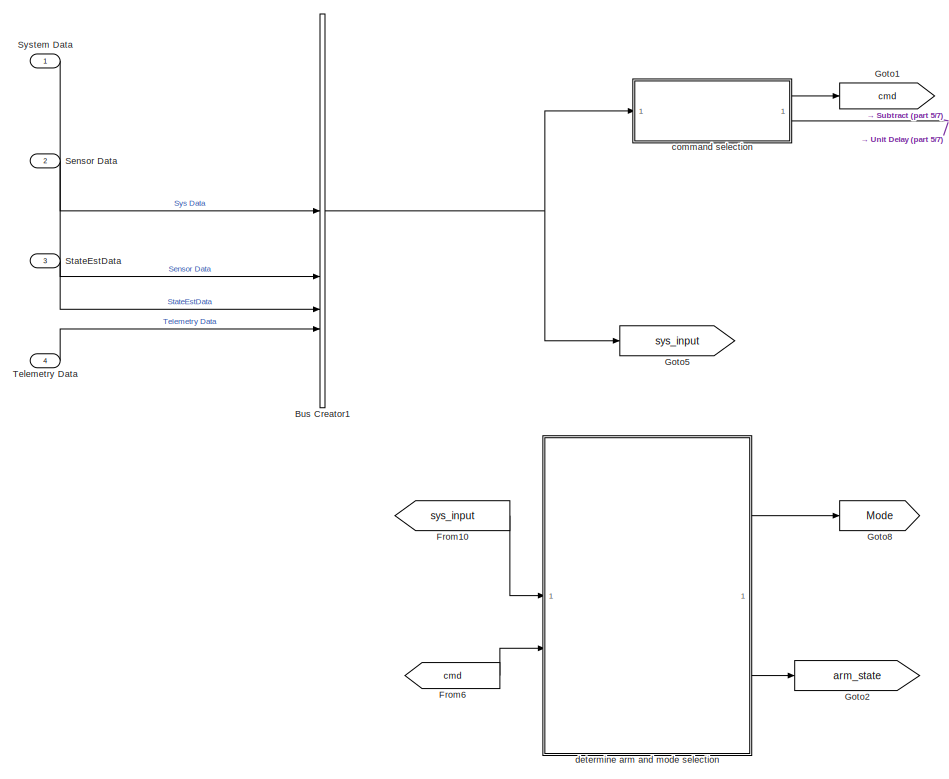
[diagram: root canvas - part 1/7, top center region]
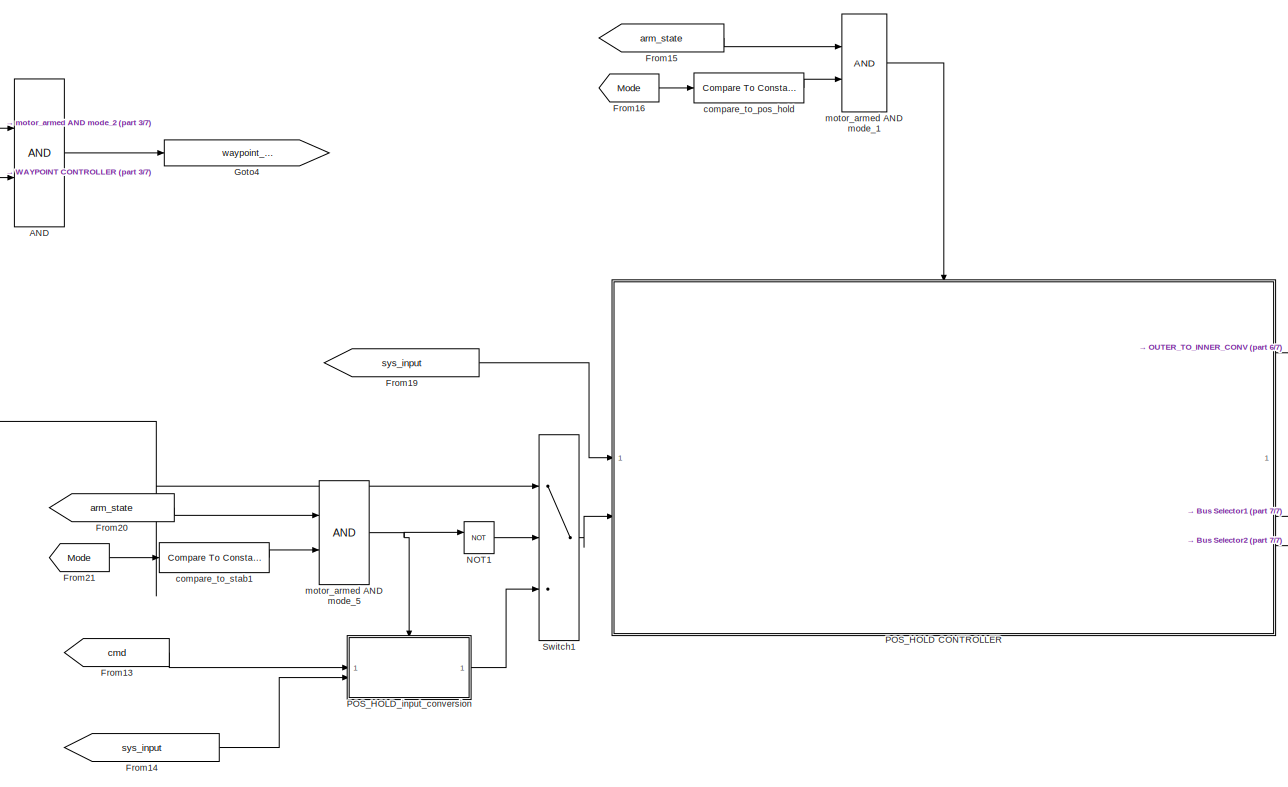
[diagram: root canvas - part 2/7, central region]
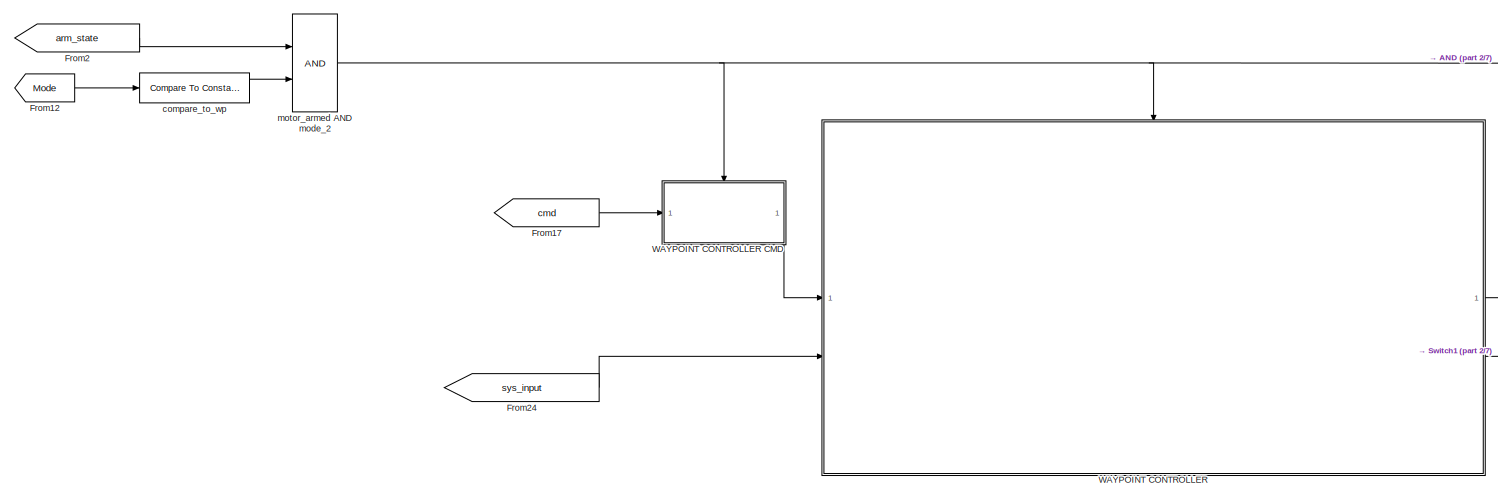
[diagram: root canvas - part 3/7, middle left region]
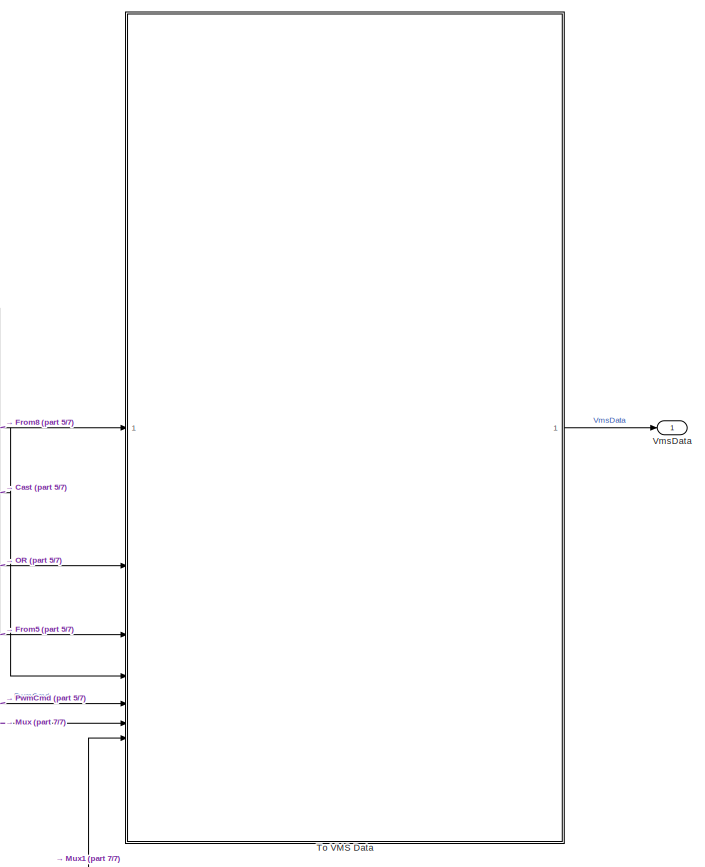
[diagram: root canvas - part 4/7, middle right region]
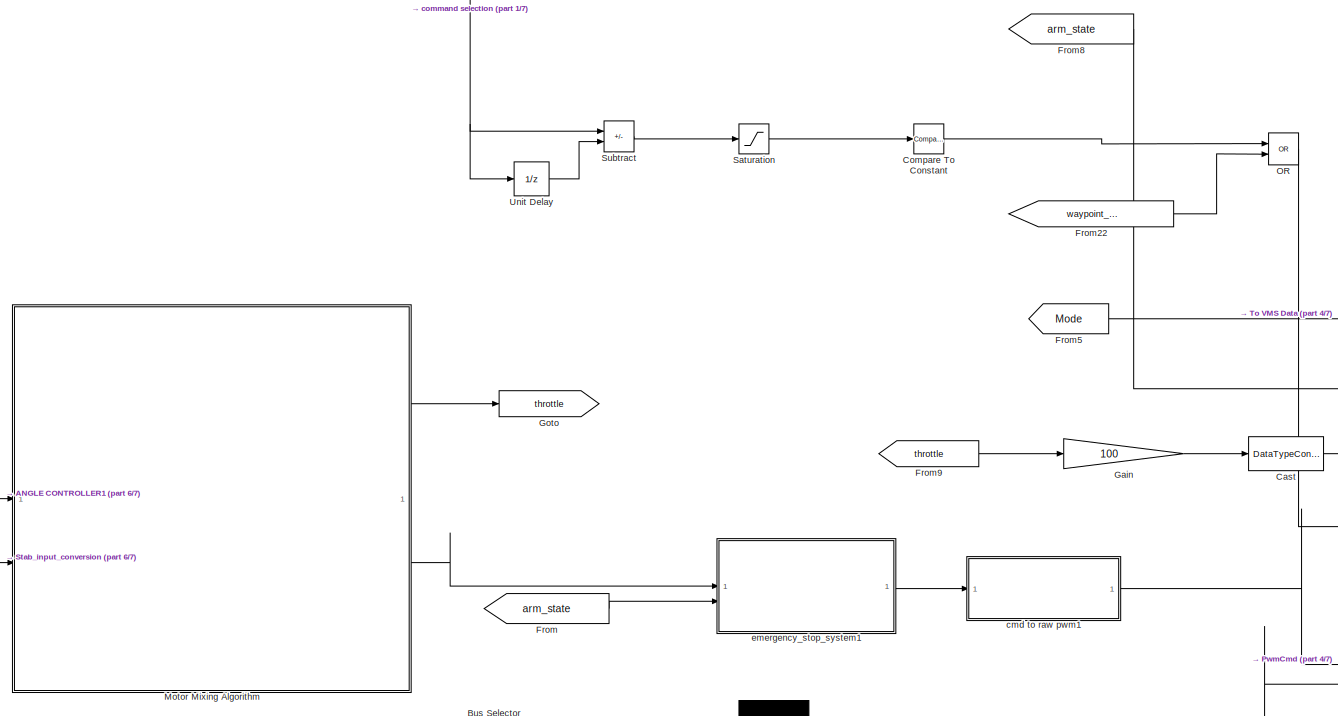
[diagram: root canvas - part 5/7, middle right region]
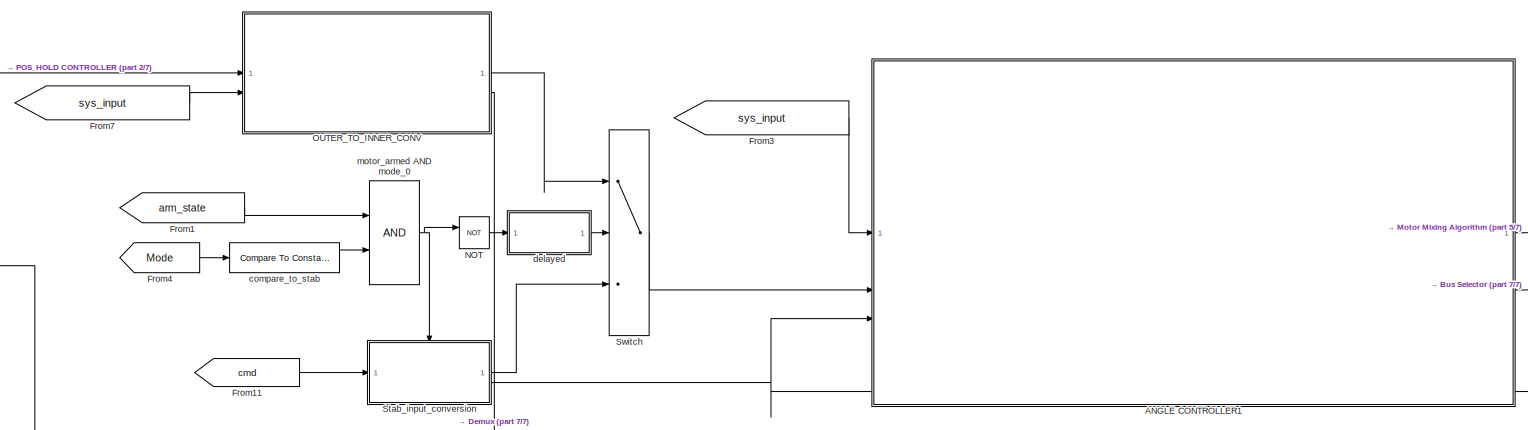
[diagram: root canvas - part 6/7, central region]
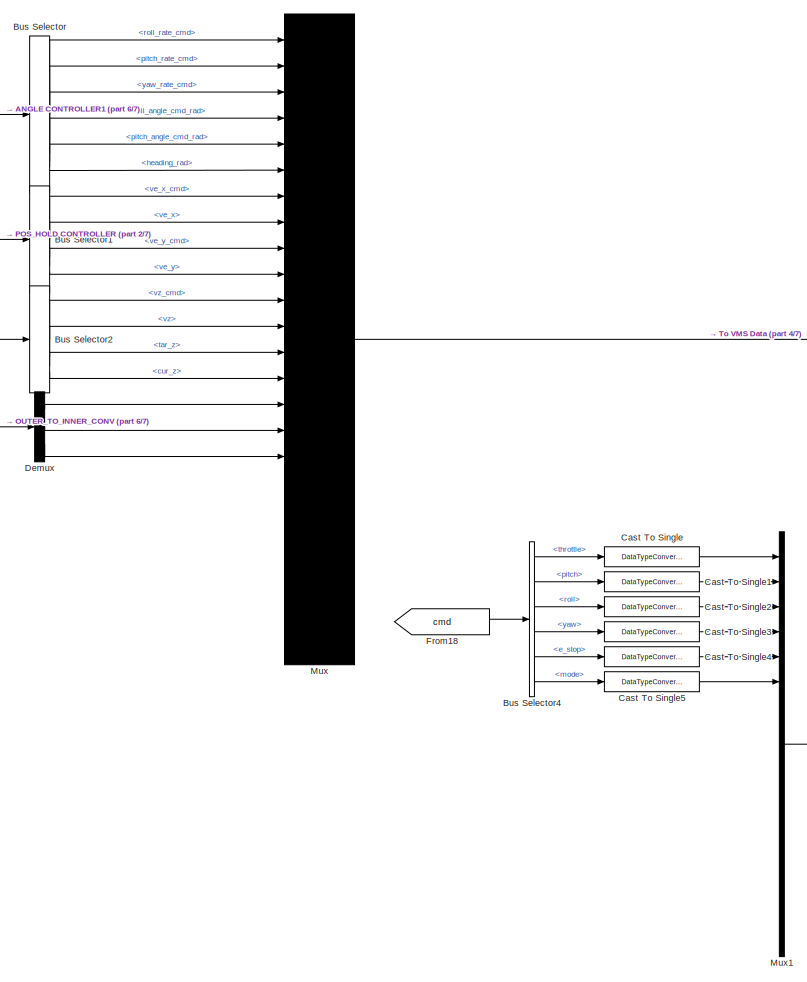
[diagram: root canvas - part 7/7, bottom right region]
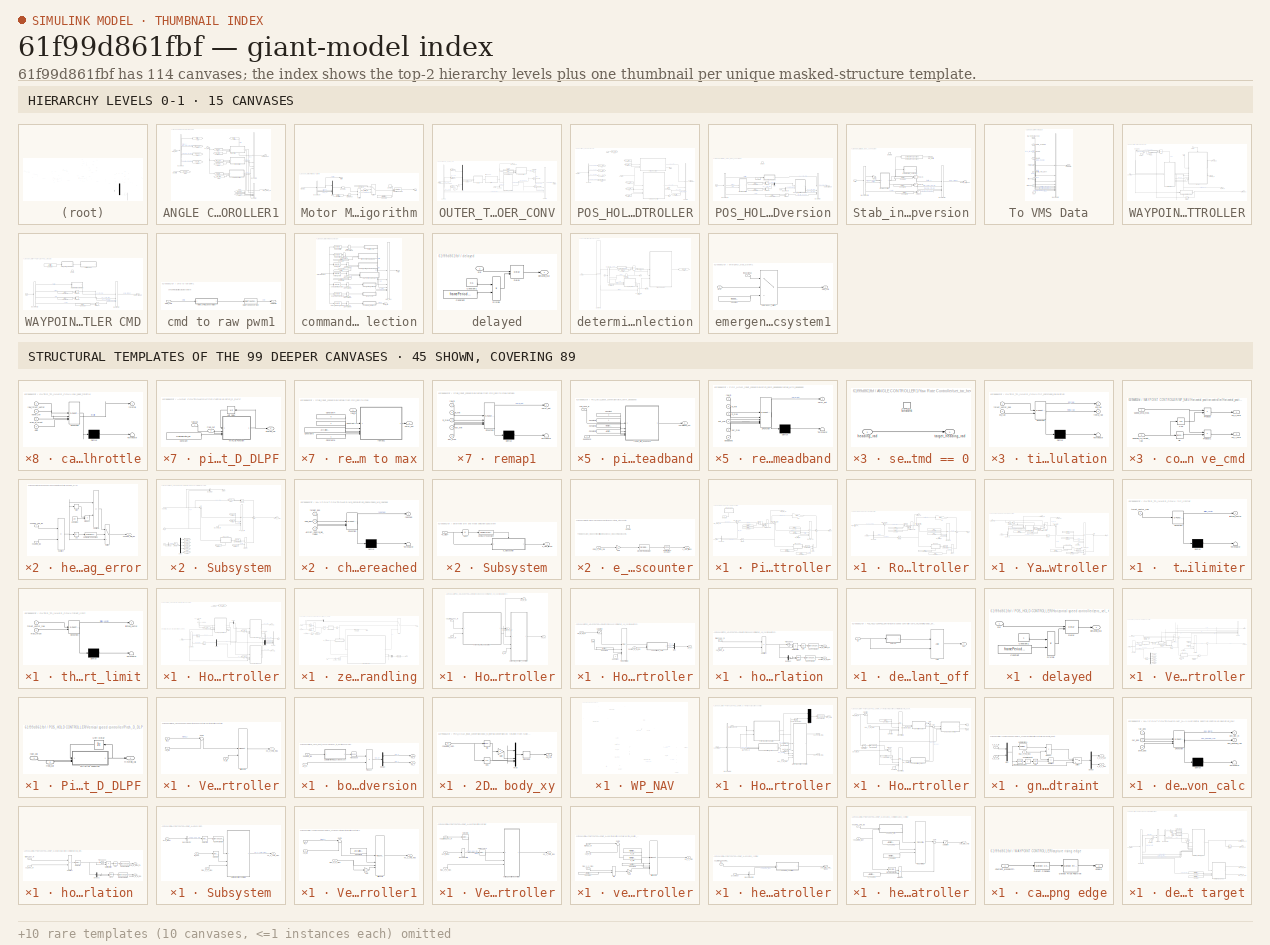
[diagram: thumbnail index - top-2 hierarchy levels (15 canvases) + 45 structural-template representatives of the remaining 99 canvases]
MODEL slx_61f99d861fbf
KIND model
CONFIG AbsTol = auto
CONFIG EnableMultiTasking = off
CONFIG FixedStep = 1/100
CONFIG MaxStep = auto
CONFIG MinStep = auto
CONFIG RelTol = 1e-3
CONFIG SampleTimeConstraint = Unconstrained
CONFIG SolverName = FixedStepAuto
CONFIG StartTime = 0.0
CONFIG StopTime = 10.0
BLOCK [Logic] AND
  AllPortsSameDT = off
  IconShape = distinctive
  OutDataTypeStr = boolean
BLOCK [SubSystem] ANGLE CONTROLLER1
BLOCK [BusCreator] ANGLE CONTROLLER1/Bus Creator
  DisplayOption = bar
  InheritFromInputs = on
  Inputs = 6
BLOCK [BusCreator] ANGLE CONTROLLER1/Bus Creator4
  DisplayOption = bar
  InheritFromInputs = on
  Inputs = 4
BLOCK [BusSelector] ANGLE CONTROLLER1/Bus Selector
  OutputSignals = throttle_cc,pitch_angle_cmd_rad,roll_angle_cmd_rad,yaw_rate_cmd_radps
BLOCK [Inport] ANGLE CONTROLLER1/Cmd_input
  Port = 2
BLOCK [Outport] ANGLE CONTROLLER1/Command out
BLOCK [From] ANGLE CONTROLLER1/From
  GotoTag = throttle_cc
BLOCK [From] ANGLE CONTROLLER1/From1
  GotoTag = roll_angle_cmd_rad
BLOCK [From] ANGLE CONTROLLER1/From2
  GotoTag = pitch_angle_cmd_rad
BLOCK [From] ANGLE CONTROLLER1/From3
  GotoTag = yaw_rate_cmd_radps
BLOCK [From] ANGLE CONTROLLER1/From4
  GotoTag = low_throttle_flag
BLOCK [From] ANGLE CONTROLLER1/From5
  GotoTag = low_throttle_flag
BLOCK [From] ANGLE CONTROLLER1/From6
  GotoTag = low_throttle_flag
BLOCK [From] ANGLE CONTROLLER1/From7
  GotoTag = pitch_angle_cmd_rad
BLOCK [From] ANGLE CONTROLLER1/From8
  GotoTag = roll_angle_cmd_rad
BLOCK [Goto] ANGLE CONTROLLER1/Goto
  GotoTag = throttle_cc
BLOCK [Goto] ANGLE CONTROLLER1/Goto1
  GotoTag = roll_angle_cmd_rad
BLOCK [Goto] ANGLE CONTROLLER1/Goto2
  GotoTag = pitch_angle_cmd_rad
BLOCK [Goto] ANGLE CONTROLLER1/Goto3
  GotoTag = yaw_rate_cmd_radps
BLOCK [Goto] ANGLE CONTROLLER1/Goto4
  GotoTag = low_throttle_flag
BLOCK [SubSystem] ANGLE CONTROLLER1/Pitch Controller
BLOCK [BusSelector] ANGLE CONTROLLER1/Pitch Controller/Bus Selector
  OutputSignals = StateEstData.bfs_ins.pitch_rad,StateEstData.bfs_ins.gyro_radps
BLOCK [Constant] ANGLE CONTROLLER1/Pitch Controller/Constant
  OutDataTypeStr = single
  Value = Aircraft.Control.P_att_rate
BLOCK [Constant] ANGLE CONTROLLER1/Pitch Controller/Constant1
  OutDataTypeStr = single
  Value = Aircraft.Control.I_att_rate
BLOCK [Constant] ANGLE CONTROLLER1/Pitch Controller/Constant2
  OutDataTypeStr = single
  Value = Aircraft.Control.D_att_rate
BLOCK [Constant] ANGLE CONTROLLER1/Pitch Controller/Constant3
  OutDataTypeStr = single
  Value = Aircraft.Control.D_att_FLTR_CTOFF
BLOCK [Constant] ANGLE CONTROLLER1/Pitch Controller/Constant4
  OutDataTypeStr = single
  Value = Aircraft.Control.P_att_angle
BLOCK [Constant] ANGLE CONTROLLER1/Pitch Controller/Constant5
  OutDataTypeStr = single
  Value = Aircraft.Control.att_rate_max
BLOCK [Constant] ANGLE CONTROLLER1/Pitch Controller/Constant6
  Commented = on
  OutDataTypeStr = single
BLOCK [Reference] ANGLE CONTROLLER1/Pitch Controller/Discrete Derivative  REF=simulink/Discrete/Discrete Derivative
  SourceBlock = simulink/Discrete/Discrete Derivative
  SourceType = Discrete Derivative
BLOCK [Gain] ANGLE CONTROLLER1/Pitch Controller/Gain
  Gain = Aircraft.Control.FF_att_rate
BLOCK [Gain] ANGLE CONTROLLER1/Pitch Controller/Gain1
  Gain = -1
BLOCK [Inport] ANGLE CONTROLLER1/Pitch Controller/Pitch_angle_cmd
  Port = 2
BLOCK [Product] ANGLE CONTROLLER1/Pitch Controller/Product
BLOCK [Product] ANGLE CONTROLLER1/Pitch Controller/Product1
BLOCK [Reference] ANGLE CONTROLLER1/Pitch Controller/Saturation Dynamic  REF=simulink/Discontinuities/Saturation
Dynamic
  SourceBlock = simulink/Discontinuities/Saturation\nDynamic
  SourceType = Saturation Dynamic
BLOCK [Selector] ANGLE CONTROLLER1/Pitch Controller/Selector
  IndexMode = Zero-based
  IndexOptions = Index vector (dialog)
  Indices = 1
  InputPortWidth = 3
  OutputSizes = 1
BLOCK [Sum] ANGLE CONTROLLER1/Pitch Controller/Sum
  Inputs = ++-
BLOCK [Inport] ANGLE CONTROLLER1/Pitch Controller/low_throttle_flag
  Port = 3
BLOCK [SubSystem] ANGLE CONTROLLER1/Pitch Controller/pitch_D_DLPF
  NameLocation = top
  PortSchema = {"entries":[{"content":{"sides":[{"content":{"connectorIds":["In1"]},"type":"ConnectorPlacement.EquallySpacedRectSide","uuid":"20236834-aeb3-4c5b-bb2e-f84447e752b5"},{"content":{"connectorIds":["Out1"],"side":"RIGHT"},"type":"ConnectorPlacement.EquallySpacedRectSide","uuid":"d668f9a1-a3df-4207-8bf1-99fb838e59b2"},{"content":{"connectorIds":[],"side":"TOP"},"type":"ConnectorPlacement.EquallySpacedR...<+389ch>  <repeated x8 — deduplicated; at blocks: pitch_D_DLPF, pitch_input_DLPF, roll_D_DLPF, yaw_D_DLPF, Pitch_D_DLPF>
BLOCK [Constant] ANGLE CONTROLLER1/Pitch Controller/pitch_D_DLPF/Constant
  OutDataTypeStr = single
  Value = frameRate_hz
BLOCK [SubSystem] ANGLE CONTROLLER1/Pitch Controller/pitch_D_DLPF/MATLAB Function
  ErrorFcn = Stateflow.Translate.translate
  PermitHierarchicalResolution = ExplicitOnly
  SFBlockType = MATLAB Function
  TreatAsAtomicUnit = on
BLOCK [Demux] ANGLE CONTROLLER1/Pitch Controller/pitch_D_DLPF/MATLAB Function/ Demux 
  Outputs = 1
BLOCK [S-Function] ANGLE CONTROLLER1/Pitch Controller/pitch_D_DLPF/MATLAB Function/ SFunction 
  EnableBusSupport = on
  FunctionName = sf_sfun
  PortCounts = [4 2]
  SFcnIsStateOwnerBlock = off
  SFunctionDeploymentMode = off
  Tag = Stateflow S-Function 10
BLOCK [Terminator] ANGLE CONTROLLER1/Pitch Controller/pitch_D_DLPF/MATLAB Function/ Terminator 
BLOCK [Outport] ANGLE CONTROLLER1/Pitch Controller/pitch_D_DLPF/MATLAB Function/filtered_val
BLOCK [Inport] ANGLE CONTROLLER1/Pitch Controller/pitch_D_DLPF/MATLAB Function/freq_cut
  Port = 3
BLOCK [Inport] ANGLE CONTROLLER1/Pitch Controller/pitch_D_DLPF/MATLAB Function/prev_val
BLOCK [Inport] ANGLE CONTROLLER1/Pitch Controller/pitch_D_DLPF/MATLAB Function/raw_val
  Port = 2
BLOCK [Inport] ANGLE CONTROLLER1/Pitch Controller/pitch_D_DLPF/MATLAB Function/samp_freq
  Port = 4
BLOCK [UnitDelay] ANGLE CONTROLLER1/Pitch Controller/pitch_D_DLPF/Unit Delay
  HasFrameUpgradeWarning = on
  NameLocation = top
  SampleTime = -1
BLOCK [Outport] ANGLE CONTROLLER1/Pitch Controller/pitch_D_DLPF/filtered_val
BLOCK [Inport] ANGLE CONTROLLER1/Pitch Controller/pitch_D_DLPF/freq_cut
  Port = 2
BLOCK [Inport] ANGLE CONTROLLER1/Pitch Controller/pitch_D_DLPF/raw_val
BLOCK [Outport] ANGLE CONTROLLER1/Pitch Controller/pitch_cc
BLOCK [SubSystem] ANGLE CONTROLLER1/Pitch Controller/pitch_input_DLPF
  Commented = on
  NameLocation = top
BLOCK [Constant] ANGLE CONTROLLER1/Pitch Controller/pitch_input_DLPF/Constant
  OutDataTypeStr = single
  Value = frameRate_hz
BLOCK [SubSystem] ANGLE CONTROLLER1/Pitch Controller/pitch_input_DLPF/MATLAB Function
  ErrorFcn = Stateflow.Translate.translate
  PermitHierarchicalResolution = ExplicitOnly
  SFBlockType = MATLAB Function
  TreatAsAtomicUnit = on
BLOCK [Demux] ANGLE CONTROLLER1/Pitch Controller/pitch_input_DLPF/MATLAB Function/ Demux 
  Outputs = 1
BLOCK [S-Function] ANGLE CONTROLLER1/Pitch Controller/pitch_input_DLPF/MATLAB Function/ SFunction 
  EnableBusSupport = on
  FunctionName = sf_sfun
  PortCounts = [4 2]
  SFcnIsStateOwnerBlock = off
  SFunctionDeploymentMode = off
  Tag = Stateflow S-Function 21
BLOCK [Terminator] ANGLE CONTROLLER1/Pitch Controller/pitch_input_DLPF/MATLAB Function/ Terminator 
BLOCK [Outport] ANGLE CONTROLLER1/Pitch Controller/pitch_input_DLPF/MATLAB Function/filtered_val
BLOCK [Inport] ANGLE CONTROLLER1/Pitch Controller/pitch_input_DLPF/MATLAB Function/freq_cut
  Port = 3
BLOCK [Inport] ANGLE CONTROLLER1/Pitch Controller/pitch_input_DLPF/MATLAB Function/prev_val
BLOCK [Inport] ANGLE CONTROLLER1/Pitch Controller/pitch_input_DLPF/MATLAB Function/raw_val
  Port = 2
BLOCK [Inport] ANGLE CONTROLLER1/Pitch Controller/pitch_input_DLPF/MATLAB Function/samp_freq
  Port = 4
BLOCK [UnitDelay] ANGLE CONTROLLER1/Pitch Controller/pitch_input_DLPF/Unit Delay
  HasFrameUpgradeWarning = on
  NameLocation = top
  SampleTime = -1
BLOCK [Outport] ANGLE CONTROLLER1/Pitch Controller/pitch_input_DLPF/filtered_val
BLOCK [Inport] ANGLE CONTROLLER1/Pitch Controller/pitch_input_DLPF/freq_cut
  Port = 2
BLOCK [Inport] ANGLE CONTROLLER1/Pitch Controller/pitch_input_DLPF/raw_val
BLOCK [Outport] ANGLE CONTROLLER1/Pitch Controller/pitch_rate_cmd
  Port = 2
BLOCK [Reference] ANGLE CONTROLLER1/Pitch Controller/stab_pitch_PID  REF=slpidlib/PID Controller
  SourceBlock = slpidlib/PID Controller
  SourceType = PID 1dof
BLOCK [Sum] ANGLE CONTROLLER1/Pitch Controller/stab_pitch_angle_error_calc
  Inputs = |+-
BLOCK [Sum] ANGLE CONTROLLER1/Pitch Controller/stab_pitch_angle_rate_error_calc
  Inputs = |+-
BLOCK [Inport] ANGLE CONTROLLER1/Pitch Controller/sys_input
BLOCK [SubSystem] ANGLE CONTROLLER1/Roll Controller
BLOCK [BusSelector] ANGLE CONTROLLER1/Roll Controller/Bus Selector
  OutputSignals = StateEstData.bfs_ins.roll_rad,StateEstData.bfs_ins.gyro_radps
BLOCK [Constant] ANGLE CONTROLLER1/Roll Controller/Constant
  OutDataTypeStr = single
  Value = Aircraft.Control.D_att_FLTR_CTOFF
BLOCK [Constant] ANGLE CONTROLLER1/Roll Controller/Constant1
  OutDataTypeStr = single
  Value = Aircraft.Control.D_att_rate
BLOCK [Constant] ANGLE CONTROLLER1/Roll Controller/Constant2
  OutDataTypeStr = single
  Value = Aircraft.Control.P_att_rate
BLOCK [Constant] ANGLE CONTROLLER1/Roll Controller/Constant3
  OutDataTypeStr = single
  Value = Aircraft.Control.I_att_rate
BLOCK [Constant] ANGLE CONTROLLER1/Roll Controller/Constant4
  OutDataTypeStr = single
  Value = Aircraft.Control.P_att_angle
BLOCK [Constant] ANGLE CONTROLLER1/Roll Controller/Constant5
  OutDataTypeStr = single
  Value = Aircraft.Control.att_rate_max
BLOCK [Reference] ANGLE CONTROLLER1/Roll Controller/Discrete Derivative  REF=simulink/Discrete/Discrete Derivative
  SourceBlock = simulink/Discrete/Discrete Derivative
  SourceType = Discrete Derivative
BLOCK [Gain] ANGLE CONTROLLER1/Roll Controller/Gain
  Gain = Aircraft.Control.FF_att_rate
BLOCK [Gain] ANGLE CONTROLLER1/Roll Controller/Gain1
  Gain = -1
BLOCK [Product] ANGLE CONTROLLER1/Roll Controller/Product
BLOCK [Product] ANGLE CONTROLLER1/Roll Controller/Product1
BLOCK [Inport] ANGLE CONTROLLER1/Roll Controller/Roll_angle_cmd_rad
  Port = 2
BLOCK [Reference] ANGLE CONTROLLER1/Roll Controller/Saturation Dynamic  REF=simulink/Discontinuities/Saturation
Dynamic
  SourceBlock = simulink/Discontinuities/Saturation\nDynamic
  SourceType = Saturation Dynamic
BLOCK [Selector] ANGLE CONTROLLER1/Roll Controller/Selector
  IndexMode = Zero-based
  IndexOptions = Index vector (dialog)
  Indices = 0
  InputPortWidth = 3
  OutputSizes = 1
BLOCK [Sum] ANGLE CONTROLLER1/Roll Controller/Sum
  Inputs = ++-
BLOCK [Inport] ANGLE CONTROLLER1/Roll Controller/low_throttle_flag
  Port = 3
BLOCK [SubSystem] ANGLE CONTROLLER1/Roll Controller/roll_D_DLPF
  NameLocation = top
BLOCK [Constant] ANGLE CONTROLLER1/Roll Controller/roll_D_DLPF/Constant
  OutDataTypeStr = single
  Value = frameRate_hz
BLOCK [SubSystem] ANGLE CONTROLLER1/Roll Controller/roll_D_DLPF/MATLAB Function
  ErrorFcn = Stateflow.Translate.translate
  PermitHierarchicalResolution = ExplicitOnly
  SFBlockType = MATLAB Function
  TreatAsAtomicUnit = on
BLOCK [Demux] ANGLE CONTROLLER1/Roll Controller/roll_D_DLPF/MATLAB Function/ Demux 
  Outputs = 1
BLOCK [S-Function] ANGLE CONTROLLER1/Roll Controller/roll_D_DLPF/MATLAB Function/ SFunction 
  EnableBusSupport = on
  FunctionName = sf_sfun
  PortCounts = [4 2]
  SFcnIsStateOwnerBlock = off
  SFunctionDeploymentMode = off
  Tag = Stateflow S-Function 11
BLOCK [Terminator] ANGLE CONTROLLER1/Roll Controller/roll_D_DLPF/MATLAB Function/ Terminator 
BLOCK [Outport] ANGLE CONTROLLER1/Roll Controller/roll_D_DLPF/MATLAB Function/filtered_val
BLOCK [Inport] ANGLE CONTROLLER1/Roll Controller/roll_D_DLPF/MATLAB Function/freq_cut
  Port = 3
BLOCK [Inport] ANGLE CONTROLLER1/Roll Controller/roll_D_DLPF/MATLAB Function/prev_val
BLOCK [Inport] ANGLE CONTROLLER1/Roll Controller/roll_D_DLPF/MATLAB Function/raw_val
  Port = 2
BLOCK [Inport] ANGLE CONTROLLER1/Roll Controller/roll_D_DLPF/MATLAB Function/samp_freq
  Port = 4
BLOCK [UnitDelay] ANGLE CONTROLLER1/Roll Controller/roll_D_DLPF/Unit Delay
  HasFrameUpgradeWarning = on
  NameLocation = top
  SampleTime = -1
BLOCK [Outport] ANGLE CONTROLLER1/Roll Controller/roll_D_DLPF/filtered_val
BLOCK [Inport] ANGLE CONTROLLER1/Roll Controller/roll_D_DLPF/freq_cut
  Port = 2
BLOCK [Inport] ANGLE CONTROLLER1/Roll Controller/roll_D_DLPF/raw_val
BLOCK [Outport] ANGLE CONTROLLER1/Roll Controller/roll_cc
BLOCK [Outport] ANGLE CONTROLLER1/Roll Controller/roll_rate_cmd
  Port = 2
BLOCK [Reference] ANGLE CONTROLLER1/Roll Controller/stab_roll_PID  REF=slpidlib/PID Controller
  SourceBlock = slpidlib/PID Controller
  SourceType = PID 1dof
BLOCK [Sum] ANGLE CONTROLLER1/Roll Controller/stab_roll_angle_error_calc
  Inputs = |+-
BLOCK [Sum] ANGLE CONTROLLER1/Roll Controller/stab_roll_angle_rate_error_calc
  Inputs = |+-
BLOCK [Inport] ANGLE CONTROLLER1/Roll Controller/sys_input
BLOCK [Inport] ANGLE CONTROLLER1/Sys_input
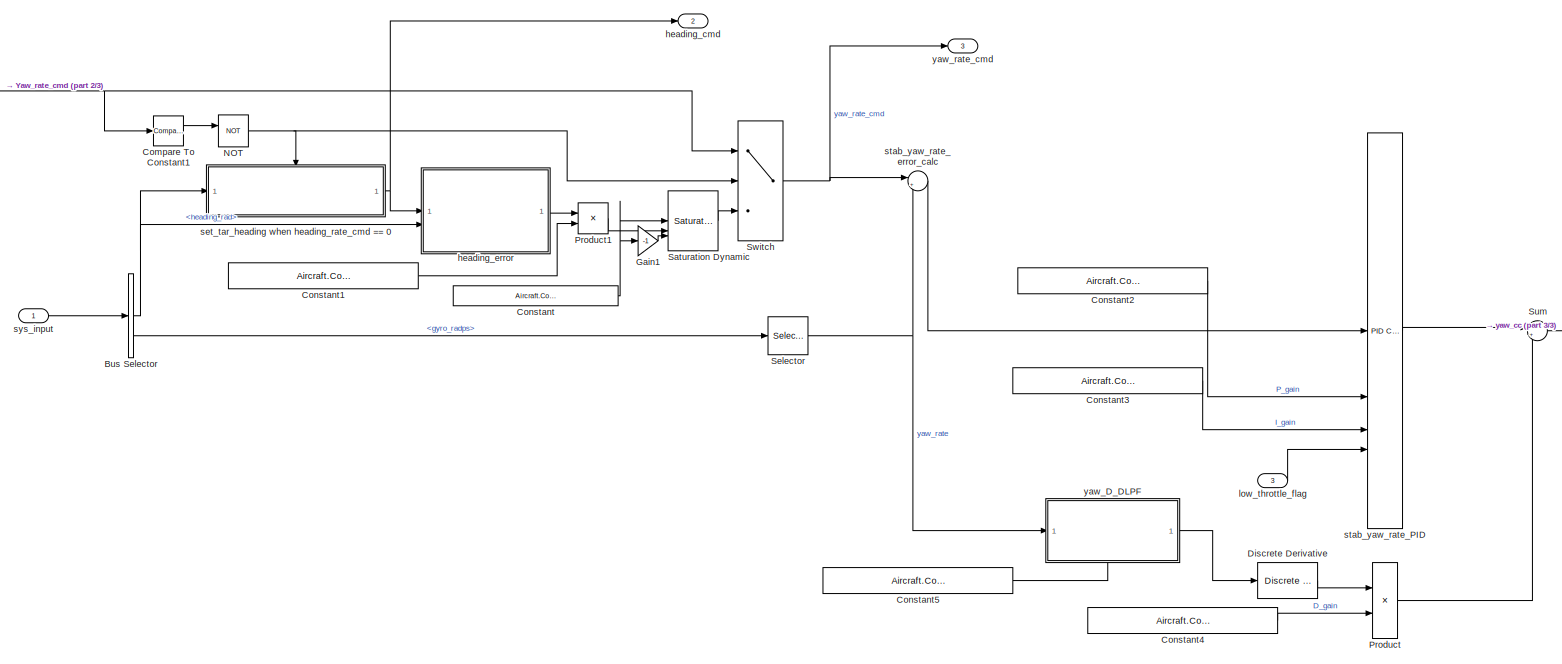
[diagram: ANGLE CONTROLLER1/Yaw Rate Controller - part 1/3, most of the canvas]
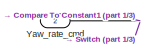
[diagram: ANGLE CONTROLLER1/Yaw Rate Controller - part 2/3, top left region]
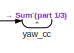
[diagram: ANGLE CONTROLLER1/Yaw Rate Controller - part 3/3, middle right region]
BLOCK [SubSystem] ANGLE CONTROLLER1/Yaw Rate Controller
BLOCK [BusSelector] ANGLE CONTROLLER1/Yaw Rate Controller/Bus Selector
  OutputSignals = StateEstData.bfs_ins.heading_rad,StateEstData.bfs_ins.gyro_radps
BLOCK [Reference] ANGLE CONTROLLER1/Yaw Rate Controller/Compare To Constant1  REF=simulink/Logic and Bit
Operations/Compare
To Constant
  SourceBlock = simulink/Logic and Bit\nOperations/Compare\nTo Constant
  SourceType = Compare To Constant
BLOCK [Constant] ANGLE CONTROLLER1/Yaw Rate Controller/Constant
  Value = Aircraft.Control.yaw_rate_max
BLOCK [Constant] ANGLE CONTROLLER1/Yaw Rate Controller/Constant1
  OutDataTypeStr = single
  Value = Aircraft.Control.P_heading
BLOCK [Constant] ANGLE CONTROLLER1/Yaw Rate Controller/Constant2
  OutDataTypeStr = single
  Value = Aircraft.Control.P_yaw_rate
BLOCK [Constant] ANGLE CONTROLLER1/Yaw Rate Controller/Constant3
  OutDataTypeStr = single
  Value = Aircraft.Control.I_yaw_rate
BLOCK [Constant] ANGLE CONTROLLER1/Yaw Rate Controller/Constant4
  OutDataTypeStr = single
  Value = Aircraft.Control.D_yaw_rate
BLOCK [Constant] ANGLE CONTROLLER1/Yaw Rate Controller/Constant5
  OutDataTypeStr = single
  Value = Aircraft.Control.D_yaw_FLTR_CTOFF
BLOCK [Reference] ANGLE CONTROLLER1/Yaw Rate Controller/Discrete Derivative  REF=simulink/Quick Insert/Discrete/Discrete Derivative
  SourceBlock = simulink/Quick Insert/Discrete/Discrete Derivative
  SourceType = Discrete Derivative
BLOCK [Gain] ANGLE CONTROLLER1/Yaw Rate Controller/Gain1
  Gain = -1
BLOCK [Logic] ANGLE CONTROLLER1/Yaw Rate Controller/NOT
  AllPortsSameDT = off
  IconShape = distinctive
  Operator = NOT
  OutDataTypeStr = boolean
BLOCK [Product] ANGLE CONTROLLER1/Yaw Rate Controller/Product
BLOCK [Product] ANGLE CONTROLLER1/Yaw Rate Controller/Product1
BLOCK [Reference] ANGLE CONTROLLER1/Yaw Rate Controller/Saturation Dynamic  REF=simulink/Discontinuities/Saturation
Dynamic
  SourceBlock = simulink/Discontinuities/Saturation\nDynamic
  SourceType = Saturation Dynamic
BLOCK [Selector] ANGLE CONTROLLER1/Yaw Rate Controller/Selector
  IndexOptions = Index vector (dialog)
  Indices = 3
  InputPortWidth = 3
  OutputSizes = 1
BLOCK [Sum] ANGLE CONTROLLER1/Yaw Rate Controller/Sum
  Inputs = |+-
BLOCK [Switch] ANGLE CONTROLLER1/Yaw Rate Controller/Switch
  Criteria = u2 > Threshold
  InputSameDT = off
  SaturateOnIntegerOverflow = off
BLOCK [Inport] ANGLE CONTROLLER1/Yaw Rate Controller/Yaw_rate_cmd
  Port = 2
BLOCK [Outport] ANGLE CONTROLLER1/Yaw Rate Controller/heading_cmd
  Port = 2
BLOCK [SubSystem] ANGLE CONTROLLER1/Yaw Rate Controller/heading_error
BLOCK [Abs] ANGLE CONTROLLER1/Yaw Rate Controller/heading_error/Abs
  SaturateOnIntegerOverflow = off
BLOCK [Reference] ANGLE CONTROLLER1/Yaw Rate Controller/heading_error/Compare To Constant  REF=simulink/Logic and Bit
Operations/Compare
To Constant
  SourceBlock = simulink/Logic and Bit\nOperations/Compare\nTo Constant
  SourceType = Compare To Constant
BLOCK [Constant] ANGLE CONTROLLER1/Yaw Rate Controller/heading_error/Constant
  OutDataTypeStr = single
  Value = 2*pi
BLOCK [Product] ANGLE CONTROLLER1/Yaw Rate Controller/heading_error/Product
BLOCK [Signum] ANGLE CONTROLLER1/Yaw Rate Controller/heading_error/Sign
BLOCK [Sum] ANGLE CONTROLLER1/Yaw Rate Controller/heading_error/Subtract
  IconShape = rectangular
  Inputs = +-
BLOCK [Sum] ANGLE CONTROLLER1/Yaw Rate Controller/heading_error/Subtract1
  IconShape = rectangular
  Inputs = +-
BLOCK [Switch] ANGLE CONTROLLER1/Yaw Rate Controller/heading_error/Switch
  Criteria = u2 > Threshold
  InputSameDT = off
  SaturateOnIntegerOverflow = off
BLOCK [Inport] ANGLE CONTROLLER1/Yaw Rate Controller/heading_error/heading_cmd_rad
BLOCK [Outport] ANGLE CONTROLLER1/Yaw Rate Controller/heading_error/heading_error_rad
BLOCK [Inport] ANGLE CONTROLLER1/Yaw Rate Controller/heading_error/heading_rad
  Port = 2
BLOCK [Inport] ANGLE CONTROLLER1/Yaw Rate Controller/low_throttle_flag
  Port = 3
BLOCK [SubSystem] ANGLE CONTROLLER1/Yaw Rate Controller/set_tar_heading when heading_rate_cmd == 0
  TreatAsAtomicUnit = on
BLOCK [EnablePort] ANGLE CONTROLLER1/Yaw Rate Controller/set_tar_heading when heading_rate_cmd == 0/Enable
BLOCK [Inport] ANGLE CONTROLLER1/Yaw Rate Controller/set_tar_heading when heading_rate_cmd == 0/heading_rad
BLOCK [Outport] ANGLE CONTROLLER1/Yaw Rate Controller/set_tar_heading when heading_rate_cmd == 0/target_heading_rad
BLOCK [Reference] ANGLE CONTROLLER1/Yaw Rate Controller/stab_yaw_rate_PID  REF=slpidlib/PID Controller
  SourceBlock = slpidlib/PID Controller
  SourceType = PID 1dof
BLOCK [Sum] ANGLE CONTROLLER1/Yaw Rate Controller/stab_yaw_rate_error_calc
  Inputs = |+-
BLOCK [Inport] ANGLE CONTROLLER1/Yaw Rate Controller/sys_input
BLOCK [SubSystem] ANGLE CONTROLLER1/Yaw Rate Controller/yaw_D_DLPF
  NameLocation = top
BLOCK [Constant] ANGLE CONTROLLER1/Yaw Rate Controller/yaw_D_DLPF/Constant
  OutDataTypeStr = single
  Value = frameRate_hz
BLOCK [SubSystem] ANGLE CONTROLLER1/Yaw Rate Controller/yaw_D_DLPF/MATLAB Function
  ErrorFcn = Stateflow.Translate.translate
  PermitHierarchicalResolution = ExplicitOnly
  SFBlockType = MATLAB Function
  TreatAsAtomicUnit = on
BLOCK [Demux] ANGLE CONTROLLER1/Yaw Rate Controller/yaw_D_DLPF/MATLAB Function/ Demux 
  Outputs = 1
BLOCK [S-Function] ANGLE CONTROLLER1/Yaw Rate Controller/yaw_D_DLPF/MATLAB Function/ SFunction 
  EnableBusSupport = on
  FunctionName = sf_sfun
  PortCounts = [4 2]
  SFcnIsStateOwnerBlock = off
  SFunctionDeploymentMode = off
  Tag = Stateflow S-Function 12
BLOCK [Terminator] ANGLE CONTROLLER1/Yaw Rate Controller/yaw_D_DLPF/MATLAB Function/ Terminator 
BLOCK [Outport] ANGLE CONTROLLER1/Yaw Rate Controller/yaw_D_DLPF/MATLAB Function/filtered_val
BLOCK [Inport] ANGLE CONTROLLER1/Yaw Rate Controller/yaw_D_DLPF/MATLAB Function/freq_cut
  Port = 3
BLOCK [Inport] ANGLE CONTROLLER1/Yaw Rate Controller/yaw_D_DLPF/MATLAB Function/prev_val
BLOCK [Inport] ANGLE CONTROLLER1/Yaw Rate Controller/yaw_D_DLPF/MATLAB Function/raw_val
  Port = 2
BLOCK [Inport] ANGLE CONTROLLER1/Yaw Rate Controller/yaw_D_DLPF/MATLAB Function/samp_freq
  Port = 4
BLOCK [UnitDelay] ANGLE CONTROLLER1/Yaw Rate Controller/yaw_D_DLPF/Unit Delay
  HasFrameUpgradeWarning = on
  NameLocation = top
  SampleTime = -1
BLOCK [Outport] ANGLE CONTROLLER1/Yaw Rate Controller/yaw_D_DLPF/filtered_val
BLOCK [Inport] ANGLE CONTROLLER1/Yaw Rate Controller/yaw_D_DLPF/freq_cut
  Port = 2
BLOCK [Inport] ANGLE CONTROLLER1/Yaw Rate Controller/yaw_D_DLPF/raw_val
BLOCK [Outport] ANGLE CONTROLLER1/Yaw Rate Controller/yaw_cc
BLOCK [Outport] ANGLE CONTROLLER1/Yaw Rate Controller/yaw_rate_cmd
  Port = 3
BLOCK [Inport] ANGLE CONTROLLER1/low_thottle
  Port = 3
BLOCK [Outport] ANGLE CONTROLLER1/stab_mode_dbg
  Port = 2
BLOCK [BusCreator] Bus Creator1
  DisplayOption = bar
  InheritFromInputs = on
  Inputs = 4
BLOCK [BusSelector] Bus Selector
  OutputSignals = roll_rate_cmd,pitch_rate_cmd,yaw_rate_cmd,roll_angle_cmd_rad,pitch_angle_cmd_rad,heading_rad
BLOCK [BusSelector] Bus Selector1
  OutputSignals = ve_x_cmd,ve_x,ve_y_cmd,ve_y
BLOCK [BusSelector] Bus Selector2
  OutputSignals = vz_cmd,vz,tar_z,cur_z
BLOCK [BusSelector] Bus Selector4
  OutputSignals = throttle,pitch,roll,yaw,e_stop,mode
BLOCK [DataTypeConversion] Cast
  OutDataTypeStr = single
  RndMeth = Floor
  SaturateOnIntegerOverflow = off
BLOCK [DataTypeConversion] Cast To Single
  OutDataTypeStr = int16
  RndMeth = Floor
  SaturateOnIntegerOverflow = off
BLOCK [DataTypeConversion] Cast To Single1
  OutDataTypeStr = int16
  RndMeth = Floor
  SaturateOnIntegerOverflow = off
BLOCK [DataTypeConversion] Cast To Single2
  OutDataTypeStr = int16
  RndMeth = Floor
  SaturateOnIntegerOverflow = off
BLOCK [DataTypeConversion] Cast To Single3
  OutDataTypeStr = int16
  RndMeth = Floor
  SaturateOnIntegerOverflow = off
BLOCK [DataTypeConversion] Cast To Single4
  OutDataTypeStr = int16
  RndMeth = Floor
  SaturateOnIntegerOverflow = off
BLOCK [DataTypeConversion] Cast To Single5
  OutDataTypeStr = int16
  RndMeth = Floor
  SaturateOnIntegerOverflow = off
BLOCK [Reference] Compare To Constant  REF=simulink/Logic and Bit
Operations/Compare
To Constant
  SourceBlock = simulink/Logic and Bit\nOperations/Compare\nTo Constant
  SourceType = Compare To Constant
BLOCK [Demux] Demux
  Outputs = 3
BLOCK [From] From
  GotoTag = arm_state
BLOCK [From] From1
  GotoTag = arm_state
BLOCK [From] From10
  GotoTag = sys_input
BLOCK [From] From11
  GotoTag = cmd
BLOCK [From] From12
  GotoTag = Mode
BLOCK [From] From13
  GotoTag = cmd
BLOCK [From] From14
  GotoTag = sys_input
BLOCK [From] From15
  GotoTag = arm_state
BLOCK [From] From16
  GotoTag = Mode
BLOCK [From] From17
  GotoTag = cmd
BLOCK [From] From18
  GotoTag = cmd
BLOCK [From] From19
  GotoTag = sys_input
BLOCK [From] From2
  GotoTag = arm_state
BLOCK [From] From20
  GotoTag = arm_state
BLOCK [From] From21
  GotoTag = Mode
BLOCK [From] From22
  GotoTag = waypoint_reached
BLOCK [From] From24
  GotoTag = sys_input
BLOCK [From] From3
  GotoTag = sys_input
BLOCK [From] From4
  GotoTag = Mode
BLOCK [From] From5
  GotoTag = Mode
BLOCK [From] From6
  GotoTag = cmd
BLOCK [From] From7
  GotoTag = sys_input
BLOCK [From] From8
  GotoTag = arm_state
BLOCK [From] From9
  GotoTag = throttle
BLOCK [Gain] Gain
  Gain = 100
BLOCK [Goto] Goto
  GotoTag = throttle
BLOCK [Goto] Goto1
  GotoTag = cmd
BLOCK [Goto] Goto2
  GotoTag = arm_state
BLOCK [Goto] Goto4
  GotoTag = waypoint_reached
BLOCK [Goto] Goto5
  GotoTag = sys_input
BLOCK [Goto] Goto8
  GotoTag = Mode
BLOCK [SubSystem] Motor Mixing Algorithm
BLOCK [BusSelector] Motor Mixing Algorithm/Bus Selector
  OutputSignals = throttle,roll_cc,pitch_cc,yaw_cc
BLOCK [Constant] Motor Mixing Algorithm/Constant
  OutDataTypeStr = single
BLOCK [Constant] Motor Mixing Algorithm/Constant1
  OutDataTypeStr = single
  Value = Aircraft.Control.motor_spin_min
BLOCK [Constant] Motor Mixing Algorithm/Constant2
  OutDataTypeStr = single
  Value = [0 0 0 0 0 0 0 0]
BLOCK [Inport] Motor Mixing Algorithm/MMA Bus
BLOCK [Constant] Motor Mixing Algorithm/Motor Mix
  OutDataTypeStr = single
  Value = Aircraft.Motor.mix
BLOCK [Product] Motor Mixing Algorithm/Multiply
  Inputs = **
  Multiplication = Matrix(*)
  OutDataTypeStr = single
BLOCK [Mux] Motor Mixing Algorithm/Mux
  DisplayOption = bar
BLOCK [Outport] Motor Mixing Algorithm/PWM
  Port = 2
BLOCK [Reshape] Motor Mixing Algorithm/Reshape
  OutputDimensionality = Row vector (2-D)
BLOCK [Reference] Motor Mixing Algorithm/Saturation Dynamic  REF=simulink/Discontinuities/Saturation
Dynamic
  SourceBlock = simulink/Discontinuities/Saturation\nDynamic
  SourceType = Saturation Dynamic
BLOCK [Switch] Motor Mixing Algorithm/Switch
  Criteria = u2 > Threshold
  InputSameDT = off
  SaturateOnIntegerOverflow = off
BLOCK [Math] Motor Mixing Algorithm/Transpose
  Operator = transpose
BLOCK [Inport] Motor Mixing Algorithm/low_throttle_flag
  Port = 2
BLOCK [Outport] Motor Mixing Algorithm/throttle
BLOCK [Mux] Mux
  DisplayOption = bar
  Inputs = 24
BLOCK [Mux] Mux1
  DisplayOption = bar
  Inputs = 16
BLOCK [Logic] NOT
  AllPortsSameDT = off
  IconShape = distinctive
  Operator = NOT
  OutDataTypeStr = boolean
BLOCK [Logic] NOT1
  AllPortsSameDT = off
  IconShape = distinctive
  Operator = NOT
  OutDataTypeStr = boolean
BLOCK [Logic] OR
  AllPortsSameDT = off
  IconShape = distinctive
  Operator = OR
  OutDataTypeStr = boolean
BLOCK [SubSystem] OUTER_TO_INNER_CONV
BLOCK [SubSystem] OUTER_TO_INNER_CONV/ tilt_limiter
  ErrorFcn = Stateflow.Translate.translate
  PermitHierarchicalResolution = ExplicitOnly
  SFBlockType = MATLAB Function
  TreatAsAtomicUnit = on
BLOCK [Demux] OUTER_TO_INNER_CONV/ tilt_limiter/ Demux 
  Outputs = 1
BLOCK [S-Function] OUTER_TO_INNER_CONV/ tilt_limiter/ SFunction 
  EnableBusSupport = on
  FunctionName = sf_sfun
  PortCounts = [1 2]
  SFcnIsStateOwnerBlock = off
  SFunctionDeploymentMode = off
  Tag = Stateflow S-Function 32
BLOCK [Terminator] OUTER_TO_INNER_CONV/ tilt_limiter/ Terminator 
BLOCK [Outport] OUTER_TO_INNER_CONV/ tilt_limiter/limited_vector
BLOCK [Inport] OUTER_TO_INNER_CONV/ tilt_limiter/thrust_vector_raw
BLOCK [BusCreator] OUTER_TO_INNER_CONV/Bus Creator
  DisplayOption = bar
  InheritFromInputs = on
  Inputs = 4
BLOCK [BusSelector] OUTER_TO_INNER_CONV/Bus Selector
  OutputSignals = acc_x_cmd,acc_y_cmd,acc_z_cmd,yaw_rate_cmd_radps
BLOCK [BusSelector] OUTER_TO_INNER_CONV/Bus Selector1
  OutputSignals = StateEstData.bfs_ins.heading_rad
BLOCK [Constant] OUTER_TO_INNER_CONV/Constant
  OutDataTypeStr = single
  Value = Aircraft.Control.max_g_thr
BLOCK [Constant] OUTER_TO_INNER_CONV/Constant1
  OutDataTypeStr = single
  Value = Aircraft.Control.est_hover_thr
BLOCK [Constant] OUTER_TO_INNER_CONV/Constant2
  OutDataTypeStr = single
  Value = Aircraft.Control.max_g_thr
BLOCK [Constant] OUTER_TO_INNER_CONV/Constant3
  OutDataTypeStr = single
  Value = 10
BLOCK [Outport] OUTER_TO_INNER_CONV/Inner loop command
BLOCK [Mux] OUTER_TO_INNER_CONV/Mux
  DisplayOption = bar
  Inputs = 3
BLOCK [Inport] OUTER_TO_INNER_CONV/Outer loop command
BLOCK [RateTransition] OUTER_TO_INNER_CONV/Rate Transition
  OutPortSampleTime = 0.01
BLOCK [RateTransition] OUTER_TO_INNER_CONV/Rate Transition1
  OutPortSampleTime = 0.01
BLOCK [RateTransition] OUTER_TO_INNER_CONV/Rate Transition2
  OutPortSampleTime = 0.01
BLOCK [Sum] OUTER_TO_INNER_CONV/Sum
  Inputs = |+-
BLOCK [Inport] OUTER_TO_INNER_CONV/SysData
  Port = 2
BLOCK [SubSystem] OUTER_TO_INNER_CONV/calc_body_throttle
  ErrorFcn = Stateflow.Translate.translate
  PermitHierarchicalResolution = ExplicitOnly
  SFBlockType = MATLAB Function
  TreatAsAtomicUnit = on
BLOCK [Demux] OUTER_TO_INNER_CONV/calc_body_throttle/ Demux 
  Outputs = 1
BLOCK [S-Function] OUTER_TO_INNER_CONV/calc_body_throttle/ SFunction 
  EnableBusSupport = on
  FunctionName = sf_sfun
  PortCounts = [4 2]
  SFcnIsStateOwnerBlock = off
  SFunctionDeploymentMode = off
  Tag = Stateflow S-Function 37
BLOCK [Terminator] OUTER_TO_INNER_CONV/calc_body_throttle/ Terminator 
BLOCK [Inport] OUTER_TO_INNER_CONV/calc_body_throttle/gain
  Port = 4
BLOCK [Inport] OUTER_TO_INNER_CONV/calc_body_throttle/hover_thr
  Port = 2
BLOCK [Inport] OUTER_TO_INNER_CONV/calc_body_throttle/max_g_thrust
  Port = 3
BLOCK [Inport] OUTER_TO_INNER_CONV/calc_body_throttle/raw_thrust_vector
BLOCK [Outport] OUTER_TO_INNER_CONV/calc_body_throttle/throttle
BLOCK [Constant] OUTER_TO_INNER_CONV/g
  OutDataTypeStr = single
BLOCK [Gain] OUTER_TO_INNER_CONV/normalize by g1
  Gain = 1/9.81
BLOCK [Gain] OUTER_TO_INNER_CONV/normalize by g2
  Gain = 1/9.81
BLOCK [Gain] OUTER_TO_INNER_CONV/normalize by g3
  Gain = 1/9.81
BLOCK [SubSystem] OUTER_TO_INNER_CONV/thrust_limit
  ErrorFcn = Stateflow.Translate.translate
  PermitHierarchicalResolution = ExplicitOnly
  SFBlockType = MATLAB Function
  TreatAsAtomicUnit = on
BLOCK [Demux] OUTER_TO_INNER_CONV/thrust_limit/ Demux 
  Outputs = 1
BLOCK [S-Function] OUTER_TO_INNER_CONV/thrust_limit/ SFunction 
  EnableBusSupport = on
  FunctionName = sf_sfun
  PortCounts = [2 2]
  SFcnIsStateOwnerBlock = off
  SFunctionDeploymentMode = off
  Tag = Stateflow S-Function 2
BLOCK [Terminator] OUTER_TO_INNER_CONV/thrust_limit/ Terminator 
BLOCK [Outport] OUTER_TO_INNER_CONV/thrust_limit/limited_vector
BLOCK [Inport] OUTER_TO_INNER_CONV/thrust_limit/max_thrust
  Port = 2
BLOCK [Inport] OUTER_TO_INNER_CONV/thrust_limit/thrust_vector_raw
BLOCK [Outport] OUTER_TO_INNER_CONV/thrust_vector_cmd
  Port = 2
BLOCK [SubSystem] OUTER_TO_INNER_CONV/tilt_command_calculation
  ErrorFcn = Stateflow.Translate.translate
  PermitHierarchicalResolution = ExplicitOnly
  SFBlockType = MATLAB Function
  TreatAsAtomicUnit = on
BLOCK [Demux] OUTER_TO_INNER_CONV/tilt_command_calculation/ Demux 
  Outputs = 1
BLOCK [S-Function] OUTER_TO_INNER_CONV/tilt_command_calculation/ SFunction 
  EnableBusSupport = on
  FunctionName = sf_sfun
  PortCounts = [2 3]
  SFcnIsStateOwnerBlock = off
  SFunctionDeploymentMode = off
  Tag = Stateflow S-Function 36
BLOCK [Terminator] OUTER_TO_INNER_CONV/tilt_command_calculation/ Terminator 
BLOCK [Outport] OUTER_TO_INNER_CONV/tilt_command_calculation/phi_rad
BLOCK [Inport] OUTER_TO_INNER_CONV/tilt_command_calculation/psi_rad
  Port = 2
BLOCK [Outport] OUTER_TO_INNER_CONV/tilt_command_calculation/theta_rad
  Port = 2
BLOCK [Inport] OUTER_TO_INNER_CONV/tilt_command_calculation/thrust_vector_ned
BLOCK [SubSystem] POS_HOLD CONTROLLER
BLOCK [BusCreator] POS_HOLD CONTROLLER/Bus Creator4
  DisplayOption = bar
  InheritFromInputs = on
  Inputs = 4
BLOCK [BusSelector] POS_HOLD CONTROLLER/Bus Selector
  OutputSignals = ve_z_cmd_mps,ve_x_cmd_mps,ve_y_cmd_mps,yaw_rate_cmd_radps
BLOCK [Inport] POS_HOLD CONTROLLER/Cmd_input
  Port = 2
BLOCK [Outport] POS_HOLD CONTROLLER/Command out
BLOCK [EnablePort] POS_HOLD CONTROLLER/Enable
  PropagateVarSize = During execution
  ShowOutputPort = on
  StatesWhenEnabling = reset
BLOCK [From] POS_HOLD CONTROLLER/From
  GotoTag = ve_z_cmd_mps
BLOCK [From] POS_HOLD CONTROLLER/From1
  GotoTag = ve_y_cmd_mps
BLOCK [From] POS_HOLD CONTROLLER/From2
  GotoTag = ve_x_cmd_mps
BLOCK [From] POS_HOLD CONTROLLER/From3
  GotoTag = yaw_rate_cmd_radps
BLOCK [From] POS_HOLD CONTROLLER/From4
  GotoTag = pos_hold_init
BLOCK [From] POS_HOLD CONTROLLER/From5
  GotoTag = pos_hold_init
BLOCK [Goto] POS_HOLD CONTROLLER/Goto
  GotoTag = ve_z_cmd_mps
BLOCK [Goto] POS_HOLD CONTROLLER/Goto1
  GotoTag = ve_x_cmd_mps
BLOCK [Goto] POS_HOLD CONTROLLER/Goto2
  GotoTag = ve_y_cmd_mps
BLOCK [Goto] POS_HOLD CONTROLLER/Goto3
  GotoTag = yaw_rate_cmd_radps
BLOCK [Goto] POS_HOLD CONTROLLER/Goto4
  GotoTag = pos_hold_init
BLOCK [SubSystem] POS_HOLD CONTROLLER/Horizontal speed controller
BLOCK [BusCreator] POS_HOLD CONTROLLER/Horizontal speed controller/Bus Creator
  DisplayOption = bar
  InheritFromInputs = on
  Inputs = 6
BLOCK [BusSelector] POS_HOLD CONTROLLER/Horizontal speed controller/Bus Selector
  OutputSignals = StateEstData.aux_ins.ned_pos_m,StateEstData.bfs_ins.ned_vel_mps
BLOCK [BusSelector] POS_HOLD CONTROLLER/Horizontal speed controller/Bus Selector1
  OutputSignals = ve_x_cmd,ve_x
BLOCK [BusSelector] POS_HOLD CONTROLLER/Horizontal speed controller/Bus Selector2
  OutputSignals = ve_y_cmd,ve_y
BLOCK [Demux] POS_HOLD CONTROLLER/Horizontal speed controller/Demux
  Outputs = 2
BLOCK [Demux] POS_HOLD CONTROLLER/Horizontal speed controller/Demux1
  Outputs = 2
BLOCK [Demux] POS_HOLD CONTROLLER/Horizontal speed controller/Demux2
  Outputs = 2
BLOCK [From] POS_HOLD CONTROLLER/Horizontal speed controller/From
  GotoTag = pos_hold_init
BLOCK [From] POS_HOLD CONTROLLER/Horizontal speed controller/From6
  GotoTag = pos_hold_init
BLOCK [From] POS_HOLD CONTROLLER/Horizontal speed controller/From7
  GotoTag = pos_hold_init
BLOCK [Goto] POS_HOLD CONTROLLER/Horizontal speed controller/Goto3
  GotoTag = pos_hold_init
BLOCK [Outport] POS_HOLD CONTROLLER/Horizontal speed controller/Output
  Port = 3
BLOCK [Selector] POS_HOLD CONTROLLER/Horizontal speed controller/Selector
  IndexOptions = Index vector (dialog)
  Indices = [1 2]
  InputPortWidth = 3
  OutputSizes = 1
BLOCK [Selector] POS_HOLD CONTROLLER/Horizontal speed controller/Selector1
  IndexOptions = Index vector (dialog)
  Indices = [1 2]
  InputPortWidth = 3
  OutputSizes = 1
BLOCK [SubSystem] POS_HOLD CONTROLLER/Horizontal speed controller/Subsystem
BLOCK [Reference] POS_HOLD CONTROLLER/Horizontal speed controller/Subsystem/Acc_x_PID  REF=slpidlib/PID Controller
  SourceBlock = slpidlib/PID Controller
  SourceType = PID 1dof
BLOCK [BusCreator] POS_HOLD CONTROLLER/Horizontal speed controller/Subsystem/Bus Creator
  DisplayOption = bar
  InheritFromInputs = on
  Inputs = 2
BLOCK [BusSelector] POS_HOLD CONTROLLER/Horizontal speed controller/Subsystem/Bus Selector
  OutputSignals = Telemetry Data.param
BLOCK [Demux] POS_HOLD CONTROLLER/Horizontal speed controller/Subsystem/Demux
  Outputs = 5
BLOCK [Reference] POS_HOLD CONTROLLER/Horizontal speed controller/Subsystem/Discrete Derivative  REF=simulink/Discrete/Discrete Derivative
  SourceBlock = simulink/Discrete/Discrete Derivative
  SourceType = Discrete Derivative
BLOCK [From] POS_HOLD CONTROLLER/Horizontal speed controller/Subsystem/From
  GotoTag = PARAM_04
BLOCK [From] POS_HOLD CONTROLLER/Horizontal speed controller/Subsystem/From1
  GotoTag = PARAM_05
BLOCK [From] POS_HOLD CONTROLLER/Horizontal speed controller/Subsystem/From2
  GotoTag = PARAM_06
BLOCK [From] POS_HOLD CONTROLLER/Horizontal speed controller/Subsystem/From3
  GotoTag = PARAM_07
BLOCK [From] POS_HOLD CONTROLLER/Horizontal speed controller/Subsystem/From4
  GotoTag = PARAM_13
BLOCK [Goto] POS_HOLD CONTROLLER/Horizontal speed controller/Subsystem/Goto
  GotoTag = PARAM_04
BLOCK [Goto] POS_HOLD CONTROLLER/Horizontal speed controller/Subsystem/Goto1
  GotoTag = PARAM_05
BLOCK [Goto] POS_HOLD CONTROLLER/Horizontal speed controller/Subsystem/Goto2
  GotoTag = PARAM_06
BLOCK [Goto] POS_HOLD CONTROLLER/Horizontal speed controller/Subsystem/Goto3
  GotoTag = PARAM_07
BLOCK [Goto] POS_HOLD CONTROLLER/Horizontal speed controller/Subsystem/Goto4
  GotoTag = PARAM_13
BLOCK [Outport] POS_HOLD CONTROLLER/Horizontal speed controller/Subsystem/Output
  Port = 2
BLOCK [Product] POS_HOLD CONTROLLER/Horizontal speed controller/Subsystem/Product
BLOCK [Product] POS_HOLD CONTROLLER/Horizontal speed controller/Subsystem/Product1
BLOCK [Selector] POS_HOLD CONTROLLER/Horizontal speed controller/Subsystem/Selector
  IndexMode = Zero-based
  IndexOptions = Index vector (dialog)
  Indices = [4 5 6 7 13]
  InputPortWidth = 24
  OutputSizes = 1
BLOCK [Sum] POS_HOLD CONTROLLER/Horizontal speed controller/Subsystem/Sum
  Inputs = |+-
BLOCK [Sum] POS_HOLD CONTROLLER/Horizontal speed controller/Subsystem/Sum1
  Inputs = ++-
BLOCK [Outport] POS_HOLD CONTROLLER/Horizontal speed controller/Subsystem/acc_x_cmd
BLOCK [Inport] POS_HOLD CONTROLLER/Horizontal speed controller/Subsystem/pos_hold_init
  Port = 3
BLOCK [SubSystem] POS_HOLD CONTROLLER/Horizontal speed controller/Subsystem/roll_D_DLPF
  NameLocation = top
BLOCK [Constant] POS_HOLD CONTROLLER/Horizontal speed controller/Subsystem/roll_D_DLPF/Constant
  OutDataTypeStr = single
  Value = 50
BLOCK [SubSystem] POS_HOLD CONTROLLER/Horizontal speed controller/Subsystem/roll_D_DLPF/MATLAB Function
  ErrorFcn = Stateflow.Translate.translate
  PermitHierarchicalResolution = ExplicitOnly
  SFBlockType = MATLAB Function
  TreatAsAtomicUnit = on
BLOCK [Demux] POS_HOLD CONTROLLER/Horizontal speed controller/Subsystem/roll_D_DLPF/MATLAB Function/ Demux 
  Outputs = 1
BLOCK [S-Function] POS_HOLD CONTROLLER/Horizontal speed controller/Subsystem/roll_D_DLPF/MATLAB Function/ SFunction 
  EnableBusSupport = on
  FunctionName = sf_sfun
  PortCounts = [4 2]
  SFcnIsStateOwnerBlock = off
  SFunctionDeploymentMode = off
  Tag = Stateflow S-Function 13
BLOCK [Terminator] POS_HOLD CONTROLLER/Horizontal speed controller/Subsystem/roll_D_DLPF/MATLAB Function/ Terminator 
BLOCK [Outport] POS_HOLD CONTROLLER/Horizontal speed controller/Subsystem/roll_D_DLPF/MATLAB Function/filtered_val
BLOCK [Inport] POS_HOLD CONTROLLER/Horizontal speed controller/Subsystem/roll_D_DLPF/MATLAB Function/freq_cut
  Port = 3
BLOCK [Inport] POS_HOLD CONTROLLER/Horizontal speed controller/Subsystem/roll_D_DLPF/MATLAB Function/prev_val
BLOCK [Inport] POS_HOLD CONTROLLER/Horizontal speed controller/Subsystem/roll_D_DLPF/MATLAB Function/raw_val
  Port = 2
BLOCK [Inport] POS_HOLD CONTROLLER/Horizontal speed controller/Subsystem/roll_D_DLPF/MATLAB Function/samp_freq
  Port = 4
BLOCK [UnitDelay] POS_HOLD CONTROLLER/Horizontal speed controller/Subsystem/roll_D_DLPF/Unit Delay
  HasFrameUpgradeWarning = on
  NameLocation = top
  SampleTime = -1
BLOCK [Outport] POS_HOLD CONTROLLER/Horizontal speed controller/Subsystem/roll_D_DLPF/filtered_val
BLOCK [Inport] POS_HOLD CONTROLLER/Horizontal speed controller/Subsystem/roll_D_DLPF/freq_cut
  Port = 2
BLOCK [Inport] POS_HOLD CONTROLLER/Horizontal speed controller/Subsystem/roll_D_DLPF/raw_val
BLOCK [Inport] POS_HOLD CONTROLLER/Horizontal speed controller/Subsystem/sys
  Port = 4
BLOCK [Inport] POS_HOLD CONTROLLER/Horizontal speed controller/Subsystem/ve_x
  Port = 2
BLOCK [Inport] POS_HOLD CONTROLLER/Horizontal speed controller/Subsystem/ve_x cmd
BLOCK [SubSystem] POS_HOLD CONTROLLER/Horizontal speed controller/Subsystem1
BLOCK [Reference] POS_HOLD CONTROLLER/Horizontal speed controller/Subsystem1/Acc Y Controller  REF=slpidlib/PID Controller
  SourceBlock = slpidlib/PID Controller
  SourceType = PID 1dof
BLOCK [BusCreator] POS_HOLD CONTROLLER/Horizontal speed controller/Subsystem1/Bus Creator
  DisplayOption = bar
  InheritFromInputs = on
  Inputs = 2
BLOCK [BusSelector] POS_HOLD CONTROLLER/Horizontal speed controller/Subsystem1/Bus Selector
  OutputSignals = Telemetry Data.param
BLOCK [Demux] POS_HOLD CONTROLLER/Horizontal speed controller/Subsystem1/Demux
  Outputs = 5
BLOCK [Reference] POS_HOLD CONTROLLER/Horizontal speed controller/Subsystem1/Discrete Derivative  REF=simulink/Discrete/Discrete Derivative
  SourceBlock = simulink/Discrete/Discrete Derivative
  SourceType = Discrete Derivative
BLOCK [From] POS_HOLD CONTROLLER/Horizontal speed controller/Subsystem1/From
  GotoTag = PARAM_04
BLOCK [From] POS_HOLD CONTROLLER/Horizontal speed controller/Subsystem1/From1
  GotoTag = PARAM_05
BLOCK [From] POS_HOLD CONTROLLER/Horizontal speed controller/Subsystem1/From2
  GotoTag = PARAM_06
BLOCK [From] POS_HOLD CONTROLLER/Horizontal speed controller/Subsystem1/From3
  GotoTag = PARAM_07
BLOCK [From] POS_HOLD CONTROLLER/Horizontal speed controller/Subsystem1/From4
  GotoTag = PARAM_13
BLOCK [Goto] POS_HOLD CONTROLLER/Horizontal speed controller/Subsystem1/Goto
  GotoTag = PARAM_04
BLOCK [Goto] POS_HOLD CONTROLLER/Horizontal speed controller/Subsystem1/Goto1
  GotoTag = PARAM_05
BLOCK [Goto] POS_HOLD CONTROLLER/Horizontal speed controller/Subsystem1/Goto2
  GotoTag = PARAM_06
BLOCK [Goto] POS_HOLD CONTROLLER/Horizontal speed controller/Subsystem1/Goto3
  GotoTag = PARAM_07
BLOCK [Goto] POS_HOLD CONTROLLER/Horizontal speed controller/Subsystem1/Goto4
  GotoTag = PARAM_13
BLOCK [Outport] POS_HOLD CONTROLLER/Horizontal speed controller/Subsystem1/Output
  Port = 2
BLOCK [Product] POS_HOLD CONTROLLER/Horizontal speed controller/Subsystem1/Product
BLOCK [Product] POS_HOLD CONTROLLER/Horizontal speed controller/Subsystem1/Product1
BLOCK [Selector] POS_HOLD CONTROLLER/Horizontal speed controller/Subsystem1/Selector
  IndexMode = Zero-based
  IndexOptions = Index vector (dialog)
  Indices = [4 5 6 7 13]
  InputPortWidth = 24
  OutputSizes = 1
BLOCK [Sum] POS_HOLD CONTROLLER/Horizontal speed controller/Subsystem1/Sum
  Inputs = |+-
BLOCK [Sum] POS_HOLD CONTROLLER/Horizontal speed controller/Subsystem1/Sum1
  Inputs = ++-
BLOCK [Outport] POS_HOLD CONTROLLER/Horizontal speed controller/Subsystem1/acc_y_cmd
BLOCK [Inport] POS_HOLD CONTROLLER/Horizontal speed controller/Subsystem1/pos_hold_init
  Port = 3
BLOCK [SubSystem] POS_HOLD CONTROLLER/Horizontal speed controller/Subsystem1/roll_D_DLPF
  NameLocation = top
BLOCK [Constant] POS_HOLD CONTROLLER/Horizontal speed controller/Subsystem1/roll_D_DLPF/Constant
  OutDataTypeStr = single
  Value = 50
BLOCK [SubSystem] POS_HOLD CONTROLLER/Horizontal speed controller/Subsystem1/roll_D_DLPF/MATLAB Function
  ErrorFcn = Stateflow.Translate.translate
  PermitHierarchicalResolution = ExplicitOnly
  SFBlockType = MATLAB Function
  TreatAsAtomicUnit = on
BLOCK [Demux] POS_HOLD CONTROLLER/Horizontal speed controller/Subsystem1/roll_D_DLPF/MATLAB Function/ Demux 
  Outputs = 1
BLOCK [S-Function] POS_HOLD CONTROLLER/Horizontal speed controller/Subsystem1/roll_D_DLPF/MATLAB Function/ SFunction 
  EnableBusSupport = on
  FunctionName = sf_sfun
  PortCounts = [4 2]
  SFcnIsStateOwnerBlock = off
  SFunctionDeploymentMode = off
  Tag = Stateflow S-Function 14
BLOCK [Terminator] POS_HOLD CONTROLLER/Horizontal speed controller/Subsystem1/roll_D_DLPF/MATLAB Function/ Terminator 
BLOCK [Outport] POS_HOLD CONTROLLER/Horizontal speed controller/Subsystem1/roll_D_DLPF/MATLAB Function/filtered_val
BLOCK [Inport] POS_HOLD CONTROLLER/Horizontal speed controller/Subsystem1/roll_D_DLPF/MATLAB Function/freq_cut
  Port = 3
BLOCK [Inport] POS_HOLD CONTROLLER/Horizontal speed controller/Subsystem1/roll_D_DLPF/MATLAB Function/prev_val
BLOCK [Inport] POS_HOLD CONTROLLER/Horizontal speed controller/Subsystem1/roll_D_DLPF/MATLAB Function/raw_val
  Port = 2
BLOCK [Inport] POS_HOLD CONTROLLER/Horizontal speed controller/Subsystem1/roll_D_DLPF/MATLAB Function/samp_freq
  Port = 4
BLOCK [UnitDelay] POS_HOLD CONTROLLER/Horizontal speed controller/Subsystem1/roll_D_DLPF/Unit Delay
  HasFrameUpgradeWarning = on
  NameLocation = top
  SampleTime = -1
BLOCK [Outport] POS_HOLD CONTROLLER/Horizontal speed controller/Subsystem1/roll_D_DLPF/filtered_val
BLOCK [Inport] POS_HOLD CONTROLLER/Horizontal speed controller/Subsystem1/roll_D_DLPF/freq_cut
  Port = 2
BLOCK [Inport] POS_HOLD CONTROLLER/Horizontal speed controller/Subsystem1/roll_D_DLPF/raw_val
BLOCK [Inport] POS_HOLD CONTROLLER/Horizontal speed controller/Subsystem1/sys
  Port = 4
BLOCK [Inport] POS_HOLD CONTROLLER/Horizontal speed controller/Subsystem1/ve_y
  Port = 2
BLOCK [Inport] POS_HOLD CONTROLLER/Horizontal speed controller/Subsystem1/ve_y cmd
BLOCK [Outport] POS_HOLD CONTROLLER/Horizontal speed controller/acc_x_cmd
BLOCK [Outport] POS_HOLD CONTROLLER/Horizontal speed controller/acc_y_cmd
  Port = 2
BLOCK [Inport] POS_HOLD CONTROLLER/Horizontal speed controller/pos_hold_init
  Port = 4
BLOCK [Inport] POS_HOLD CONTROLLER/Horizontal speed controller/sys_input
BLOCK [Outport] POS_HOLD CONTROLLER/Horizontal speed controller/target
  Port = 4
BLOCK [Inport] POS_HOLD CONTROLLER/Horizontal speed controller/ve_x_cmd_mps
  Port = 3
BLOCK [Inport] POS_HOLD CONTROLLER/Horizontal speed controller/ve_y_cmd_mps
  Port = 2
BLOCK [SubSystem] POS_HOLD CONTROLLER/Horizontal speed controller/zero_vel_handling
BLOCK [Logic] POS_HOLD CONTROLLER/Horizontal speed controller/zero_vel_handling/AND
  AllPortsSameDT = off
  IconShape = distinctive
  OutDataTypeStr = boolean
BLOCK [BusSelector] POS_HOLD CONTROLLER/Horizontal speed controller/zero_vel_handling/Bus Selector
  OutputSignals = Telemetry Data.param
BLOCK [DataTypeConversion] POS_HOLD CONTROLLER/Horizontal speed controller/zero_vel_handling/Cast To Single
  OutDataTypeStr = single
  RndMeth = Floor
  SaturateOnIntegerOverflow = off
BLOCK [DataTypeConversion] POS_HOLD CONTROLLER/Horizontal speed controller/zero_vel_handling/Cast To Single1
  OutDataTypeStr = single
  RndMeth = Floor
  SaturateOnIntegerOverflow = off
BLOCK [Reference] POS_HOLD CONTROLLER/Horizontal speed controller/zero_vel_handling/Compare To Constant  REF=simulink/Logic and Bit
Operations/Compare
To Constant
  SourceBlock = simulink/Logic and Bit\nOperations/Compare\nTo Constant
  SourceType = Compare To Constant
BLOCK [Reference] POS_HOLD CONTROLLER/Horizontal speed controller/zero_vel_handling/Compare To Constant1  REF=simulink/Logic and Bit
Operations/Compare
To Constant
  SourceBlock = simulink/Logic and Bit\nOperations/Compare\nTo Constant
  SourceType = Compare To Constant
BLOCK [Reference] POS_HOLD CONTROLLER/Horizontal speed controller/zero_vel_handling/Detect Change  REF=simulink/Logic and Bit
Operations/Detect
Change
  SourceBlock = simulink/Logic and Bit\nOperations/Detect\nChange
  SourceType = Detect Change
BLOCK [SubSystem] POS_HOLD CONTROLLER/Horizontal speed controller/zero_vel_handling/Horizontal position controller
BLOCK [SubSystem] POS_HOLD CONTROLLER/Horizontal speed controller/zero_vel_handling/Horizontal position controller/Horizontal_position_controller
BLOCK [Constant] POS_HOLD CONTROLLER/Horizontal speed controller/zero_vel_handling/Horizontal position controller/Horizontal_position_controller/Constant
  OutDataTypeStr = single
  Value = 0
BLOCK [Constant] POS_HOLD CONTROLLER/Horizontal speed controller/zero_vel_handling/Horizontal position controller/Horizontal_position_controller/Constant1
  OutDataTypeStr = single
  Value = Aircraft.Control.v_hor_max
BLOCK [Mux] POS_HOLD CONTROLLER/Horizontal speed controller/zero_vel_handling/Horizontal position controller/Horizontal_position_controller/Mux
  DisplayOption = bar
  Inputs = 2
BLOCK [Reference] POS_HOLD CONTROLLER/Horizontal speed controller/zero_vel_handling/Horizontal position controller/Horizontal_position_controller/PID Controller2  REF=slpidlib/PID Controller
  SourceBlock = slpidlib/PID Controller
  SourceType = PID 1dof
BLOCK [Saturate] POS_HOLD CONTROLLER/Horizontal speed controller/zero_vel_handling/Horizontal position controller/Horizontal_position_controller/Saturation
  LowerLimit = 0
  UpperLimit = 1
BLOCK [Outport] POS_HOLD CONTROLLER/Horizontal speed controller/zero_vel_handling/Horizontal position controller/Horizontal_position_controller/Ve_xy
BLOCK [Inport] POS_HOLD CONTROLLER/Horizontal speed controller/zero_vel_handling/Horizontal position controller/Horizontal_position_controller/bearing_to_tar_rad
  Port = 2
BLOCK [SubSystem] POS_HOLD CONTROLLER/Horizontal speed controller/zero_vel_handling/Horizontal position controller/Horizontal_position_controller/convert to ve_cmd
BLOCK [Trigonometry] POS_HOLD CONTROLLER/Horizontal speed controller/zero_vel_handling/Horizontal position controller/Horizontal_position_controller/convert to ve_cmd/Cos
  Operator = cos
BLOCK [Product] POS_HOLD CONTROLLER/Horizontal speed controller/zero_vel_handling/Horizontal position controller/Horizontal_position_controller/convert to ve_cmd/Product
BLOCK [Product] POS_HOLD CONTROLLER/Horizontal speed controller/zero_vel_handling/Horizontal position controller/Horizontal_position_controller/convert to ve_cmd/Product1
BLOCK [Trigonometry] POS_HOLD CONTROLLER/Horizontal speed controller/zero_vel_handling/Horizontal position controller/Horizontal_position_controller/convert to ve_cmd/Sin
BLOCK [Inport] POS_HOLD CONTROLLER/Horizontal speed controller/zero_vel_handling/Horizontal position controller/Horizontal_position_controller/convert to ve_cmd/bearing_to_target_rad
  Port = 2
BLOCK [Inport] POS_HOLD CONTROLLER/Horizontal speed controller/zero_vel_handling/Horizontal position controller/Horizontal_position_controller/convert to ve_cmd/speed_cmd_mps
BLOCK [Outport] POS_HOLD CONTROLLER/Horizontal speed controller/zero_vel_handling/Horizontal position controller/Horizontal_position_controller/convert to ve_cmd/ve_x_cmd
BLOCK [Outport] POS_HOLD CONTROLLER/Horizontal speed controller/zero_vel_handling/Horizontal position controller/Horizontal_position_controller/convert to ve_cmd/ve_y_cmd
  Port = 2
BLOCK [Inport] POS_HOLD CONTROLLER/Horizontal speed controller/zero_vel_handling/Horizontal position controller/Horizontal_position_controller/dist_to_tar_m
BLOCK [Inport] POS_HOLD CONTROLLER/Horizontal speed controller/zero_vel_handling/Horizontal position controller/Horizontal_position_controller/gain
  Port = 3
BLOCK [Inport] POS_HOLD CONTROLLER/Horizontal speed controller/zero_vel_handling/Horizontal position controller/P_xy
  Port = 3
BLOCK [Outport] POS_HOLD CONTROLLER/Horizontal speed controller/zero_vel_handling/Horizontal position controller/bearing_to_tar
  Port = 3
BLOCK [Inport] POS_HOLD CONTROLLER/Horizontal speed controller/zero_vel_handling/Horizontal position controller/cur_pos_m
  Port = 2
BLOCK [Inport] POS_HOLD CONTROLLER/Horizontal speed controller/zero_vel_handling/Horizontal position controller/cur_target_pos_m
BLOCK [Outport] POS_HOLD CONTROLLER/Horizontal speed controller/zero_vel_handling/Horizontal position controller/dist_to_tar
  Port = 2
BLOCK [SubSystem] POS_HOLD CONTROLLER/Horizontal speed controller/zero_vel_handling/Horizontal position controller/horizontal_error_calculation 
BLOCK [Trigonometry] POS_HOLD CONTROLLER/Horizontal speed controller/zero_vel_handling/Horizontal position controller/horizontal_error_calculation /Atan2
  Operator = atan2
BLOCK [DataTypeConversion] POS_HOLD CONTROLLER/Horizontal speed controller/zero_vel_handling/Horizontal position controller/horizontal_error_calculation /Cast To Single
  OutDataTypeStr = single
  RndMeth = Floor
  SaturateOnIntegerOverflow = off
BLOCK [DataTypeConversion] POS_HOLD CONTROLLER/Horizontal speed controller/zero_vel_handling/Horizontal position controller/horizontal_error_calculation /Cast To Single1
  OutDataTypeStr = single
  RndMeth = Floor
  SaturateOnIntegerOverflow = off
BLOCK [Demux] POS_HOLD CONTROLLER/Horizontal speed controller/zero_vel_handling/Horizontal position controller/horizontal_error_calculation /Demux2
  Outputs = 2
BLOCK [Product] POS_HOLD CONTROLLER/Horizontal speed controller/zero_vel_handling/Horizontal position controller/horizontal_error_calculation /MatrixMultiply
  Multiplication = Matrix(*)
BLOCK [Sqrt] POS_HOLD CONTROLLER/Horizontal speed controller/zero_vel_handling/Horizontal position controller/horizontal_error_calculation /Sqrt
BLOCK [Sum] POS_HOLD CONTROLLER/Horizontal speed controller/zero_vel_handling/Horizontal position controller/horizontal_error_calculation /Subtract
  IconShape = rectangular
  Inputs = +-
BLOCK [Math] POS_HOLD CONTROLLER/Horizontal speed controller/zero_vel_handling/Horizontal position controller/horizontal_error_calculation /Transpose
  Operator = transpose
BLOCK [Outport] POS_HOLD CONTROLLER/Horizontal speed controller/zero_vel_handling/Horizontal position controller/horizontal_error_calculation /bearing_to_tar_rad
  Port = 2
BLOCK [Inport] POS_HOLD CONTROLLER/Horizontal speed controller/zero_vel_handling/Horizontal position controller/horizontal_error_calculation /cur_pos_m
  Port = 2
BLOCK [Outport] POS_HOLD CONTROLLER/Horizontal speed controller/zero_vel_handling/Horizontal position controller/horizontal_error_calculation /dist_to_target_m
BLOCK [Inport] POS_HOLD CONTROLLER/Horizontal speed controller/zero_vel_handling/Horizontal position controller/horizontal_error_calculation /target_pos_m
BLOCK [Outport] POS_HOLD CONTROLLER/Horizontal speed controller/zero_vel_handling/Horizontal position controller/ve_xy
BLOCK [Mux] POS_HOLD CONTROLLER/Horizontal speed controller/zero_vel_handling/Mux
  DisplayOption = bar
  Inputs = 2
BLOCK [Mux] POS_HOLD CONTROLLER/Horizontal speed controller/zero_vel_handling/Mux1
  DisplayOption = bar
  Inputs = 2
BLOCK [Logic] POS_HOLD CONTROLLER/Horizontal speed controller/zero_vel_handling/NOT
  AllPortsSameDT = off
  IconShape = distinctive
  Operator = NOT
  OutDataTypeStr = boolean
BLOCK [Logic] POS_HOLD CONTROLLER/Horizontal speed controller/zero_vel_handling/OR
  AllPortsSameDT = off
  IconShape = distinctive
  Operator = OR
  OutDataTypeStr = boolean
BLOCK [Outport] POS_HOLD CONTROLLER/Horizontal speed controller/zero_vel_handling/Output
  Port = 2
BLOCK [Selector] POS_HOLD CONTROLLER/Horizontal speed controller/zero_vel_handling/Selector
  IndexMode = Zero-based
  IndexOptions = Index vector (dialog)
  Indices = 10
  InputPortWidth = 24
  OutputSizes = 1
BLOCK [Switch] POS_HOLD CONTROLLER/Horizontal speed controller/zero_vel_handling/Switch
  Criteria = u2 > Threshold
  InputSameDT = off
  SaturateOnIntegerOverflow = off
BLOCK [UnitDelay] POS_HOLD CONTROLLER/Horizontal speed controller/zero_vel_handling/Unit Delay
  HasFrameUpgradeWarning = on
  SampleTime = -1
BLOCK [SubSystem] POS_HOLD CONTROLLER/Horizontal speed controller/zero_vel_handling/delay_on_instant_off
BLOCK [Logic] POS_HOLD CONTROLLER/Horizontal speed controller/zero_vel_handling/delay_on_instant_off/AND
  AllPortsSameDT = off
  IconShape = distinctive
  OutDataTypeStr = boolean
BLOCK [SubSystem] POS_HOLD CONTROLLER/Horizontal speed controller/zero_vel_handling/delay_on_instant_off/delayed
BLOCK [Constant] POS_HOLD CONTROLLER/Horizontal speed controller/zero_vel_handling/delay_on_instant_off/delayed/Constant
  OutDataTypeStr = single
  Value = framePeriod_s
BLOCK [Constant] POS_HOLD CONTROLLER/Horizontal speed controller/zero_vel_handling/delay_on_instant_off/delayed/Constant1
  OutDataTypeStr = single
BLOCK [Delay] POS_HOLD CONTROLLER/Horizontal speed controller/zero_vel_handling/delay_on_instant_off/delayed/Delay
  DelayLengthSource = Input port
  DelayLengthUpperLimit = 10000
  InputPortMap = u0,p1
BLOCK [Product] POS_HOLD CONTROLLER/Horizontal speed controller/zero_vel_handling/delay_on_instant_off/delayed/Divide
  Inputs = */
BLOCK [Outport] POS_HOLD CONTROLLER/Horizontal speed controller/zero_vel_handling/delay_on_instant_off/delayed/delayed_sig
BLOCK [Inport] POS_HOLD CONTROLLER/Horizontal speed controller/zero_vel_handling/delay_on_instant_off/delayed/sig
BLOCK [Inport] POS_HOLD CONTROLLER/Horizontal speed controller/zero_vel_handling/delay_on_instant_off/in
BLOCK [Outport] POS_HOLD CONTROLLER/Horizontal speed controller/zero_vel_handling/delay_on_instant_off/out
BLOCK [Inport] POS_HOLD CONTROLLER/Horizontal speed controller/zero_vel_handling/pos_e_feedback
  Port = 3
BLOCK [Inport] POS_HOLD CONTROLLER/Horizontal speed controller/zero_vel_handling/pos_hold_init
  Port = 4
BLOCK [SubSystem] POS_HOLD CONTROLLER/Horizontal speed controller/zero_vel_handling/set_tar_pos when vel_cmd == 0
  TreatAsAtomicUnit = on
BLOCK [EnablePort] POS_HOLD CONTROLLER/Horizontal speed controller/zero_vel_handling/set_tar_pos when vel_cmd == 0/Enable
BLOCK [Inport] POS_HOLD CONTROLLER/Horizontal speed controller/zero_vel_handling/set_tar_pos when vel_cmd == 0/pos_xy_m
BLOCK [Outport] POS_HOLD CONTROLLER/Horizontal speed controller/zero_vel_handling/set_tar_pos when vel_cmd == 0/target_pos_xy_m
BLOCK [Inport] POS_HOLD CONTROLLER/Horizontal speed controller/zero_vel_handling/sys
  Port = 5
BLOCK [Outport] POS_HOLD CONTROLLER/Horizontal speed controller/zero_vel_handling/tar_get
  Port = 3
BLOCK [Outport] POS_HOLD CONTROLLER/Horizontal speed controller/zero_vel_handling/v_cmd
BLOCK [Inport] POS_HOLD CONTROLLER/Horizontal speed controller/zero_vel_handling/ve_x cmd
BLOCK [Inport] POS_HOLD CONTROLLER/Horizontal speed controller/zero_vel_handling/ve_y_cmd
  Port = 2
BLOCK [Outport] POS_HOLD CONTROLLER/Output
  Port = 2
BLOCK [Outport] POS_HOLD CONTROLLER/Output1
  Port = 3
BLOCK [Inport] POS_HOLD CONTROLLER/Sys_input
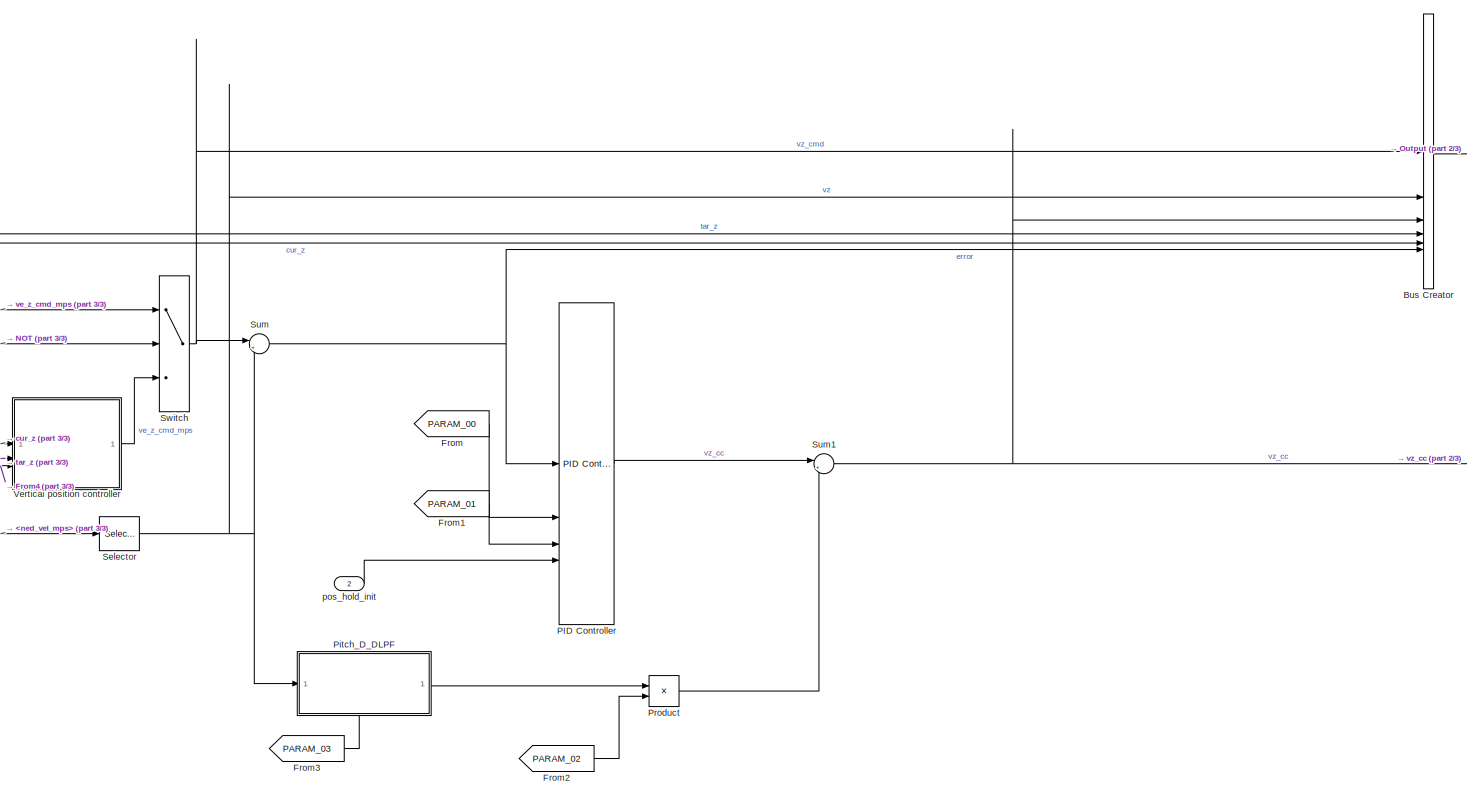
[diagram: POS_HOLD CONTROLLER/Vertical speed controller - part 1/3, center side, full height]
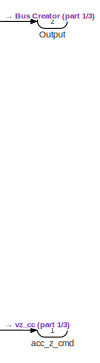
[diagram: POS_HOLD CONTROLLER/Vertical speed controller - part 2/3, middle right region]
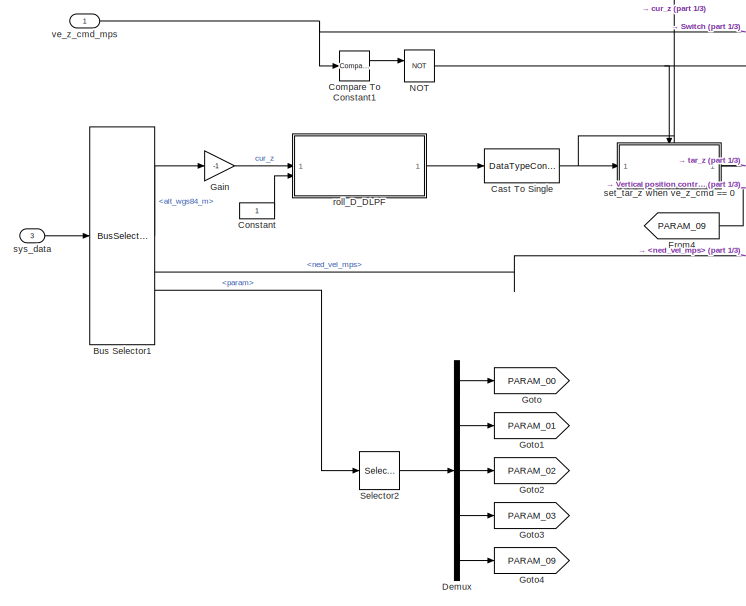
[diagram: POS_HOLD CONTROLLER/Vertical speed controller - part 3/3, middle left region]
BLOCK [SubSystem] POS_HOLD CONTROLLER/Vertical speed controller
BLOCK [BusCreator] POS_HOLD CONTROLLER/Vertical speed controller/Bus Creator
  DisplayOption = bar
  InheritFromInputs = on
  Inputs = 6
BLOCK [BusSelector] POS_HOLD CONTROLLER/Vertical speed controller/Bus Selector1
  OutputSignals = Sensor Data.ext_gnss1.alt_wgs84_m,StateEstData.bfs_ins.ned_vel_mps,Telemetry Data.param
BLOCK [DataTypeConversion] POS_HOLD CONTROLLER/Vertical speed controller/Cast To Single
  OutDataTypeStr = single
  RndMeth = Floor
  SaturateOnIntegerOverflow = off
BLOCK [Reference] POS_HOLD CONTROLLER/Vertical speed controller/Compare To Constant1  REF=simulink/Logic and Bit
Operations/Compare
To Constant
  SourceBlock = simulink/Logic and Bit\nOperations/Compare\nTo Constant
  SourceType = Compare To Constant
BLOCK [Constant] POS_HOLD CONTROLLER/Vertical speed controller/Constant
  OutDataTypeStr = single
BLOCK [Demux] POS_HOLD CONTROLLER/Vertical speed controller/Demux
  Outputs = 5
BLOCK [From] POS_HOLD CONTROLLER/Vertical speed controller/From
  GotoTag = PARAM_00
BLOCK [From] POS_HOLD CONTROLLER/Vertical speed controller/From1
  GotoTag = PARAM_01
BLOCK [From] POS_HOLD CONTROLLER/Vertical speed controller/From2
  GotoTag = PARAM_02
BLOCK [From] POS_HOLD CONTROLLER/Vertical speed controller/From3
  GotoTag = PARAM_03
BLOCK [From] POS_HOLD CONTROLLER/Vertical speed controller/From4
  GotoTag = PARAM_09
BLOCK [Gain] POS_HOLD CONTROLLER/Vertical speed controller/Gain
  Gain = -1
BLOCK [Goto] POS_HOLD CONTROLLER/Vertical speed controller/Goto
  GotoTag = PARAM_00
BLOCK [Goto] POS_HOLD CONTROLLER/Vertical speed controller/Goto1
  GotoTag = PARAM_01
BLOCK [Goto] POS_HOLD CONTROLLER/Vertical speed controller/Goto2
  GotoTag = PARAM_02
BLOCK [Goto] POS_HOLD CONTROLLER/Vertical speed controller/Goto3
  GotoTag = PARAM_03
BLOCK [Goto] POS_HOLD CONTROLLER/Vertical speed controller/Goto4
  GotoTag = PARAM_09
BLOCK [Logic] POS_HOLD CONTROLLER/Vertical speed controller/NOT
  AllPortsSameDT = off
  IconShape = distinctive
  Operator = NOT
  OutDataTypeStr = boolean
BLOCK [Outport] POS_HOLD CONTROLLER/Vertical speed controller/Output
  Port = 2
BLOCK [Reference] POS_HOLD CONTROLLER/Vertical speed controller/PID Controller  REF=slpidlib/PID Controller
  SourceBlock = slpidlib/PID Controller
  SourceType = PID 1dof
BLOCK [SubSystem] POS_HOLD CONTROLLER/Vertical speed controller/Pitch_D_DLPF
  NameLocation = top
BLOCK [SubSystem] POS_HOLD CONTROLLER/Vertical speed controller/Pitch_D_DLPF/MATLAB Function
  ErrorFcn = Stateflow.Translate.translate
  PermitHierarchicalResolution = ExplicitOnly
  SFBlockType = MATLAB Function
  TreatAsAtomicUnit = on
BLOCK [Demux] POS_HOLD CONTROLLER/Vertical speed controller/Pitch_D_DLPF/MATLAB Function/ Demux 
  Outputs = 1
BLOCK [S-Function] POS_HOLD CONTROLLER/Vertical speed controller/Pitch_D_DLPF/MATLAB Function/ SFunction 
  EnableBusSupport = on
  FunctionName = sf_sfun
  PortCounts = [3 2]
  SFcnIsStateOwnerBlock = off
  SFunctionDeploymentMode = off
  Tag = Stateflow S-Function 1
BLOCK [Terminator] POS_HOLD CONTROLLER/Vertical speed controller/Pitch_D_DLPF/MATLAB Function/ Terminator 
BLOCK [Outport] POS_HOLD CONTROLLER/Vertical speed controller/Pitch_D_DLPF/MATLAB Function/filtered_val
BLOCK [Inport] POS_HOLD CONTROLLER/Vertical speed controller/Pitch_D_DLPF/MATLAB Function/freq_cut
  Port = 3
BLOCK [Inport] POS_HOLD CONTROLLER/Vertical speed controller/Pitch_D_DLPF/MATLAB Function/prev_val
BLOCK [Inport] POS_HOLD CONTROLLER/Vertical speed controller/Pitch_D_DLPF/MATLAB Function/raw_val
  Port = 2
BLOCK [UnitDelay] POS_HOLD CONTROLLER/Vertical speed controller/Pitch_D_DLPF/Unit Delay
  HasFrameUpgradeWarning = on
  NameLocation = top
  SampleTime = -1
BLOCK [Outport] POS_HOLD CONTROLLER/Vertical speed controller/Pitch_D_DLPF/filtered_val
BLOCK [Inport] POS_HOLD CONTROLLER/Vertical speed controller/Pitch_D_DLPF/freq_cut
  Port = 2
BLOCK [Inport] POS_HOLD CONTROLLER/Vertical speed controller/Pitch_D_DLPF/raw_val
BLOCK [Product] POS_HOLD CONTROLLER/Vertical speed controller/Product
BLOCK [Selector] POS_HOLD CONTROLLER/Vertical speed controller/Selector
  IndexOptions = Index vector (dialog)
  Indices = [3]
  InputPortWidth = 3
  OutputSizes = 1
BLOCK [Selector] POS_HOLD CONTROLLER/Vertical speed controller/Selector2
  IndexMode = Zero-based
  IndexOptions = Index vector (dialog)
  Indices = [0 1 2 3 9]
  InputPortWidth = 24
  OutputSizes = 1
BLOCK [Sum] POS_HOLD CONTROLLER/Vertical speed controller/Sum
  Inputs = |+-
BLOCK [Sum] POS_HOLD CONTROLLER/Vertical speed controller/Sum1
  Inputs = |+-
BLOCK [Switch] POS_HOLD CONTROLLER/Vertical speed controller/Switch
  Criteria = u2 > Threshold
  InputSameDT = off
  SaturateOnIntegerOverflow = off
BLOCK [SubSystem] POS_HOLD CONTROLLER/Vertical speed controller/Vertical position controller
BLOCK [Reference] POS_HOLD CONTROLLER/Vertical speed controller/Vertical position controller/Altitude PID  REF=slpidlib/PID Controller
  SourceBlock = slpidlib/PID Controller
  SourceType = PID 1dof
BLOCK [Inport] POS_HOLD CONTROLLER/Vertical speed controller/Vertical position controller/P_alt
  Port = 3
BLOCK [Sum] POS_HOLD CONTROLLER/Vertical speed controller/Vertical position controller/Sum3
  Inputs = |+-
BLOCK [Inport] POS_HOLD CONTROLLER/Vertical speed controller/Vertical position controller/cur_alt
BLOCK [Inport] POS_HOLD CONTROLLER/Vertical speed controller/Vertical position controller/tar_z
  Port = 2
BLOCK [Outport] POS_HOLD CONTROLLER/Vertical speed controller/Vertical position controller/ve_z_cmd_mps
BLOCK [Outport] POS_HOLD CONTROLLER/Vertical speed controller/acc_z_cmd
BLOCK [Inport] POS_HOLD CONTROLLER/Vertical speed controller/pos_hold_init
  Port = 2
BLOCK [SubSystem] POS_HOLD CONTROLLER/Vertical speed controller/roll_D_DLPF
  NameLocation = top
BLOCK [Constant] POS_HOLD CONTROLLER/Vertical speed controller/roll_D_DLPF/Constant
  OutDataTypeStr = single
  Value = frameRate_hz
BLOCK [SubSystem] POS_HOLD CONTROLLER/Vertical speed controller/roll_D_DLPF/MATLAB Function
  ErrorFcn = Stateflow.Translate.translate
  PermitHierarchicalResolution = ExplicitOnly
  SFBlockType = MATLAB Function
  TreatAsAtomicUnit = on
BLOCK [Demux] POS_HOLD CONTROLLER/Vertical speed controller/roll_D_DLPF/MATLAB Function/ Demux 
  Outputs = 1
BLOCK [S-Function] POS_HOLD CONTROLLER/Vertical speed controller/roll_D_DLPF/MATLAB Function/ SFunction 
  EnableBusSupport = on
  FunctionName = sf_sfun
  PortCounts = [4 2]
  SFcnIsStateOwnerBlock = off
  SFunctionDeploymentMode = off
  Tag = Stateflow S-Function 16
BLOCK [Terminator] POS_HOLD CONTROLLER/Vertical speed controller/roll_D_DLPF/MATLAB Function/ Terminator 
BLOCK [Outport] POS_HOLD CONTROLLER/Vertical speed controller/roll_D_DLPF/MATLAB Function/filtered_val
BLOCK [Inport] POS_HOLD CONTROLLER/Vertical speed controller/roll_D_DLPF/MATLAB Function/freq_cut
  Port = 3
BLOCK [Inport] POS_HOLD CONTROLLER/Vertical speed controller/roll_D_DLPF/MATLAB Function/prev_val
BLOCK [Inport] POS_HOLD CONTROLLER/Vertical speed controller/roll_D_DLPF/MATLAB Function/raw_val
  Port = 2
BLOCK [Inport] POS_HOLD CONTROLLER/Vertical speed controller/roll_D_DLPF/MATLAB Function/samp_freq
  Port = 4
BLOCK [UnitDelay] POS_HOLD CONTROLLER/Vertical speed controller/roll_D_DLPF/Unit Delay
  HasFrameUpgradeWarning = on
  NameLocation = top
  SampleTime = -1
BLOCK [Outport] POS_HOLD CONTROLLER/Vertical speed controller/roll_D_DLPF/filtered_val
BLOCK [Inport] POS_HOLD CONTROLLER/Vertical speed controller/roll_D_DLPF/freq_cut
  Port = 2
BLOCK [Inport] POS_HOLD CONTROLLER/Vertical speed controller/roll_D_DLPF/raw_val
BLOCK [SubSystem] POS_HOLD CONTROLLER/Vertical speed controller/set_tar_z when ve_z_cmd == 0
  TreatAsAtomicUnit = on
BLOCK [EnablePort] POS_HOLD CONTROLLER/Vertical speed controller/set_tar_z when ve_z_cmd == 0/Enable
BLOCK [Inport] POS_HOLD CONTROLLER/Vertical speed controller/set_tar_z when ve_z_cmd == 0/In1
BLOCK [Outport] POS_HOLD CONTROLLER/Vertical speed controller/set_tar_z when ve_z_cmd == 0/tar_z
BLOCK [Inport] POS_HOLD CONTROLLER/Vertical speed controller/sys_data
  Port = 3
BLOCK [Inport] POS_HOLD CONTROLLER/Vertical speed controller/ve_z_cmd_mps
BLOCK [Outport] POS_HOLD CONTROLLER/target
  Port = 4
BLOCK [SubSystem] POS_HOLD_input_conversion
BLOCK [BusCreator] POS_HOLD_input_conversion/Bus Creator
  DisplayOption = bar
  InheritFromInputs = on
  Inputs = 4
BLOCK [BusSelector] POS_HOLD_input_conversion/Bus Selector
  OutputSignals = StateEstData.bfs_ins.heading_rad
BLOCK [BusSelector] POS_HOLD_input_conversion/Bus Selector2
  OutputSignals = throttle,pitch,roll,yaw
BLOCK [SubSystem] POS_HOLD_input_conversion/Circular constraint
  ErrorFcn = Stateflow.Translate.translate
  PermitHierarchicalResolution = ExplicitOnly
  SFBlockType = MATLAB Function
  TreatAsAtomicUnit = on
BLOCK [Demux] POS_HOLD_input_conversion/Circular constraint/ Demux 
  Outputs = 1
BLOCK [S-Function] POS_HOLD_input_conversion/Circular constraint/ SFunction 
  EnableBusSupport = on
  FunctionName = sf_sfun
  PortCounts = [2 3]
  SFcnIsStateOwnerBlock = off
  SFunctionDeploymentMode = off
  Tag = Stateflow S-Function 34
BLOCK [Terminator] POS_HOLD_input_conversion/Circular constraint/ Terminator 
BLOCK [Outport] POS_HOLD_input_conversion/Circular constraint/x
BLOCK [Inport] POS_HOLD_input_conversion/Circular constraint/x_in
BLOCK [Outport] POS_HOLD_input_conversion/Circular constraint/y
  Port = 2
BLOCK [Inport] POS_HOLD_input_conversion/Circular constraint/y_in
  Port = 2
BLOCK [Constant] POS_HOLD_input_conversion/Constant1
  OutDataTypeStr = single
  Value = Aircraft.Control.v_hor_max
BLOCK [Constant] POS_HOLD_input_conversion/Constant2
  OutDataTypeStr = single
  Value = 0.1
BLOCK [Constant] POS_HOLD_input_conversion/Constant3
  OutDataTypeStr = single
  Value = Aircraft.Control.yaw_rate_max
BLOCK [Constant] POS_HOLD_input_conversion/Constant4
  OutDataTypeStr = single
  Value = Aircraft.Control.v_hor_max
BLOCK [EnablePort] POS_HOLD_input_conversion/Enable
BLOCK [Mux] POS_HOLD_input_conversion/Mux
  DisplayOption = bar
  Inputs = 2
BLOCK [Product] POS_HOLD_input_conversion/Product
BLOCK [Product] POS_HOLD_input_conversion/Product1
BLOCK [Product] POS_HOLD_input_conversion/Product2
BLOCK [Inport] POS_HOLD_input_conversion/Sys
  Port = 2
BLOCK [Outport] POS_HOLD_input_conversion/angle_ctrl_input
BLOCK [SubSystem] POS_HOLD_input_conversion/body_to_inertial conversion
BLOCK [SubSystem] POS_HOLD_input_conversion/body_to_inertial conversion/2D rotation from NED_xy to body_xy
BLOCK [Outport] POS_HOLD_input_conversion/body_to_inertial conversion/2D rotation from NED_xy to body_xy/2D_rot
BLOCK [Inport] POS_HOLD_input_conversion/body_to_inertial conversion/2D rotation from NED_xy to body_xy/<heading_rad>
BLOCK [Trigonometry] POS_HOLD_input_conversion/body_to_inertial conversion/2D rotation from NED_xy to body_xy/Cos
  Operator = cos
BLOCK [Gain] POS_HOLD_input_conversion/body_to_inertial conversion/2D rotation from NED_xy to body_xy/Gain
  Gain = -1
BLOCK [Mux] POS_HOLD_input_conversion/body_to_inertial conversion/2D rotation from NED_xy to body_xy/Mux
  DisplayOption = bar
BLOCK [Reshape] POS_HOLD_input_conversion/body_to_inertial conversion/2D rotation from NED_xy to body_xy/Reshape
  OutputDimensionality = Customize
  OutputDimensions = [2,2]
BLOCK [Trigonometry] POS_HOLD_input_conversion/body_to_inertial conversion/2D rotation from NED_xy to body_xy/Sin
BLOCK [Demux] POS_HOLD_input_conversion/body_to_inertial conversion/Demux
  Outputs = 2
BLOCK [Product] POS_HOLD_input_conversion/body_to_inertial conversion/Product
  Multiplication = Matrix(*)
BLOCK [Math] POS_HOLD_input_conversion/body_to_inertial conversion/Transpose
  Operator = transpose
BLOCK [Inport] POS_HOLD_input_conversion/body_to_inertial conversion/heading_rad
  Port = 2
BLOCK [Inport] POS_HOLD_input_conversion/body_to_inertial conversion/vb_xy
BLOCK [Outport] POS_HOLD_input_conversion/body_to_inertial conversion/ve_x
BLOCK [Outport] POS_HOLD_input_conversion/body_to_inertial conversion/ve_y
  Port = 2
BLOCK [Inport] POS_HOLD_input_conversion/cmd
BLOCK [SubSystem] POS_HOLD_input_conversion/pitch_norm_deadband
BLOCK [Constant] POS_HOLD_input_conversion/pitch_norm_deadband/Constant
  OutDataTypeStr = single
  Value = 0
BLOCK [Constant] POS_HOLD_input_conversion/pitch_norm_deadband/Constant1
  OutDataTypeStr = single
  Value = Aircraft.Control.v_z_max
BLOCK [Constant] POS_HOLD_input_conversion/pitch_norm_deadband/Constant2
  OutDataTypeStr = single
  Value = -Aircraft.Control.v_z_max
BLOCK [Constant] POS_HOLD_input_conversion/pitch_norm_deadband/Constant3
  OutDataTypeStr = single
BLOCK [Inport] POS_HOLD_input_conversion/pitch_norm_deadband/deadband
  Port = 2
BLOCK [Outport] POS_HOLD_input_conversion/pitch_norm_deadband/normalized_out
BLOCK [Inport] POS_HOLD_input_conversion/pitch_norm_deadband/raw_sbus_in
BLOCK [SubSystem] POS_HOLD_input_conversion/pitch_norm_deadband/remap_with_deadband
  ErrorFcn = Stateflow.Translate.translate
  PermitHierarchicalResolution = ExplicitOnly
  SFBlockType = MATLAB Function
  TreatAsAtomicUnit = on
BLOCK [Demux] POS_HOLD_input_conversion/pitch_norm_deadband/remap_with_deadband/ Demux 
  Outputs = 1
BLOCK [S-Function] POS_HOLD_input_conversion/pitch_norm_deadband/remap_with_deadband/ SFunction 
  EnableBusSupport = on
  FunctionName = sf_sfun
  PortCounts = [6 2]
  SFcnIsStateOwnerBlock = off
  SFunctionDeploymentMode = off
  Tag = Stateflow S-Function 5
BLOCK [Terminator] POS_HOLD_input_conversion/pitch_norm_deadband/remap_with_deadband/ Terminator 
BLOCK [Inport] POS_HOLD_input_conversion/pitch_norm_deadband/remap_with_deadband/deadband
  Port = 6
BLOCK [Inport] POS_HOLD_input_conversion/pitch_norm_deadband/remap_with_deadband/in_max
  Port = 3
BLOCK [Inport] POS_HOLD_input_conversion/pitch_norm_deadband/remap_with_deadband/in_min
  Port = 2
BLOCK [Outport] POS_HOLD_input_conversion/pitch_norm_deadband/remap_with_deadband/norm_out
BLOCK [Inport] POS_HOLD_input_conversion/pitch_norm_deadband/remap_with_deadband/out_max
  Port = 5
BLOCK [Inport] POS_HOLD_input_conversion/pitch_norm_deadband/remap_with_deadband/out_min
  Port = 4
BLOCK [Inport] POS_HOLD_input_conversion/pitch_norm_deadband/remap_with_deadband/raw_in
BLOCK [Saturate] Saturation
  LowerLimit = 0
  UpperLimit = 1
BLOCK [Inport] Sensor Data
  BusOutputAsStruct = on
  OutDataTypeStr = Bus: SensorData
  Port = 2
  SampleTime = framePeriod_s
BLOCK [SubSystem] Stab_input_conversion
BLOCK [BusCreator] Stab_input_conversion/Bus Creator
  DisplayOption = bar
  InheritFromInputs = on
  Inputs = 4
BLOCK [BusSelector] Stab_input_conversion/Bus Selector2
  OutputSignals = throttle,pitch,roll,yaw
BLOCK [SubSystem] Stab_input_conversion/Circular constraint
  ErrorFcn = Stateflow.Translate.translate
  PermitHierarchicalResolution = ExplicitOnly
  SFBlockType = MATLAB Function
  TreatAsAtomicUnit = on
BLOCK [Demux] Stab_input_conversion/Circular constraint/ Demux 
  Outputs = 1
BLOCK [S-Function] Stab_input_conversion/Circular constraint/ SFunction 
  EnableBusSupport = on
  FunctionName = sf_sfun
  PortCounts = [2 3]
  SFcnIsStateOwnerBlock = off
  SFunctionDeploymentMode = off
  Tag = Stateflow S-Function 35
BLOCK [Terminator] Stab_input_conversion/Circular constraint/ Terminator 
BLOCK [Outport] Stab_input_conversion/Circular constraint/x
BLOCK [Inport] Stab_input_conversion/Circular constraint/x_in
BLOCK [Outport] Stab_input_conversion/Circular constraint/y
  Port = 2
BLOCK [Inport] Stab_input_conversion/Circular constraint/y_in
  Port = 2
BLOCK [Reference] Stab_input_conversion/Compare To Constant  REF=simulink/Logic and Bit
Operations/Compare
To Constant
  SourceBlock = simulink/Logic and Bit\nOperations/Compare\nTo Constant
  SourceType = Compare To Constant
BLOCK [Constant] Stab_input_conversion/Constant
  OutDataTypeStr = single
  Value = Aircraft.Control.att_angle_lim
BLOCK [Constant] Stab_input_conversion/Constant1
  OutDataTypeStr = single
  Value = Aircraft.Control.att_angle_lim
BLOCK [Constant] Stab_input_conversion/Constant2
  OutDataTypeStr = single
  Value = Aircraft.Control.yaw_rate_max
BLOCK [EnablePort] Stab_input_conversion/Enable
BLOCK [Gain] Stab_input_conversion/Gain
  Gain = -1
BLOCK [Product] Stab_input_conversion/Product
BLOCK [Product] Stab_input_conversion/Product1
BLOCK [Product] Stab_input_conversion/Product2
BLOCK [Outport] Stab_input_conversion/angle_ctrl_input
BLOCK [Inport] Stab_input_conversion/cmd
BLOCK [Outport] Stab_input_conversion/low_throttle
  Port = 2
BLOCK [SubSystem] Stab_input_conversion/remap from min_spin to max
BLOCK [Constant] Stab_input_conversion/remap from min_spin to max/Constant4
  OutDataTypeStr = single
  Value = 0
BLOCK [Constant] Stab_input_conversion/remap from min_spin to max/Constant5
  OutDataTypeStr = single
  Value = Aircraft.Control.motor_spin_min
BLOCK [Constant] Stab_input_conversion/remap from min_spin to max/Constant6
  OutDataTypeStr = single
BLOCK [Constant] Stab_input_conversion/remap from min_spin to max/Constant7
  OutDataTypeStr = single
BLOCK [Outport] Stab_input_conversion/remap from min_spin to max/norm_out
BLOCK [Inport] Stab_input_conversion/remap from min_spin to max/raw_in
BLOCK [SubSystem] Stab_input_conversion/remap from min_spin to max/remap1
  ErrorFcn = Stateflow.Translate.translate
  PermitHierarchicalResolution = ExplicitOnly
  SFBlockType = MATLAB Function
  TreatAsAtomicUnit = on
BLOCK [Demux] Stab_input_conversion/remap from min_spin to max/remap1/ Demux 
  Outputs = 1
BLOCK [S-Function] Stab_input_conversion/remap from min_spin to max/remap1/ SFunction 
  EnableBusSupport = on
  FunctionName = sf_sfun
  PortCounts = [5 2]
  SFcnIsStateOwnerBlock = off
  SFunctionDeploymentMode = off
  Tag = Stateflow S-Function 15
BLOCK [Terminator] Stab_input_conversion/remap from min_spin to max/remap1/ Terminator 
BLOCK [Inport] Stab_input_conversion/remap from min_spin to max/remap1/in_max
  Port = 3
BLOCK [Inport] Stab_input_conversion/remap from min_spin to max/remap1/in_min
  Port = 2
BLOCK [Outport] Stab_input_conversion/remap from min_spin to max/remap1/norm_out
BLOCK [Inport] Stab_input_conversion/remap from min_spin to max/remap1/out_max
  Port = 5
BLOCK [Inport] Stab_input_conversion/remap from min_spin to max/remap1/out_min
  Port = 4
BLOCK [Inport] Stab_input_conversion/remap from min_spin to max/remap1/raw_in
BLOCK [Inport] StateEstData
  BusOutputAsStruct = on
  OutDataTypeStr = Bus: StateEstData
  Port = 3
  SampleTime = framePeriod_s
BLOCK [Sum] Subtract
  IconShape = rectangular
  Inputs = +-
BLOCK [Switch] Switch
  Criteria = u2 > Threshold
  InputSameDT = off
  SaturateOnIntegerOverflow = off
  Threshold = 0.5
BLOCK [Switch] Switch1
  Criteria = u2 > Threshold
  InputSameDT = off
  SaturateOnIntegerOverflow = off
  Threshold = 0.5
BLOCK [Inport] System Data
  BusOutputAsStruct = on
  OutDataTypeStr = Bus: SysData
  SampleTime = framePeriod_s
BLOCK [Inport] Telemetry Data
  BusOutputAsStruct = on
  OutDataTypeStr = Bus: TelemData
  Port = 4
  SampleTime = framePeriod_s
BLOCK [SubSystem] To VMS Data
BLOCK [Inport] To VMS Data/Aux
  Port = 6
BLOCK [BusCreator] To VMS Data/Bus Creator
  DisplayOption = bar
  InheritFromInputs = off
  Inputs = 9
  NonVirtualBus = on
  OutDataTypeStr = Bus: VmsData
BLOCK [Ground] To VMS Data/Ground
BLOCK [Ground] To VMS Data/Ground2
BLOCK [Inport] To VMS Data/Mode in
  Port = 3
BLOCK [Inport] To VMS Data/PWM In
  Port = 5
BLOCK [Inport] To VMS Data/SBUS in
  Port = 7
BLOCK [Outport] To VMS Data/VmsData
BLOCK [Inport] To VMS Data/motors_enabled
BLOCK [Inport] To VMS Data/throttle_cmd_prcnt
  Port = 4
BLOCK [Inport] To VMS Data/waypoint_reached
  Port = 2
BLOCK [UnitDelay] Unit Delay
  HasFrameUpgradeWarning = on
  SampleTime = -1
BLOCK [Outport] VmsData
  BusOutputAsStruct = on
  OutDataTypeStr = Bus: VmsData
  SampleTime = framePeriod_s
BLOCK [SubSystem] WAYPOINT CONTROLLER
BLOCK [SubSystem] WAYPOINT CONTROLLER CMD
BLOCK [BusCreator] WAYPOINT CONTROLLER CMD/Bus Creator
  DisplayOption = bar
  InheritFromInputs = on
  Inputs = 4
BLOCK [BusSelector] WAYPOINT CONTROLLER CMD/Bus Selector2
  OutputSignals = throttle,pitch,roll,yaw
BLOCK [Constant] WAYPOINT CONTROLLER CMD/Constant
  Commented = on
  Value = Aircraft.Inceptor.deadband
BLOCK [Constant] WAYPOINT CONTROLLER CMD/Constant1
  OutDataTypeStr = single
  Value = Aircraft.Control.v_hor_max
BLOCK [Constant] WAYPOINT CONTROLLER CMD/Constant3
  OutDataTypeStr = single
  Value = Aircraft.Control.yaw_rate_max
BLOCK [Constant] WAYPOINT CONTROLLER CMD/Constant4
  OutDataTypeStr = single
  Value = Aircraft.Control.v_hor_max
BLOCK [EnablePort] WAYPOINT CONTROLLER CMD/Enable
BLOCK [Product] WAYPOINT CONTROLLER CMD/Product
BLOCK [Product] WAYPOINT CONTROLLER CMD/Product1
BLOCK [Product] WAYPOINT CONTROLLER CMD/Product2
BLOCK [SubSystem] WAYPOINT CONTROLLER CMD/Throttle Mapper
  Commented = on
BLOCK [Reference] WAYPOINT CONTROLLER CMD/Throttle Mapper/Compare To Constant  REF=simulink/Logic and Bit
Operations/Compare
To Constant
  SourceBlock = simulink/Logic and Bit\nOperations/Compare\nTo Constant
  SourceType = Compare To Constant
BLOCK [Reference] WAYPOINT CONTROLLER CMD/Throttle Mapper/Compare To Constant1  REF=simulink/Logic and Bit
Operations/Compare
To Constant
  SourceBlock = simulink/Logic and Bit\nOperations/Compare\nTo Constant
  SourceType = Compare To Constant
BLOCK [Constant] WAYPOINT CONTROLLER CMD/Throttle Mapper/Constant
  OutDataTypeStr = single
  Value = Aircraft.Control.v_z_down_max
BLOCK [Constant] WAYPOINT CONTROLLER CMD/Throttle Mapper/Constant1
  OutDataTypeStr = single
  Value = Aircraft.Control.v_z_up_max
BLOCK [Constant] WAYPOINT CONTROLLER CMD/Throttle Mapper/Double
  OutDataTypeStr = single
  Value = 2
BLOCK [Gain] WAYPOINT CONTROLLER CMD/Throttle Mapper/Gain
  Gain = -1
BLOCK [Constant] WAYPOINT CONTROLLER CMD/Throttle Mapper/Normalize at Zero
  OutDataTypeStr = single
  Value = 0.5
BLOCK [Product] WAYPOINT CONTROLLER CMD/Throttle Mapper/Product
  Inputs = 3
BLOCK [Product] WAYPOINT CONTROLLER CMD/Throttle Mapper/Product1
  Inputs = 3
BLOCK [Outport] WAYPOINT CONTROLLER CMD/Throttle Mapper/Relative Velocity
BLOCK [Sum] WAYPOINT CONTROLLER CMD/Throttle Mapper/Sum
  Inputs = |+-
BLOCK [Sum] WAYPOINT CONTROLLER CMD/Throttle Mapper/Sum1
BLOCK [Inport] WAYPOINT CONTROLLER CMD/Throttle Mapper/Throttle
BLOCK [Product] WAYPOINT CONTROLLER CMD/Throttle Mapper/v_z_cmd (-1 to 1)
BLOCK [Outport] WAYPOINT CONTROLLER CMD/angle_ctrl_input
BLOCK [Inport] WAYPOINT CONTROLLER CMD/cmd
BLOCK [SubSystem] WAYPOINT CONTROLLER CMD/pitch_norm_deadband
  Commented = on
BLOCK [Constant] WAYPOINT CONTROLLER CMD/pitch_norm_deadband/Constant
  OutDataTypeStr = single
  Value = 0
BLOCK [Constant] WAYPOINT CONTROLLER CMD/pitch_norm_deadband/Constant1
  OutDataTypeStr = single
  Value = 0
BLOCK [Constant] WAYPOINT CONTROLLER CMD/pitch_norm_deadband/Constant2
  OutDataTypeStr = single
BLOCK [Constant] WAYPOINT CONTROLLER CMD/pitch_norm_deadband/Constant3
  OutDataTypeStr = single
BLOCK [Inport] WAYPOINT CONTROLLER CMD/pitch_norm_deadband/deadband
  Port = 2
BLOCK [Outport] WAYPOINT CONTROLLER CMD/pitch_norm_deadband/normalized_out
BLOCK [Inport] WAYPOINT CONTROLLER CMD/pitch_norm_deadband/raw_sbus_in
BLOCK [SubSystem] WAYPOINT CONTROLLER CMD/pitch_norm_deadband/remap_with_deadband
  ErrorFcn = Stateflow.Translate.translate
  PermitHierarchicalResolution = ExplicitOnly
  SFBlockType = MATLAB Function
  TreatAsAtomicUnit = on
BLOCK [Demux] WAYPOINT CONTROLLER CMD/pitch_norm_deadband/remap_with_deadband/ Demux 
  Outputs = 1
BLOCK [S-Function] WAYPOINT CONTROLLER CMD/pitch_norm_deadband/remap_with_deadband/ SFunction 
  EnableBusSupport = on
  FunctionName = sf_sfun
  PortCounts = [6 2]
  SFcnIsStateOwnerBlock = off
  SFunctionDeploymentMode = off
  Tag = Stateflow S-Function 26
BLOCK [Terminator] WAYPOINT CONTROLLER CMD/pitch_norm_deadband/remap_with_deadband/ Terminator 
BLOCK [Inport] WAYPOINT CONTROLLER CMD/pitch_norm_deadband/remap_with_deadband/deadband
  Port = 6
BLOCK [Inport] WAYPOINT CONTROLLER CMD/pitch_norm_deadband/remap_with_deadband/in_max
  Port = 3
BLOCK [Inport] WAYPOINT CONTROLLER CMD/pitch_norm_deadband/remap_with_deadband/in_min
  Port = 2
BLOCK [Outport] WAYPOINT CONTROLLER CMD/pitch_norm_deadband/remap_with_deadband/norm_out
BLOCK [Inport] WAYPOINT CONTROLLER CMD/pitch_norm_deadband/remap_with_deadband/out_max
  Port = 5
BLOCK [Inport] WAYPOINT CONTROLLER CMD/pitch_norm_deadband/remap_with_deadband/out_min
  Port = 4
BLOCK [Inport] WAYPOINT CONTROLLER CMD/pitch_norm_deadband/remap_with_deadband/raw_in
BLOCK [SubSystem] WAYPOINT CONTROLLER CMD/remap from min_spin to max
BLOCK [Constant] WAYPOINT CONTROLLER CMD/remap from min_spin to max/Constant4
  OutDataTypeStr = single
  Value = 0
BLOCK [Constant] WAYPOINT CONTROLLER CMD/remap from min_spin to max/Constant5
  OutDataTypeStr = single
  Value = Aircraft.Control.motor_spin_min
BLOCK [Constant] WAYPOINT CONTROLLER CMD/remap from min_spin to max/Constant6
  OutDataTypeStr = single
BLOCK [Constant] WAYPOINT CONTROLLER CMD/remap from min_spin to max/Constant7
  OutDataTypeStr = single
BLOCK [Outport] WAYPOINT CONTROLLER CMD/remap from min_spin to max/norm_out
BLOCK [Inport] WAYPOINT CONTROLLER CMD/remap from min_spin to max/raw_in
BLOCK [SubSystem] WAYPOINT CONTROLLER CMD/remap from min_spin to max/remap1
  ErrorFcn = Stateflow.Translate.translate
  PermitHierarchicalResolution = ExplicitOnly
  SFBlockType = MATLAB Function
  TreatAsAtomicUnit = on
BLOCK [Demux] WAYPOINT CONTROLLER CMD/remap from min_spin to max/remap1/ Demux 
  Outputs = 1
BLOCK [S-Function] WAYPOINT CONTROLLER CMD/remap from min_spin to max/remap1/ SFunction 
  EnableBusSupport = on
  FunctionName = sf_sfun
  PortCounts = [5 2]
  SFcnIsStateOwnerBlock = off
  SFunctionDeploymentMode = off
  Tag = Stateflow S-Function 27
BLOCK [Terminator] WAYPOINT CONTROLLER CMD/remap from min_spin to max/remap1/ Terminator 
BLOCK [Inport] WAYPOINT CONTROLLER CMD/remap from min_spin to max/remap1/in_max
  Port = 3
BLOCK [Inport] WAYPOINT CONTROLLER CMD/remap from min_spin to max/remap1/in_min
  Port = 2
BLOCK [Outport] WAYPOINT CONTROLLER CMD/remap from min_spin to max/remap1/norm_out
BLOCK [Inport] WAYPOINT CONTROLLER CMD/remap from min_spin to max/remap1/out_max
  Port = 5
BLOCK [Inport] WAYPOINT CONTROLLER CMD/remap from min_spin to max/remap1/out_min
  Port = 4
BLOCK [Inport] WAYPOINT CONTROLLER CMD/remap from min_spin to max/remap1/raw_in
BLOCK [BusSelector] WAYPOINT CONTROLLER/Bus Selector1
  OutputSignals = Telemetry Data.waypoints_updated,Telemetry Data.current_waypoint
BLOCK [Constant] WAYPOINT CONTROLLER/Constant
  OutDataTypeStr = int16
BLOCK [EnablePort] WAYPOINT CONTROLLER/Enable
  ShowOutputPort = on
  StatesWhenEnabling = reset
BLOCK [Logic] WAYPOINT CONTROLLER/OR
  AllPortsSameDT = off
  IconShape = distinctive
  Inputs = 3
  Operator = OR
  OutDataTypeStr = boolean
BLOCK [Sum] WAYPOINT CONTROLLER/Sum
  Inputs = |++
BLOCK [Inport] WAYPOINT CONTROLLER/Sys_input
  Port = 2
BLOCK [UnitDelay] WAYPOINT CONTROLLER/Unit Delay
  HasFrameUpgradeWarning = on
  SampleTime = -1
BLOCK [SubSystem] WAYPOINT CONTROLLER/WP_NAV
BLOCK [BusCreator] WAYPOINT CONTROLLER/WP_NAV/Bus Creator4
  DisplayOption = bar
  InheritFromInputs = on
  Inputs = 4
BLOCK [BusSelector] WAYPOINT CONTROLLER/WP_NAV/Bus Selector
  OutputSignals = yaw_rate_cmd_radps
BLOCK [Inport] WAYPOINT CONTROLLER/WP_NAV/Cmd
BLOCK [Outport] WAYPOINT CONTROLLER/WP_NAV/Command out
BLOCK [EnablePort] WAYPOINT CONTROLLER/WP_NAV/Enable
BLOCK [SubSystem] WAYPOINT CONTROLLER/WP_NAV/Horizontal position controller
BLOCK [BusSelector] WAYPOINT CONTROLLER/WP_NAV/Horizontal position controller/Bus Selector2
  OutputSignals = StateEstData.aux_ins.ned_pos_m
BLOCK [DataTypeConversion] WAYPOINT CONTROLLER/WP_NAV/Horizontal position controller/Cast To Single
  OutDataTypeStr = single
  RndMeth = Floor
  SaturateOnIntegerOverflow = off
BLOCK [DataTypeConversion] WAYPOINT CONTROLLER/WP_NAV/Horizontal position controller/Cast To Single1
  OutDataTypeStr = single
  RndMeth = Floor
  SaturateOnIntegerOverflow = off
BLOCK [DataTypeConversion] WAYPOINT CONTROLLER/WP_NAV/Horizontal position controller/Cast To Single2
  OutDataTypeStr = single
  RndMeth = Floor
  SaturateOnIntegerOverflow = off
BLOCK [SubSystem] WAYPOINT CONTROLLER/WP_NAV/Horizontal position controller/Horizontal_position_controller
BLOCK [DataTypeConversion] WAYPOINT CONTROLLER/WP_NAV/Horizontal position controller/Horizontal_position_controller/Cast To Single
  OutDataTypeStr = single
  RndMeth = Floor
  SaturateOnIntegerOverflow = off
BLOCK [Reference] WAYPOINT CONTROLLER/WP_NAV/Horizontal position controller/Horizontal_position_controller/Compare To Constant  REF=simulink/Logic and Bit
Operations/Compare
To Constant
  SourceBlock = simulink/Logic and Bit\nOperations/Compare\nTo Constant
  SourceType = Compare To Constant
BLOCK [Constant] WAYPOINT CONTROLLER/WP_NAV/Horizontal position controller/Horizontal_position_controller/Constant
  OutDataTypeStr = single
  Value = 0
BLOCK [Constant] WAYPOINT CONTROLLER/WP_NAV/Horizontal position controller/Horizontal_position_controller/Constant2
  OutDataTypeStr = single
  Value = Aircraft.Control.P_wp_dist
BLOCK [Constant] WAYPOINT CONTROLLER/WP_NAV/Horizontal position controller/Horizontal_position_controller/Constant3
  OutDataTypeStr = single
  Value = 0
BLOCK [Constant] WAYPOINT CONTROLLER/WP_NAV/Horizontal position controller/Horizontal_position_controller/Constant5
  OutDataTypeStr = single
  Value = Aircraft.Control.P_dev_dist
BLOCK [Reference] WAYPOINT CONTROLLER/WP_NAV/Horizontal position controller/Horizontal_position_controller/PID Controller1  REF=slpidlib/PID Controller
  SourceBlock = slpidlib/PID Controller
  SourceType = PID 1dof
BLOCK [Reference] WAYPOINT CONTROLLER/WP_NAV/Horizontal position controller/Horizontal_position_controller/PID Controller2  REF=slpidlib/PID Controller
  SourceBlock = slpidlib/PID Controller
  SourceType = PID 1dof
BLOCK [Product] WAYPOINT CONTROLLER/WP_NAV/Horizontal position controller/Horizontal_position_controller/Product
BLOCK [Saturate] WAYPOINT CONTROLLER/WP_NAV/Horizontal position controller/Horizontal_position_controller/Saturation
  LowerLimit = 0
  UpperLimit = 1
BLOCK [Sum] WAYPOINT CONTROLLER/WP_NAV/Horizontal position controller/Horizontal_position_controller/Sum
  Inputs = |++
BLOCK [Sum] WAYPOINT CONTROLLER/WP_NAV/Horizontal position controller/Horizontal_position_controller/Sum1
  Inputs = |++
BLOCK [Inport] WAYPOINT CONTROLLER/WP_NAV/Horizontal position controller/Horizontal_position_controller/bearing_to_tar_rad
  Port = 2
BLOCK [SubSystem] WAYPOINT CONTROLLER/WP_NAV/Horizontal position controller/Horizontal_position_controller/convert to ve_cmd
BLOCK [Trigonometry] WAYPOINT CONTROLLER/WP_NAV/Horizontal position controller/Horizontal_position_controller/convert to ve_cmd/Cos
  Operator = cos
BLOCK [Product] WAYPOINT CONTROLLER/WP_NAV/Horizontal position controller/Horizontal_position_controller/convert to ve_cmd/Product
BLOCK [Product] WAYPOINT CONTROLLER/WP_NAV/Horizontal position controller/Horizontal_position_controller/convert to ve_cmd/Product1
BLOCK [Trigonometry] WAYPOINT CONTROLLER/WP_NAV/Horizontal position controller/Horizontal_position_controller/convert to ve_cmd/Sin
BLOCK [Inport] WAYPOINT CONTROLLER/WP_NAV/Horizontal position controller/Horizontal_position_controller/convert to ve_cmd/bearing_to_target_rad
  Port = 2
BLOCK [Inport] WAYPOINT CONTROLLER/WP_NAV/Horizontal position controller/Horizontal_position_controller/convert to ve_cmd/speed_cmd_mps
BLOCK [Outport] WAYPOINT CONTROLLER/WP_NAV/Horizontal position controller/Horizontal_position_controller/convert to ve_cmd/ve_x_cmd
BLOCK [Outport] WAYPOINT CONTROLLER/WP_NAV/Horizontal position controller/Horizontal_position_controller/convert to ve_cmd/ve_y_cmd
  Port = 2
BLOCK [SubSystem] WAYPOINT CONTROLLER/WP_NAV/Horizontal position controller/Horizontal_position_controller/convert to ve_cmd1
BLOCK [Trigonometry] WAYPOINT CONTROLLER/WP_NAV/Horizontal position controller/Horizontal_position_controller/convert to ve_cmd1/Cos
  Operator = cos
BLOCK [Product] WAYPOINT CONTROLLER/WP_NAV/Horizontal position controller/Horizontal_position_controller/convert to ve_cmd1/Product
BLOCK [Product] WAYPOINT CONTROLLER/WP_NAV/Horizontal position controller/Horizontal_position_controller/convert to ve_cmd1/Product1
BLOCK [Trigonometry] WAYPOINT CONTROLLER/WP_NAV/Horizontal position controller/Horizontal_position_controller/convert to ve_cmd1/Sin
BLOCK [Inport] WAYPOINT CONTROLLER/WP_NAV/Horizontal position controller/Horizontal_position_controller/convert to ve_cmd1/bearing_to_target_rad
  Port = 2
BLOCK [Inport] WAYPOINT CONTROLLER/WP_NAV/Horizontal position controller/Horizontal_position_controller/convert to ve_cmd1/speed_cmd_mps
BLOCK [Outport] WAYPOINT CONTROLLER/WP_NAV/Horizontal position controller/Horizontal_position_controller/convert to ve_cmd1/ve_x_cmd
BLOCK [Outport] WAYPOINT CONTROLLER/WP_NAV/Horizontal position controller/Horizontal_position_controller/convert to ve_cmd1/ve_y_cmd
  Port = 2
BLOCK [Inport] WAYPOINT CONTROLLER/WP_NAV/Horizontal position controller/Horizontal_position_controller/dev_bearing_rad
  Port = 4
BLOCK [Inport] WAYPOINT CONTROLLER/WP_NAV/Horizontal position controller/Horizontal_position_controller/dev_dist_m
  Port = 3
BLOCK [Inport] WAYPOINT CONTROLLER/WP_NAV/Horizontal position controller/Horizontal_position_controller/dist_to_tar_m
BLOCK [SubSystem] WAYPOINT CONTROLLER/WP_NAV/Horizontal position controller/Horizontal_position_controller/gnd_spd_constraint 
BLOCK [Demux] WAYPOINT CONTROLLER/WP_NAV/Horizontal position controller/Horizontal_position_controller/gnd_spd_constraint /Demux
  Outputs = 2
BLOCK [Math] WAYPOINT CONTROLLER/WP_NAV/Horizontal position controller/Horizontal_position_controller/gnd_spd_constraint /Magnitude Squared
  Operator = magnitude^2
BLOCK [Mux] WAYPOINT CONTROLLER/WP_NAV/Horizontal position controller/Horizontal_position_controller/gnd_spd_constraint /Mux
  DisplayOption = bar
  Inputs = 2
BLOCK [Reference] WAYPOINT CONTROLLER/WP_NAV/Horizontal position controller/Horizontal_position_controller/gnd_spd_constraint /Normalization1  REF=dspmathops/Normalization
  SourceBlock = dspmathops/Normalization
  SourceType = Normalization
BLOCK [Product] WAYPOINT CONTROLLER/WP_NAV/Horizontal position controller/Horizontal_position_controller/gnd_spd_constraint /Product
BLOCK [Sqrt] WAYPOINT CONTROLLER/WP_NAV/Horizontal position controller/Horizontal_position_controller/gnd_spd_constraint /Sqrt
BLOCK [Sum] WAYPOINT CONTROLLER/WP_NAV/Horizontal position controller/Horizontal_position_controller/gnd_spd_constraint /Subtract
  IconShape = rectangular
  Inputs = -+
BLOCK [Sum] WAYPOINT CONTROLLER/WP_NAV/Horizontal position controller/Horizontal_position_controller/gnd_spd_constraint /Sum of Elements
  IconShape = rectangular
  Inputs = +
BLOCK [Switch] WAYPOINT CONTROLLER/WP_NAV/Horizontal position controller/Horizontal_position_controller/gnd_spd_constraint /Switch
  Criteria = u2 > Threshold
  InputSameDT = off
  SaturateOnIntegerOverflow = off
BLOCK [Inport] WAYPOINT CONTROLLER/WP_NAV/Horizontal position controller/Horizontal_position_controller/gnd_spd_constraint /max_v_hor_mps
  Port = 3
BLOCK [Inport] WAYPOINT CONTROLLER/WP_NAV/Horizontal position controller/Horizontal_position_controller/gnd_spd_constraint /v_e_x_in
BLOCK [Outport] WAYPOINT CONTROLLER/WP_NAV/Horizontal position controller/Horizontal_position_controller/gnd_spd_constraint /v_e_x_out
BLOCK [Inport] WAYPOINT CONTROLLER/WP_NAV/Horizontal position controller/Horizontal_position_controller/gnd_spd_constraint /v_e_y_in
  Port = 2
BLOCK [Outport] WAYPOINT CONTROLLER/WP_NAV/Horizontal position controller/Horizontal_position_controller/gnd_spd_constraint /v_e_y_out
  Port = 2
BLOCK [Inport] WAYPOINT CONTROLLER/WP_NAV/Horizontal position controller/Horizontal_position_controller/max_v_hor_mps
  Port = 5
BLOCK [Outport] WAYPOINT CONTROLLER/WP_NAV/Horizontal position controller/Horizontal_position_controller/ve_x
BLOCK [Outport] WAYPOINT CONTROLLER/WP_NAV/Horizontal position controller/Horizontal_position_controller/ve_y
  Port = 2
BLOCK [Mux] WAYPOINT CONTROLLER/WP_NAV/Horizontal position controller/Mux
  DisplayOption = bar
  Inputs = 2
BLOCK [Reference] WAYPOINT CONTROLLER/WP_NAV/Horizontal position controller/Radians to Degrees  REF=simulink_extras/Transformations/Radians
to Degrees
  SourceBlock = simulink_extras/Transformations/Radians\nto Degrees
  SourceType = RadiansToDegrees
BLOCK [Inport] WAYPOINT CONTROLLER/WP_NAV/Horizontal position controller/Sys_input
BLOCK [Inport] WAYPOINT CONTROLLER/WP_NAV/Horizontal position controller/cur_target_pos_m
  Port = 2
BLOCK [SubSystem] WAYPOINT CONTROLLER/WP_NAV/Horizontal position controller/deviation_calc
  ErrorFcn = Stateflow.Translate.translate
  PermitHierarchicalResolution = ExplicitOnly
  SFBlockType = MATLAB Function
  TreatAsAtomicUnit = on
BLOCK [Demux] WAYPOINT CONTROLLER/WP_NAV/Horizontal position controller/deviation_calc/ Demux 
  Outputs = 1
BLOCK [S-Function] WAYPOINT CONTROLLER/WP_NAV/Horizontal position controller/deviation_calc/ SFunction 
  EnableBusSupport = on
  FunctionName = sf_sfun
  PortCounts = [3 3]
  SFcnIsStateOwnerBlock = off
  SFunctionDeploymentMode = off
  Tag = Stateflow S-Function 29
BLOCK [Terminator] WAYPOINT CONTROLLER/WP_NAV/Horizontal position controller/deviation_calc/ Terminator 
BLOCK [Inport] WAYPOINT CONTROLLER/WP_NAV/Horizontal position controller/deviation_calc/cur_pos
  Port = 2
BLOCK [Outport] WAYPOINT CONTROLLER/WP_NAV/Horizontal position controller/deviation_calc/dev_bearing_rad
  Port = 2
BLOCK [Outport] WAYPOINT CONTROLLER/WP_NAV/Horizontal position controller/deviation_calc/dev_dist_m
BLOCK [Inport] WAYPOINT CONTROLLER/WP_NAV/Horizontal position controller/deviation_calc/prev_pos
  Port = 3
BLOCK [Inport] WAYPOINT CONTROLLER/WP_NAV/Horizontal position controller/deviation_calc/tar_pos
BLOCK [SubSystem] WAYPOINT CONTROLLER/WP_NAV/Horizontal position controller/horizontal_error_calculation 
BLOCK [Trigonometry] WAYPOINT CONTROLLER/WP_NAV/Horizontal position controller/horizontal_error_calculation /Atan2
  Operator = atan2
BLOCK [DataTypeConversion] WAYPOINT CONTROLLER/WP_NAV/Horizontal position controller/horizontal_error_calculation /Cast To Single
  OutDataTypeStr = single
  RndMeth = Floor
  SaturateOnIntegerOverflow = off
BLOCK [DataTypeConversion] WAYPOINT CONTROLLER/WP_NAV/Horizontal position controller/horizontal_error_calculation /Cast To Single1
  OutDataTypeStr = single
  RndMeth = Floor
  SaturateOnIntegerOverflow = off
BLOCK [Demux] WAYPOINT CONTROLLER/WP_NAV/Horizontal position controller/horizontal_error_calculation /Demux2
  Outputs = 2
BLOCK [Product] WAYPOINT CONTROLLER/WP_NAV/Horizontal position controller/horizontal_error_calculation /MatrixMultiply
  Multiplication = Matrix(*)
BLOCK [Selector] WAYPOINT CONTROLLER/WP_NAV/Horizontal position controller/horizontal_error_calculation /Selector
  IndexOptions = Index vector (dialog)
  Indices = [1 2]
  InputPortWidth = 3
  OutputSizes = 1
BLOCK [Sqrt] WAYPOINT CONTROLLER/WP_NAV/Horizontal position controller/horizontal_error_calculation /Sqrt
BLOCK [Sum] WAYPOINT CONTROLLER/WP_NAV/Horizontal position controller/horizontal_error_calculation /Subtract
  IconShape = rectangular
  Inputs = +-
BLOCK [Math] WAYPOINT CONTROLLER/WP_NAV/Horizontal position controller/horizontal_error_calculation /Transpose
  Operator = transpose
BLOCK [Outport] WAYPOINT CONTROLLER/WP_NAV/Horizontal position controller/horizontal_error_calculation /bearing_to_tar_rad
  Port = 2
BLOCK [Inport] WAYPOINT CONTROLLER/WP_NAV/Horizontal position controller/horizontal_error_calculation /cur_pos_m
  Port = 2
BLOCK [Outport] WAYPOINT CONTROLLER/WP_NAV/Horizontal position controller/horizontal_error_calculation /dist_to_target_m
BLOCK [Inport] WAYPOINT CONTROLLER/WP_NAV/Horizontal position controller/horizontal_error_calculation /target_pos_m
BLOCK [Inport] WAYPOINT CONTROLLER/WP_NAV/Horizontal position controller/max_v_hor_mps
  Port = 4
BLOCK [Outport] WAYPOINT CONTROLLER/WP_NAV/Horizontal position controller/nav_data
  Port = 3
BLOCK [Inport] WAYPOINT CONTROLLER/WP_NAV/Horizontal position controller/prev_pos_m
  Port = 3
BLOCK [Outport] WAYPOINT CONTROLLER/WP_NAV/Horizontal position controller/ve_x_cmd_mps
BLOCK [Outport] WAYPOINT CONTROLLER/WP_NAV/Horizontal position controller/ve_y_cmd_mps
  Port = 2
BLOCK [SubSystem] WAYPOINT CONTROLLER/WP_NAV/Subsystem
BLOCK [BusSelector] WAYPOINT CONTROLLER/WP_NAV/Subsystem/Bus Selector
  OutputSignals = StateEstData.aux_ins.ned_pos_m
BLOCK [DataTypeConversion] WAYPOINT CONTROLLER/WP_NAV/Subsystem/Cast To Single
  OutDataTypeStr = single
  RndMeth = Floor
  SaturateOnIntegerOverflow = off
BLOCK [Selector] WAYPOINT CONTROLLER/WP_NAV/Subsystem/Selector
  IndexOptions = Index vector (dialog)
  Indices = 3
  InputPortWidth = 3
  OutputSizes = 1
BLOCK [Selector] WAYPOINT CONTROLLER/WP_NAV/Subsystem/Selector1
  IndexOptions = Index vector (dialog)
  Indices = 3
  InputPortWidth = 3
  OutputSizes = 1
BLOCK [Inport] WAYPOINT CONTROLLER/WP_NAV/Subsystem/Sys_input
BLOCK [SubSystem] WAYPOINT CONTROLLER/WP_NAV/Subsystem/Vertical position controller1
BLOCK [Reference] WAYPOINT CONTROLLER/WP_NAV/Subsystem/Vertical position controller1/Altitude PID  REF=slpidlib/PID Controller
  SourceBlock = slpidlib/PID Controller
  SourceType = PID 1dof
BLOCK [Constant] WAYPOINT CONTROLLER/WP_NAV/Subsystem/Vertical position controller1/Constant3
  OutDataTypeStr = single
  Value = Aircraft.Control.P_alt
BLOCK [Gain] WAYPOINT CONTROLLER/WP_NAV/Subsystem/Vertical position controller1/Gain
  Gain = -1
BLOCK [Sum] WAYPOINT CONTROLLER/WP_NAV/Subsystem/Vertical position controller1/Sum3
  Inputs = |+-
BLOCK [Inport] WAYPOINT CONTROLLER/WP_NAV/Subsystem/Vertical position controller1/cur_alt
BLOCK [Inport] WAYPOINT CONTROLLER/WP_NAV/Subsystem/Vertical position controller1/max_v_z_mps
  Port = 3
BLOCK [Inport] WAYPOINT CONTROLLER/WP_NAV/Subsystem/Vertical position controller1/tar_z
  Port = 2
BLOCK [Outport] WAYPOINT CONTROLLER/WP_NAV/Subsystem/Vertical position controller1/ve_z_cmd_mps
BLOCK [Inport] WAYPOINT CONTROLLER/WP_NAV/Subsystem/max_v_z_mps
  Port = 3
BLOCK [Inport] WAYPOINT CONTROLLER/WP_NAV/Subsystem/tar_pos
  Port = 2
BLOCK [Outport] WAYPOINT CONTROLLER/WP_NAV/Subsystem/ve_z_cmd_mps
BLOCK [Inport] WAYPOINT CONTROLLER/WP_NAV/Sys_input
  Port = 2
BLOCK [SubSystem] WAYPOINT CONTROLLER/WP_NAV/Vertical position controller
  Commented = on
BLOCK [BusSelector] WAYPOINT CONTROLLER/WP_NAV/Vertical position controller/Bus Selector6
  OutputSignals = Navigation Filter Data.bfs_ekf.ned_pos_m
BLOCK [Selector] WAYPOINT CONTROLLER/WP_NAV/Vertical position controller/Selector1
  IndexOptions = Index vector (dialog)
  Indices = 3
  InputPortWidth = 3
  OutputSizes = 1
BLOCK [Inport] WAYPOINT CONTROLLER/WP_NAV/Vertical position controller/Sys_input
BLOCK [Inport] WAYPOINT CONTROLLER/WP_NAV/Vertical position controller/cur_target_pos_m
  Port = 3
BLOCK [Inport] WAYPOINT CONTROLLER/WP_NAV/Vertical position controller/max_v_z_mps
  Port = 2
BLOCK [Selector] WAYPOINT CONTROLLER/WP_NAV/Vertical position controller/select_cur_z
  IndexOptions = Index vector (dialog)
  Indices = 3
  InputPortWidth = 3
  OutputSizes = 1
BLOCK [Outport] WAYPOINT CONTROLLER/WP_NAV/Vertical position controller/ve_z_cmd_mps
BLOCK [SubSystem] WAYPOINT CONTROLLER/WP_NAV/Vertical position controller/vertical_position_controller
BLOCK [Reference] WAYPOINT CONTROLLER/WP_NAV/Vertical position controller/vertical_position_controller/Altitude PID  REF=slpidlib/PID Controller
  SourceBlock = slpidlib/PID Controller
  SourceType = PID 1dof
BLOCK [Constant] WAYPOINT CONTROLLER/WP_NAV/Vertical position controller/vertical_position_controller/Constant
  OutDataTypeStr = single
  Value = Aircraft.Control.v_z_up_max
BLOCK [Constant] WAYPOINT CONTROLLER/WP_NAV/Vertical position controller/vertical_position_controller/Constant1
  OutDataTypeStr = single
  Value = Aircraft.Control.v_z_down_max
BLOCK [Gain] WAYPOINT CONTROLLER/WP_NAV/Vertical position controller/vertical_position_controller/Gain
  Gain = -1
BLOCK [MinMax] WAYPOINT CONTROLLER/WP_NAV/Vertical position controller/vertical_position_controller/Min
  Inputs = 2
BLOCK [Constant] WAYPOINT CONTROLLER/WP_NAV/Vertical position controller/vertical_position_controller/P_alt
  OutDataTypeStr = single
  Value = Aircraft.Control.P_alt
BLOCK [Constant] WAYPOINT CONTROLLER/WP_NAV/Vertical position controller/vertical_position_controller/P_alt1
  OutDataTypeStr = single
  Value = Aircraft.Control.I_alt
BLOCK [Sum] WAYPOINT CONTROLLER/WP_NAV/Vertical position controller/vertical_position_controller/Sum3
  Inputs = |+-
BLOCK [Inport] WAYPOINT CONTROLLER/WP_NAV/Vertical position controller/vertical_position_controller/cur_z_m
  Port = 2
BLOCK [Inport] WAYPOINT CONTROLLER/WP_NAV/Vertical position controller/vertical_position_controller/max_v_z_mps
  Port = 3
BLOCK [Inport] WAYPOINT CONTROLLER/WP_NAV/Vertical position controller/vertical_position_controller/target_z_m
BLOCK [Outport] WAYPOINT CONTROLLER/WP_NAV/Vertical position controller/vertical_position_controller/ve_z_cmd
BLOCK [Inport] WAYPOINT CONTROLLER/WP_NAV/cur_target_pos_m
  Port = 3
BLOCK [SubSystem] WAYPOINT CONTROLLER/WP_NAV/heading_controller
  Commented = on
BLOCK [BusSelector] WAYPOINT CONTROLLER/WP_NAV/heading_controller/Bus Selector4
  OutputSignals = Navigation Filter Data.bfs_ekf.heading_rad
BLOCK [Inport] WAYPOINT CONTROLLER/WP_NAV/heading_controller/Sys_input
BLOCK [Inport] WAYPOINT CONTROLLER/WP_NAV/heading_controller/cur_target_heading_rad
  Port = 2
BLOCK [SubSystem] WAYPOINT CONTROLLER/WP_NAV/heading_controller/heading_controller
BLOCK [Inport] WAYPOINT CONTROLLER/WP_NAV/heading_controller/heading_controller/<heading_rad>
  Port = 2
BLOCK [Constant] WAYPOINT CONTROLLER/WP_NAV/heading_controller/heading_controller/D_heading
  OutDataTypeStr = single
  Value = Aircraft.Control.D_heading
BLOCK [Reference] WAYPOINT CONTROLLER/WP_NAV/heading_controller/heading_controller/Discrete Derivative  REF=simulink/Discrete/Discrete Derivative
  SourceBlock = simulink/Discrete/Discrete Derivative
  SourceType = Discrete Derivative
BLOCK [Constant] WAYPOINT CONTROLLER/WP_NAV/heading_controller/heading_controller/I_heading
  OutDataTypeStr = single
  Value = Aircraft.Control.I_heading
BLOCK [Reference] WAYPOINT CONTROLLER/WP_NAV/heading_controller/heading_controller/PID Controller2  REF=slpidlib/PID Controller
  SourceBlock = slpidlib/PID Controller
  SourceType = PID 1dof
BLOCK [Constant] WAYPOINT CONTROLLER/WP_NAV/heading_controller/heading_controller/P_heading
  OutDataTypeStr = single
  Value = Aircraft.Control.P_heading
BLOCK [Product] WAYPOINT CONTROLLER/WP_NAV/heading_controller/heading_controller/Product
BLOCK [Saturate] WAYPOINT CONTROLLER/WP_NAV/heading_controller/heading_controller/Saturation
  LowerLimit = -Aircraft.Control.yaw_rate_max
  UpperLimit = Aircraft.Control.yaw_rate_max
BLOCK [Sum] WAYPOINT CONTROLLER/WP_NAV/heading_controller/heading_controller/Sum
  Inputs = |+-
BLOCK [Inport] WAYPOINT CONTROLLER/WP_NAV/heading_controller/heading_controller/heading_cmd_rad
BLOCK [SubSystem] WAYPOINT CONTROLLER/WP_NAV/heading_controller/heading_controller/heading_error
BLOCK [Abs] WAYPOINT CONTROLLER/WP_NAV/heading_controller/heading_controller/heading_error/Abs
  SaturateOnIntegerOverflow = off
BLOCK [Reference] WAYPOINT CONTROLLER/WP_NAV/heading_controller/heading_controller/heading_error/Compare To Constant  REF=simulink/Logic and Bit
Operations/Compare
To Constant
  SourceBlock = simulink/Logic and Bit\nOperations/Compare\nTo Constant
  SourceType = Compare To Constant
BLOCK [Constant] WAYPOINT CONTROLLER/WP_NAV/heading_controller/heading_controller/heading_error/Constant
  OutDataTypeStr = single
  Value = 2*pi
BLOCK [Product] WAYPOINT CONTROLLER/WP_NAV/heading_controller/heading_controller/heading_error/Product
BLOCK [Signum] WAYPOINT CONTROLLER/WP_NAV/heading_controller/heading_controller/heading_error/Sign
BLOCK [Sum] WAYPOINT CONTROLLER/WP_NAV/heading_controller/heading_controller/heading_error/Subtract
  IconShape = rectangular
  Inputs = +-
BLOCK [Sum] WAYPOINT CONTROLLER/WP_NAV/heading_controller/heading_controller/heading_error/Subtract1
  IconShape = rectangular
  Inputs = +-
BLOCK [Switch] WAYPOINT CONTROLLER/WP_NAV/heading_controller/heading_controller/heading_error/Switch
  Criteria = u2 > Threshold
  InputSameDT = off
  SaturateOnIntegerOverflow = off
BLOCK [Inport] WAYPOINT CONTROLLER/WP_NAV/heading_controller/heading_controller/heading_error/heading_cmd_rad
BLOCK [Outport] WAYPOINT CONTROLLER/WP_NAV/heading_controller/heading_controller/heading_error/heading_error_rad
BLOCK [Inport] WAYPOINT CONTROLLER/WP_NAV/heading_controller/heading_controller/heading_error/heading_rad
  Port = 2
BLOCK [Outport] WAYPOINT CONTROLLER/WP_NAV/heading_controller/heading_controller/yaw_rate_cmd
BLOCK [Outport] WAYPOINT CONTROLLER/WP_NAV/heading_controller/yaw_rate_cmd_radps
BLOCK [Inport] WAYPOINT CONTROLLER/WP_NAV/max_v_hor_mps
  Port = 5
BLOCK [Inport] WAYPOINT CONTROLLER/WP_NAV/max_v_z_mps
  Port = 6
BLOCK [Outport] WAYPOINT CONTROLLER/WP_NAV/nav_data
  Port = 2
BLOCK [Inport] WAYPOINT CONTROLLER/WP_NAV/prev_pos_m
  Port = 4
BLOCK [Outport] WAYPOINT CONTROLLER/bearing_to_tar
  Port = 5
BLOCK [SubSystem] WAYPOINT CONTROLLER/capture rising edge
BLOCK [Inport] WAYPOINT CONTROLLER/capture rising edge/<current_waypoint>
BLOCK [Reference] WAYPOINT CONTROLLER/capture rising edge/Detect Change1  REF=simulink/Logic and Bit
Operations/Detect
Change
  SourceBlock = simulink/Logic and Bit\nOperations/Detect\nChange
  SourceType = Detect Change
BLOCK [Reference] WAYPOINT CONTROLLER/capture rising edge/Detect Rise Positive  REF=simulink/Logic and Bit
Operations/Detect Rise
Positive
  Commented = through
  SourceBlock = simulink/Logic and Bit\nOperations/Detect Rise\nPositive
  SourceType = Detect Rise Positive
BLOCK [Outport] WAYPOINT CONTROLLER/capture rising edge/enable
BLOCK [Inport] WAYPOINT CONTROLLER/cmd
BLOCK [Outport] WAYPOINT CONTROLLER/cur_wp
  Port = 4
BLOCK [SubSystem] WAYPOINT CONTROLLER/determine target
BLOCK [BusSelector] WAYPOINT CONTROLLER/determine target/Bus Selector
  OutputSignals = Telemetry Data.flight_plan,Telemetry Data.current_waypoint,StateEstData.aux_ins.home_lat_rad,StateEstData.aux_ins.home_lon_rad,StateEstData.aux_ins.home_alt_wgs84_m,StateEstData.aux_ins.ned_pos_m
BLOCK [BusSelector] WAYPOINT CONTROLLER/determine target/Bus Selector1
  OutputSignals = x,y,z,frame
BLOCK [DataTypeConversion] WAYPOINT CONTROLLER/determine target/Cast To Single1
  OutDataTypeStr = single
  RndMeth = Floor
  SaturateOnIntegerOverflow = off
BLOCK [DataTypeConversion] WAYPOINT CONTROLLER/determine target/Cast To Single2
  OutDataTypeStr = single
  RndMeth = Floor
  SaturateOnIntegerOverflow = off
BLOCK [Constant] WAYPOINT CONTROLLER/determine target/Constant
  OutDataTypeStr = int16
BLOCK [Constant] WAYPOINT CONTROLLER/determine target/Constant1
  OutDataTypeStr = uint8
  Value = 4
BLOCK [Constant] WAYPOINT CONTROLLER/determine target/Constant2
  OutDataTypeStr = single
  Value = Aircraft.Control.nav_speed
BLOCK [Constant] WAYPOINT CONTROLLER/determine target/Constant3
  OutDataTypeStr = single
  Value = Aircraft.Control.v_z_max
BLOCK [EnablePort] WAYPOINT CONTROLLER/determine target/Enable
  PropagateVarSize = During execution
BLOCK [Gain] WAYPOINT CONTROLLER/determine target/Gain
  Gain = 0.0000001
  OutDataTypeStr = double
BLOCK [Gain] WAYPOINT CONTROLLER/determine target/Gain1
  Gain = 0.0000001
  OutDataTypeStr = double
BLOCK [Selector] WAYPOINT CONTROLLER/determine target/Selector1
  IndexMode = Zero-based
  IndexOptions = Index vector (port)
  Indices = [1 3]
  InputPortWidth = 500
  OutputSizes = 1
BLOCK [Sum] WAYPOINT CONTROLLER/determine target/Sum
  Inputs = |++
BLOCK [UnitDelay] WAYPOINT CONTROLLER/determine target/Unit Delay
  HasFrameUpgradeWarning = on
  InitialCondition = [0 0 0]
  SampleTime = -1
BLOCK [Outport] WAYPOINT CONTROLLER/determine target/cur_target_pos_m
BLOCK [SubSystem] WAYPOINT CONTROLLER/determine target/determine max speeds
  ErrorFcn = Stateflow.Translate.translate
  PermitHierarchicalResolution = ExplicitOnly
  SFBlockType = MATLAB Function
  TreatAsAtomicUnit = on
BLOCK [Demux] WAYPOINT CONTROLLER/determine target/determine max speeds/ Demux 
  Outputs = 1
BLOCK [S-Function] WAYPOINT CONTROLLER/determine target/determine max speeds/ SFunction 
  EnableBusSupport = on
  FunctionName = sf_sfun
  PortCounts = [4 3]
  SFcnIsStateOwnerBlock = off
  SFunctionDeploymentMode = off
  Tag = Stateflow S-Function 22
BLOCK [Terminator] WAYPOINT CONTROLLER/determine target/determine max speeds/ Terminator 
BLOCK [Inport] WAYPOINT CONTROLLER/determine target/determine max speeds/cur_pos
  Port = 2
BLOCK [Inport] WAYPOINT CONTROLLER/determine target/determine max speeds/cur_tar_pos
BLOCK [Inport] WAYPOINT CONTROLLER/determine target/determine max speeds/max_hor_spd
  Port = 3
BLOCK [Outport] WAYPOINT CONTROLLER/determine target/determine max speeds/max_v_xy_mps
  Port = 2
BLOCK [Outport] WAYPOINT CONTROLLER/determine target/determine max speeds/max_v_z_mps
BLOCK [Inport] WAYPOINT CONTROLLER/determine target/determine max speeds/max_ver_spd
  Port = 4
BLOCK [SubSystem] WAYPOINT CONTROLLER/determine target/determine_current_tar_pos
  ErrorFcn = Stateflow.Translate.translate
  PermitHierarchicalResolution = ExplicitOnly
  SFBlockType = MATLAB Function
  TreatAsAtomicUnit = on
BLOCK [Demux] WAYPOINT CONTROLLER/determine target/determine_current_tar_pos/ Demux 
  Outputs = 1
BLOCK [S-Function] WAYPOINT CONTROLLER/determine target/determine_current_tar_pos/ SFunction 
  EnableBusSupport = on
  FunctionName = sf_sfun
  PortCounts = [7 2]
  SFcnIsStateOwnerBlock = off
  SFunctionDeploymentMode = off
  Tag = Stateflow S-Function 30
BLOCK [Terminator] WAYPOINT CONTROLLER/determine target/determine_current_tar_pos/ Terminator 
BLOCK [Outport] WAYPOINT CONTROLLER/determine target/determine_current_tar_pos/cur_target_pos
BLOCK [Inport] WAYPOINT CONTROLLER/determine target/determine_current_tar_pos/fp_x
BLOCK [Inport] WAYPOINT CONTROLLER/determine target/determine_current_tar_pos/fp_y
  Port = 2
BLOCK [Inport] WAYPOINT CONTROLLER/determine target/determine_current_tar_pos/fp_z
  Port = 3
BLOCK [Inport] WAYPOINT CONTROLLER/determine target/determine_current_tar_pos/home_alt
  Port = 7
BLOCK [Inport] WAYPOINT CONTROLLER/determine target/determine_current_tar_pos/home_lat_rad
  Port = 5
BLOCK [Inport] WAYPOINT CONTROLLER/determine target/determine_current_tar_pos/home_lon_rad
  Port = 6
BLOCK [Inport] WAYPOINT CONTROLLER/determine target/determine_current_tar_pos/wp_frame
  Port = 4
BLOCK [Outport] WAYPOINT CONTROLLER/determine target/max_v_xy_mps
  Port = 3
BLOCK [Outport] WAYPOINT CONTROLLER/determine target/max_v_z_mps
  Port = 4
BLOCK [Outport] WAYPOINT CONTROLLER/determine target/prev_pos_m
  Port = 2
BLOCK [Inport] WAYPOINT CONTROLLER/determine target/sys_input
BLOCK [Outport] WAYPOINT CONTROLLER/tar_pos_m
  Port = 3
BLOCK [Outport] WAYPOINT CONTROLLER/wp_command
  Port = 2
BLOCK [SubSystem] WAYPOINT CONTROLLER/wp_completion_check
BLOCK [BusSelector] WAYPOINT CONTROLLER/wp_completion_check/Bus Selector
  OutputSignals = StateEstData.aux_ins.ned_pos_m
BLOCK [Constant] WAYPOINT CONTROLLER/wp_completion_check/Constant
  OutDataTypeStr = single
  Value = Aircraft.Control.wp_radius
BLOCK [Inport] WAYPOINT CONTROLLER/wp_completion_check/Sys_input
  Port = 2
BLOCK [SubSystem] WAYPOINT CONTROLLER/wp_completion_check/check_wp_reached
  ErrorFcn = Stateflow.Translate.translate
  PermitHierarchicalResolution = ExplicitOnly
  SFBlockType = MATLAB Function
  TreatAsAtomicUnit = on
BLOCK [Demux] WAYPOINT CONTROLLER/wp_completion_check/check_wp_reached/ Demux 
  Outputs = 1
BLOCK [S-Function] WAYPOINT CONTROLLER/wp_completion_check/check_wp_reached/ SFunction 
  EnableBusSupport = on
  FunctionName = sf_sfun
  PortCounts = [3 2]
  SFcnIsStateOwnerBlock = off
  SFunctionDeploymentMode = off
  Tag = Stateflow S-Function 31
BLOCK [Terminator] WAYPOINT CONTROLLER/wp_completion_check/check_wp_reached/ Terminator 
BLOCK [Inport] WAYPOINT CONTROLLER/wp_completion_check/check_wp_reached/Aircraft_Control_wp_radius
  Port = 3
BLOCK [Inport] WAYPOINT CONTROLLER/wp_completion_check/check_wp_reached/ned_pos
  Port = 2
BLOCK [Outport] WAYPOINT CONTROLLER/wp_completion_check/check_wp_reached/reached
BLOCK [Inport] WAYPOINT CONTROLLER/wp_completion_check/check_wp_reached/target_pos
BLOCK [Inport] WAYPOINT CONTROLLER/wp_completion_check/target_pos
BLOCK [Outport] WAYPOINT CONTROLLER/wp_completion_check/wp_reached
BLOCK [Outport] WAYPOINT CONTROLLER/wp_reached
BLOCK [SubSystem] cmd to raw pwm1
BLOCK [DataTypeConversion] cmd to raw pwm1/Data Type Conversion
  OutDataTypeStr = int16
  RndMeth = Floor
  SaturateOnIntegerOverflow = off
BLOCK [Outport] cmd to raw pwm1/PwmCmd
BLOCK [SubSystem] cmd to raw pwm1/motor_PWM_denormalize
BLOCK [Constant] cmd to raw pwm1/motor_PWM_denormalize/Constant
  OutDataTypeStr = single
  Value = 0
BLOCK [Constant] cmd to raw pwm1/motor_PWM_denormalize/Constant1
  OutDataTypeStr = single
  Value = 1100
BLOCK [Constant] cmd to raw pwm1/motor_PWM_denormalize/Constant2
  OutDataTypeStr = single
  Value = 1950
BLOCK [Constant] cmd to raw pwm1/motor_PWM_denormalize/Constant3
  OutDataTypeStr = single
BLOCK [Inport] cmd to raw pwm1/motor_PWM_denormalize/normalized_input
BLOCK [Outport] cmd to raw pwm1/motor_PWM_denormalize/raw_output
BLOCK [SubSystem] cmd to raw pwm1/motor_PWM_denormalize/remap
  ErrorFcn = Stateflow.Translate.translate
  PermitHierarchicalResolution = ExplicitOnly
  SFBlockType = MATLAB Function
  TreatAsAtomicUnit = on
BLOCK [Demux] cmd to raw pwm1/motor_PWM_denormalize/remap/ Demux 
  Outputs = 1
BLOCK [S-Function] cmd to raw pwm1/motor_PWM_denormalize/remap/ SFunction 
  EnableBusSupport = on
  FunctionName = sf_sfun
  PortCounts = [5 2]
  SFcnIsStateOwnerBlock = off
  SFunctionDeploymentMode = off
  Tag = Stateflow S-Function 18
BLOCK [Terminator] cmd to raw pwm1/motor_PWM_denormalize/remap/ Terminator 
BLOCK [Inport] cmd to raw pwm1/motor_PWM_denormalize/remap/in_max
  Port = 3
BLOCK [Inport] cmd to raw pwm1/motor_PWM_denormalize/remap/in_min
  Port = 2
BLOCK [Inport] cmd to raw pwm1/motor_PWM_denormalize/remap/norm_in
BLOCK [Inport] cmd to raw pwm1/motor_PWM_denormalize/remap/out_max
  Port = 5
BLOCK [Inport] cmd to raw pwm1/motor_PWM_denormalize/remap/out_min
  Port = 4
BLOCK [Outport] cmd to raw pwm1/motor_PWM_denormalize/remap/raw_out
BLOCK [Inport] cmd to raw pwm1/pwm_cmd
BLOCK [SubSystem] command selection
BLOCK [Constant] command selection/Constant
  OutDataTypeStr = single
  Value = Aircraft.Inceptor.deadband
BLOCK [Constant] command selection/Constant1
  OutDataTypeStr = single
  Value = Aircraft.Inceptor.deadband
BLOCK [Constant] command selection/Constant2
  OutDataTypeStr = single
  Value = Aircraft.Inceptor.deadband
BLOCK [DataTypeConversion] command selection/Data Type Conversion1
  OutDataTypeStr = single
  RndMeth = Floor
  SaturateOnIntegerOverflow = off
BLOCK [DataTypeConversion] command selection/Data Type Conversion2
  OutDataTypeStr = single
  RndMeth = Floor
  SaturateOnIntegerOverflow = off
BLOCK [DataTypeConversion] command selection/Data Type Conversion3
  OutDataTypeStr = single
  RndMeth = Floor
  SaturateOnIntegerOverflow = off
BLOCK [DataTypeConversion] command selection/Data Type Conversion4
  OutDataTypeStr = single
  RndMeth = Floor
  SaturateOnIntegerOverflow = off
BLOCK [DataTypeConversion] command selection/Data Type Conversion5
  OutDataTypeStr = single
  RndMeth = Floor
  SaturateOnIntegerOverflow = off
BLOCK [DataTypeConversion] command selection/Data Type Conversion6
  OutDataTypeStr = single
  RndMeth = Floor
  SaturateOnIntegerOverflow = off
BLOCK [DataTypeConversion] command selection/Data Type Conversion7
  OutDataTypeStr = single
  RndMeth = Floor
  SaturateOnIntegerOverflow = off
BLOCK [Inport] command selection/In Bus Element
BLOCK [Outport] command selection/cmd
BLOCK [BusCreator] command selection/cmd_bus
  DisplayOption = bar
  InheritFromInputs = on
  Inputs = 6
BLOCK [SubSystem] command selection/e_stop_norm
BLOCK [Constant] command selection/e_stop_norm/Constant
  OutDataTypeStr = single
  Value = 172
BLOCK [Constant] command selection/e_stop_norm/Constant1
  OutDataTypeStr = single
  Value = -1
BLOCK [Constant] command selection/e_stop_norm/Constant2
  OutDataTypeStr = single
BLOCK [Constant] command selection/e_stop_norm/Constant3
  OutDataTypeStr = single
  Value = 1811
BLOCK [Outport] command selection/e_stop_norm/normalized_out
BLOCK [Inport] command selection/e_stop_norm/raw_sbus_in
BLOCK [SubSystem] command selection/e_stop_norm/remap
  ErrorFcn = Stateflow.Translate.translate
  PermitHierarchicalResolution = ExplicitOnly
  SFBlockType = MATLAB Function
  TreatAsAtomicUnit = on
BLOCK [Demux] command selection/e_stop_norm/remap/ Demux 
  Outputs = 1
BLOCK [S-Function] command selection/e_stop_norm/remap/ SFunction 
  EnableBusSupport = on
  FunctionName = sf_sfun
  PortCounts = [5 2]
  SFcnIsStateOwnerBlock = off
  SFunctionDeploymentMode = off
  Tag = Stateflow S-Function 8
BLOCK [Terminator] command selection/e_stop_norm/remap/ Terminator 
BLOCK [Inport] command selection/e_stop_norm/remap/in_max
  Port = 3
BLOCK [Inport] command selection/e_stop_norm/remap/in_min
  Port = 2
BLOCK [Outport] command selection/e_stop_norm/remap/norm_out
BLOCK [Inport] command selection/e_stop_norm/remap/out_max
  Port = 5
BLOCK [Inport] command selection/e_stop_norm/remap/out_min
  Port = 4
BLOCK [Inport] command selection/e_stop_norm/remap/raw_in
BLOCK [SubSystem] command selection/mode_norm
BLOCK [Constant] command selection/mode_norm/Constant
  OutDataTypeStr = single
  Value = 172
BLOCK [Constant] command selection/mode_norm/Constant1
  OutDataTypeStr = single
  Value = 0
BLOCK [Constant] command selection/mode_norm/Constant2
  OutDataTypeStr = single
  Value = 2
BLOCK [Constant] command selection/mode_norm/Constant3
  OutDataTypeStr = single
  Value = 1811
BLOCK [Outport] command selection/mode_norm/normalized_out
BLOCK [Inport] command selection/mode_norm/raw_sbus_in
BLOCK [SubSystem] command selection/mode_norm/remap
  ErrorFcn = Stateflow.Translate.translate
  PermitHierarchicalResolution = ExplicitOnly
  SFBlockType = MATLAB Function
  TreatAsAtomicUnit = on
BLOCK [Demux] command selection/mode_norm/remap/ Demux 
  Outputs = 1
BLOCK [S-Function] command selection/mode_norm/remap/ SFunction 
  EnableBusSupport = on
  FunctionName = sf_sfun
  PortCounts = [5 2]
  SFcnIsStateOwnerBlock = off
  SFunctionDeploymentMode = off
  Tag = Stateflow S-Function 9
BLOCK [Terminator] command selection/mode_norm/remap/ Terminator 
BLOCK [Inport] command selection/mode_norm/remap/in_max
  Port = 3
BLOCK [Inport] command selection/mode_norm/remap/in_min
  Port = 2
BLOCK [Outport] command selection/mode_norm/remap/norm_out
BLOCK [Inport] command selection/mode_norm/remap/out_max
  Port = 5
BLOCK [Inport] command selection/mode_norm/remap/out_min
  Port = 4
BLOCK [Inport] command selection/mode_norm/remap/raw_in
BLOCK [SubSystem] command selection/mode_norm1
BLOCK [Constant] command selection/mode_norm1/Constant
  OutDataTypeStr = single
  Value = 172
BLOCK [Constant] command selection/mode_norm1/Constant1
  OutDataTypeStr = single
  Value = 0
BLOCK [Constant] command selection/mode_norm1/Constant2
  OutDataTypeStr = single
BLOCK [Constant] command selection/mode_norm1/Constant3
  OutDataTypeStr = single
  Value = 1811
BLOCK [Outport] command selection/mode_norm1/normalized_out
BLOCK [Inport] command selection/mode_norm1/raw_sbus_in
BLOCK [SubSystem] command selection/mode_norm1/remap
  ErrorFcn = Stateflow.Translate.translate
  PermitHierarchicalResolution = ExplicitOnly
  SFBlockType = MATLAB Function
  TreatAsAtomicUnit = on
BLOCK [Demux] command selection/mode_norm1/remap/ Demux 
  Outputs = 1
BLOCK [S-Function] command selection/mode_norm1/remap/ SFunction 
  EnableBusSupport = on
  FunctionName = sf_sfun
  PortCounts = [5 2]
  SFcnIsStateOwnerBlock = off
  SFunctionDeploymentMode = off
  Tag = Stateflow S-Function 33
BLOCK [Terminator] command selection/mode_norm1/remap/ Terminator 
BLOCK [Inport] command selection/mode_norm1/remap/in_max
  Port = 3
BLOCK [Inport] command selection/mode_norm1/remap/in_min
  Port = 2
BLOCK [Outport] command selection/mode_norm1/remap/norm_out
BLOCK [Inport] command selection/mode_norm1/remap/out_max
  Port = 5
BLOCK [Inport] command selection/mode_norm1/remap/out_min
  Port = 4
BLOCK [Inport] command selection/mode_norm1/remap/raw_in
BLOCK [SubSystem] command selection/pitch_norm_deadband
BLOCK [Constant] command selection/pitch_norm_deadband/Constant
  OutDataTypeStr = single
  Value = 172
BLOCK [Constant] command selection/pitch_norm_deadband/Constant1
  OutDataTypeStr = single
  Value = -1
BLOCK [Constant] command selection/pitch_norm_deadband/Constant2
  OutDataTypeStr = single
BLOCK [Constant] command selection/pitch_norm_deadband/Constant3
  OutDataTypeStr = single
  Value = 1811
BLOCK [Inport] command selection/pitch_norm_deadband/deadband
  Port = 2
BLOCK [Outport] command selection/pitch_norm_deadband/normalized_out
BLOCK [Inport] command selection/pitch_norm_deadband/raw_sbus_in
BLOCK [SubSystem] command selection/pitch_norm_deadband/remap_with_deadband
  ErrorFcn = Stateflow.Translate.translate
  PermitHierarchicalResolution = ExplicitOnly
  SFBlockType = MATLAB Function
  TreatAsAtomicUnit = on
BLOCK [Demux] command selection/pitch_norm_deadband/remap_with_deadband/ Demux 
  Outputs = 1
BLOCK [S-Function] command selection/pitch_norm_deadband/remap_with_deadband/ SFunction 
  EnableBusSupport = on
  FunctionName = sf_sfun
  PortCounts = [6 2]
  SFcnIsStateOwnerBlock = off
  SFunctionDeploymentMode = off
  Tag = Stateflow S-Function 7
BLOCK [Terminator] command selection/pitch_norm_deadband/remap_with_deadband/ Terminator 
BLOCK [Inport] command selection/pitch_norm_deadband/remap_with_deadband/deadband
  Port = 6
BLOCK [Inport] command selection/pitch_norm_deadband/remap_with_deadband/in_max
  Port = 3
BLOCK [Inport] command selection/pitch_norm_deadband/remap_with_deadband/in_min
  Port = 2
BLOCK [Outport] command selection/pitch_norm_deadband/remap_with_deadband/norm_out
BLOCK [Inport] command selection/pitch_norm_deadband/remap_with_deadband/out_max
  Port = 5
BLOCK [Inport] command selection/pitch_norm_deadband/remap_with_deadband/out_min
  Port = 4
BLOCK [Inport] command selection/pitch_norm_deadband/remap_with_deadband/raw_in
BLOCK [SubSystem] command selection/roll_norm_deadband
BLOCK [Constant] command selection/roll_norm_deadband/Constant
  OutDataTypeStr = single
  Value = 172
BLOCK [Constant] command selection/roll_norm_deadband/Constant1
  OutDataTypeStr = single
  Value = -1
BLOCK [Constant] command selection/roll_norm_deadband/Constant2
  OutDataTypeStr = single
BLOCK [Constant] command selection/roll_norm_deadband/Constant3
  OutDataTypeStr = single
  Value = 1811
BLOCK [Inport] command selection/roll_norm_deadband/deadband
  Port = 2
BLOCK [Outport] command selection/roll_norm_deadband/normalized_out
BLOCK [Inport] command selection/roll_norm_deadband/raw_sbus_in
BLOCK [SubSystem] command selection/roll_norm_deadband/remap_with_deadband
  ErrorFcn = Stateflow.Translate.translate
  PermitHierarchicalResolution = ExplicitOnly
  SFBlockType = MATLAB Function
  TreatAsAtomicUnit = on
BLOCK [Demux] command selection/roll_norm_deadband/remap_with_deadband/ Demux 
  Outputs = 1
BLOCK [S-Function] command selection/roll_norm_deadband/remap_with_deadband/ SFunction 
  EnableBusSupport = on
  FunctionName = sf_sfun
  PortCounts = [6 2]
  SFcnIsStateOwnerBlock = off
  SFunctionDeploymentMode = off
  Tag = Stateflow S-Function 6
BLOCK [Terminator] command selection/roll_norm_deadband/remap_with_deadband/ Terminator 
BLOCK [Inport] command selection/roll_norm_deadband/remap_with_deadband/deadband
  Port = 6
BLOCK [Inport] command selection/roll_norm_deadband/remap_with_deadband/in_max
  Port = 3
BLOCK [Inport] command selection/roll_norm_deadband/remap_with_deadband/in_min
  Port = 2
BLOCK [Outport] command selection/roll_norm_deadband/remap_with_deadband/norm_out
BLOCK [Inport] command selection/roll_norm_deadband/remap_with_deadband/out_max
  Port = 5
BLOCK [Inport] command selection/roll_norm_deadband/remap_with_deadband/out_min
  Port = 4
BLOCK [Inport] command selection/roll_norm_deadband/remap_with_deadband/raw_in
BLOCK [Selector] command selection/select_manual_mode
  IndexOptions = Index vector (dialog)
  Indices = Aircraft.Inceptor.mode0
  OutputSizes = 1
BLOCK [Selector] command selection/select_manual_mode1
  IndexOptions = Index vector (dialog)
  Indices = 9
  OutputSizes = 1
BLOCK [Selector] command selection/select_motor_e_stop
  IndexOptions = Index vector (dialog)
  Indices = Aircraft.Inceptor.throttle_e_stop
  OutputSizes = 1
BLOCK [Selector] command selection/select_pitch
  IndexOptions = Index vector (dialog)
  Indices = Aircraft.Inceptor.pitch
  OutputSizes = 1
BLOCK [Selector] command selection/select_roll
  IndexOptions = Index vector (dialog)
  Indices = Aircraft.Inceptor.roll
  OutputSizes = 1
BLOCK [Selector] command selection/select_throttle
  IndexOptions = Index vector (dialog)
  Indices = Aircraft.Inceptor.throttle
  OutputSizes = 1
BLOCK [Selector] command selection/select_yaw
  IndexOptions = Index vector (dialog)
  Indices = Aircraft.Inceptor.yaw
  OutputSizes = 1
BLOCK [Outport] command selection/skip_wp
  Port = 2
BLOCK [SubSystem] command selection/throttle_norm
BLOCK [Constant] command selection/throttle_norm/Constant
  OutDataTypeStr = single
  Value = 172
BLOCK [Constant] command selection/throttle_norm/Constant1
  OutDataTypeStr = single
  Value = 0
BLOCK [Constant] command selection/throttle_norm/Constant2
  OutDataTypeStr = single
BLOCK [Constant] command selection/throttle_norm/Constant3
  OutDataTypeStr = single
  Value = 1811
BLOCK [Outport] command selection/throttle_norm/normalized_out
BLOCK [Inport] command selection/throttle_norm/raw_sbus_in
BLOCK [SubSystem] command selection/throttle_norm/remap
  ErrorFcn = Stateflow.Translate.translate
  PermitHierarchicalResolution = ExplicitOnly
  SFBlockType = MATLAB Function
  TreatAsAtomicUnit = on
BLOCK [Demux] command selection/throttle_norm/remap/ Demux 
  Outputs = 1
BLOCK [S-Function] command selection/throttle_norm/remap/ SFunction 
  EnableBusSupport = on
  FunctionName = sf_sfun
  PortCounts = [5 2]
  SFcnIsStateOwnerBlock = off
  SFunctionDeploymentMode = off
  Tag = Stateflow S-Function 4
BLOCK [Terminator] command selection/throttle_norm/remap/ Terminator 
BLOCK [Inport] command selection/throttle_norm/remap/in_max
  Port = 3
BLOCK [Inport] command selection/throttle_norm/remap/in_min
  Port = 2
BLOCK [Outport] command selection/throttle_norm/remap/norm_out
BLOCK [Inport] command selection/throttle_norm/remap/out_max
  Port = 5
BLOCK [Inport] command selection/throttle_norm/remap/out_min
  Port = 4
BLOCK [Inport] command selection/throttle_norm/remap/raw_in
BLOCK [SubSystem] command selection/yaw_norm_deadband
BLOCK [Constant] command selection/yaw_norm_deadband/Constant
  OutDataTypeStr = single
  Value = 172
BLOCK [Constant] command selection/yaw_norm_deadband/Constant1
  OutDataTypeStr = single
  Value = -1
BLOCK [Constant] command selection/yaw_norm_deadband/Constant2
  OutDataTypeStr = single
BLOCK [Constant] command selection/yaw_norm_deadband/Constant3
  OutDataTypeStr = single
  Value = 1811
BLOCK [Inport] command selection/yaw_norm_deadband/deadband
  Port = 2
BLOCK [Outport] command selection/yaw_norm_deadband/normalized_out
BLOCK [Inport] command selection/yaw_norm_deadband/raw_sbus_in
BLOCK [SubSystem] command selection/yaw_norm_deadband/remap_with_deadband
  ErrorFcn = Stateflow.Translate.translate
  PermitHierarchicalResolution = ExplicitOnly
  SFBlockType = MATLAB Function
  TreatAsAtomicUnit = on
BLOCK [Demux] command selection/yaw_norm_deadband/remap_with_deadband/ Demux 
  Outputs = 1
BLOCK [S-Function] command selection/yaw_norm_deadband/remap_with_deadband/ SFunction 
  EnableBusSupport = on
  FunctionName = sf_sfun
  PortCounts = [6 2]
  SFcnIsStateOwnerBlock = off
  SFunctionDeploymentMode = off
  Tag = Stateflow S-Function 3
BLOCK [Terminator] command selection/yaw_norm_deadband/remap_with_deadband/ Terminator 
BLOCK [Inport] command selection/yaw_norm_deadband/remap_with_deadband/deadband
  Port = 6
BLOCK [Inport] command selection/yaw_norm_deadband/remap_with_deadband/in_max
  Port = 3
BLOCK [Inport] command selection/yaw_norm_deadband/remap_with_deadband/in_min
  Port = 2
BLOCK [Outport] command selection/yaw_norm_deadband/remap_with_deadband/norm_out
BLOCK [Inport] command selection/yaw_norm_deadband/remap_with_deadband/out_max
  Port = 5
BLOCK [Inport] command selection/yaw_norm_deadband/remap_with_deadband/out_min
  Port = 4
BLOCK [Inport] command selection/yaw_norm_deadband/remap_with_deadband/raw_in
BLOCK [Reference] compare_to_pos_hold  REF=simulink/Logic and Bit
Operations/Compare
To Constant
  SourceBlock = simulink/Logic and Bit\nOperations/Compare\nTo Constant
  SourceType = Compare To Constant
BLOCK [Reference] compare_to_stab  REF=simulink/Logic and Bit
Operations/Compare
To Constant
  SourceBlock = simulink/Logic and Bit\nOperations/Compare\nTo Constant
  SourceType = Compare To Constant
BLOCK [Reference] compare_to_stab1  REF=simulink/Logic and Bit
Operations/Compare
To Constant
  SourceBlock = simulink/Logic and Bit\nOperations/Compare\nTo Constant
  SourceType = Compare To Constant
BLOCK [Reference] compare_to_wp  REF=simulink/Logic and Bit
Operations/Compare
To Constant
  SourceBlock = simulink/Logic and Bit\nOperations/Compare\nTo Constant
  SourceType = Compare To Constant
BLOCK [SubSystem] delayed
BLOCK [Constant] delayed/Constant
  OutDataTypeStr = single
  Value = framePeriod_s
BLOCK [Constant] delayed/Constant1
  OutDataTypeStr = single
  Value = 0.5
BLOCK [Delay] delayed/Delay
  DelayLengthSource = Input port
  InputPortMap = u0,p1
BLOCK [Product] delayed/Divide
  Inputs = */
BLOCK [Outport] delayed/delayed_sig
BLOCK [Inport] delayed/sig
BLOCK [SubSystem] determine arm and mode selection
BLOCK [BusSelector] determine arm and mode selection/Bus Selector
  OutputSignals = Sensor Data.inceptor,StateEstData.bfs_ins.initialized
BLOCK [BusSelector] determine arm and mode selection/Bus Selector1
  OutputSignals = e_stop,mode,yaw,throttle
BLOCK [Inport] determine arm and mode selection/Cmd
  Port = 2
BLOCK [SubSystem] determine arm and mode selection/Failsafe_management
BLOCK [Inport] determine arm and mode selection/Failsafe_management/In Bus Element1
BLOCK [Logic] determine arm and mode selection/Failsafe_management/NOT
  AllPortsSameDT = off
  IconShape = distinctive
  Operator = NOT
  OutDataTypeStr = boolean
BLOCK [SubSystem] determine arm and mode selection/Failsafe_management/Radio failsafe
BLOCK [Logic] determine arm and mode selection/Failsafe_management/Radio failsafe/AND1
  AllPortsSameDT = off
  Commented = on
  IconShape = distinctive
  OutDataTypeStr = boolean
BLOCK [Reference] determine arm and mode selection/Failsafe_management/Radio failsafe/Compare To Constant  REF=simulink/Logic and Bit
Operations/Compare
To Constant
  Commented = on
  SourceBlock = simulink/Logic and Bit\nOperations/Compare\nTo Constant
  SourceType = Compare To Constant
BLOCK [Reference] determine arm and mode selection/Failsafe_management/Radio failsafe/Compare To Constant1  REF=simulink/Logic and Bit
Operations/Compare
To Constant
  Commented = on
  SourceBlock = simulink/Logic and Bit\nOperations/Compare\nTo Constant
  SourceType = Compare To Constant
BLOCK [Reference] determine arm and mode selection/Failsafe_management/Radio failsafe/Compare To Constant2  REF=simulink/Logic and Bit
Operations/Compare
To Constant
  Commented = on
  SourceBlock = simulink/Logic and Bit\nOperations/Compare\nTo Constant
  SourceType = Compare To Constant
BLOCK [Logic] determine arm and mode selection/Failsafe_management/Radio failsafe/NOR
  AllPortsSameDT = off
  Commented = on
  IconShape = distinctive
  Inputs = 4
  Operator = NOR
  OutDataTypeStr = boolean
BLOCK [Logic] determine arm and mode selection/Failsafe_management/Radio failsafe/NOT
  AllPortsSameDT = off
  Commented = on
  IconShape = distinctive
  Operator = NOT
  OutDataTypeStr = boolean
BLOCK [Logic] determine arm and mode selection/Failsafe_management/Radio failsafe/NOT1
  AllPortsSameDT = off
  IconShape = distinctive
  Operator = NOT
  OutDataTypeStr = boolean
BLOCK [SubSystem] determine arm and mode selection/Failsafe_management/Radio failsafe/Subsystem
BLOCK [Inport] determine arm and mode selection/Failsafe_management/Radio failsafe/Subsystem/<inceptor_health>
BLOCK [Sum] determine arm and mode selection/Failsafe_management/Radio failsafe/Subsystem/Add
  IconShape = rectangular
BLOCK [DataTypeConversion] determine arm and mode selection/Failsafe_management/Radio failsafe/Subsystem/Cast To Single
  OutDataTypeStr = single
  RndMeth = Floor
  SaturateOnIntegerOverflow = off
BLOCK [Constant] determine arm and mode selection/Failsafe_management/Radio failsafe/Subsystem/Constant
  Value = -0.5
BLOCK [Gain] determine arm and mode selection/Failsafe_management/Radio failsafe/Subsystem/Gain
  Gain = 2
BLOCK [SubSystem] determine arm and mode selection/Failsafe_management/Radio failsafe/Subsystem/Subsystem
BLOCK [Inport] determine arm and mode selection/Failsafe_management/Radio failsafe/Subsystem/Subsystem/<incept_health_raw>
BLOCK [Abs] determine arm and mode selection/Failsafe_management/Radio failsafe/Subsystem/Subsystem/Abs1
  SaturateOnIntegerOverflow = off
BLOCK [Reference] determine arm and mode selection/Failsafe_management/Radio failsafe/Subsystem/Subsystem/Compare To Constant  REF=simulink/Logic and Bit
Operations/Compare
To Constant
  SourceBlock = simulink/Logic and Bit\nOperations/Compare\nTo Constant
  SourceType = Compare To Constant
BLOCK [SubSystem] determine arm and mode selection/Failsafe_management/Radio failsafe/Subsystem/Subsystem/e_stop counter
BLOCK [Reference] determine arm and mode selection/Failsafe_management/Radio failsafe/Subsystem/Subsystem/e_stop counter/Compare To Constant  REF=simulink/Logic and Bit
Operations/Compare
To Constant
  SourceBlock = simulink/Logic and Bit\nOperations/Compare\nTo Constant
  SourceType = Compare To Constant
BLOCK [DiscreteIntegrator] determine arm and mode selection/Failsafe_management/Radio failsafe/Subsystem/Subsystem/e_stop counter/Discrete-Time Integrator
  ICPrevOutput = DiscIntNeverNeededParam
  ICPrevScaledInput = DiscIntNeverNeededParam
  InitialConditionSetting = Auto
  LimitOutput = on
  LowerSaturationLimit = 0
  SampleTime = framePeriod_s
  UpperSaturationLimit = 1
BLOCK [EnablePort] determine arm and mode selection/Failsafe_management/Radio failsafe/Subsystem/Subsystem/e_stop counter/Enable
  StatesWhenEnabling = reset
BLOCK [Gain] determine arm and mode selection/Failsafe_management/Radio failsafe/Subsystem/Subsystem/e_stop counter/Gain
  Gain = 2
BLOCK [Outport] determine arm and mode selection/Failsafe_management/Radio failsafe/Subsystem/Subsystem/e_stop counter/e_stop_filtered
BLOCK [Inport] determine arm and mode selection/Failsafe_management/Radio failsafe/Subsystem/Subsystem/e_stop counter/motor_e_stop_raw
BLOCK [Outport] determine arm and mode selection/Failsafe_management/Radio failsafe/Subsystem/Subsystem/incept_health_filter
BLOCK [Outport] determine arm and mode selection/Failsafe_management/Radio failsafe/Subsystem/inceptor_health_filtered
BLOCK [Inport] determine arm and mode selection/Failsafe_management/Radio failsafe/failsafe
BLOCK [Inport] determine arm and mode selection/Failsafe_management/Radio failsafe/manual_mode
  Port = 2
BLOCK [Inport] determine arm and mode selection/Failsafe_management/Radio failsafe/motor_state
  Port = 3
BLOCK [Outport] determine arm and mode selection/Failsafe_management/Radio failsafe/radio_failsafe_enabled
BLOCK [Inport] determine arm and mode selection/Failsafe_management/manual_mode
  Port = 2
BLOCK [Inport] determine arm and mode selection/Failsafe_management/motor_state
  Port = 3
BLOCK [Outport] determine arm and mode selection/Failsafe_management/radio_failsafe_enabled
BLOCK [From] determine arm and mode selection/From5
  GotoTag = motor_e_stop
BLOCK [From] determine arm and mode selection/From7
  GotoTag = radio_failsafe_enabled
BLOCK [Goto] determine arm and mode selection/Goto4
  GotoTag = radio_failsafe_enabled
BLOCK [Goto] determine arm and mode selection/Goto6
  GotoTag = motor_e_stop
BLOCK [Logic] determine arm and mode selection/OR
  AllPortsSameDT = off
  IconShape = distinctive
  Operator = OR
  OutDataTypeStr = boolean
BLOCK [SubSystem] determine arm and mode selection/Subsystem
BLOCK [Inport] determine arm and mode selection/Subsystem/<e_stop>
BLOCK [Abs] determine arm and mode selection/Subsystem/Abs1
  SaturateOnIntegerOverflow = off
BLOCK [Reference] determine arm and mode selection/Subsystem/Compare To Constant  REF=simulink/Logic and Bit
Operations/Compare
To Constant
  SourceBlock = simulink/Logic and Bit\nOperations/Compare\nTo Constant
  SourceType = Compare To Constant
BLOCK [SubSystem] determine arm and mode selection/Subsystem/e_stop counter
BLOCK [Reference] determine arm and mode selection/Subsystem/e_stop counter/Compare To Constant  REF=simulink/Logic and Bit
Operations/Compare
To Constant
  SourceBlock = simulink/Logic and Bit\nOperations/Compare\nTo Constant
  SourceType = Compare To Constant
BLOCK [DiscreteIntegrator] determine arm and mode selection/Subsystem/e_stop counter/Discrete-Time Integrator
  ICPrevOutput = DiscIntNeverNeededParam
  ICPrevScaledInput = DiscIntNeverNeededParam
  InitialConditionSetting = Auto
  LimitOutput = on
  LowerSaturationLimit = 0
  SampleTime = framePeriod_s
  UpperSaturationLimit = 1
BLOCK [EnablePort] determine arm and mode selection/Subsystem/e_stop counter/Enable
  StatesWhenEnabling = reset
BLOCK [Gain] determine arm and mode selection/Subsystem/e_stop counter/Gain
  Gain = 2
BLOCK [Outport] determine arm and mode selection/Subsystem/e_stop counter/e_stop_filtered
BLOCK [Inport] determine arm and mode selection/Subsystem/e_stop counter/motor_e_stop_raw
BLOCK [Outport] determine arm and mode selection/Subsystem/e_stop_filtered
BLOCK [Outport] determine arm and mode selection/arm_state
  Port = 2
BLOCK [Outport] determine arm and mode selection/mode
BLOCK [DataTypeConversion] determine arm and mode selection/mode_type_conversion
  OutDataTypeStr = int8
  RndMeth = Nearest
  SaturateOnIntegerOverflow = off
BLOCK [Logic] determine arm and mode selection/nav_init AND motor_enable
  AllPortsSameDT = off
  IconShape = distinctive
  OutDataTypeStr = boolean
BLOCK [Inport] determine arm and mode selection/sys_input
BLOCK [SubSystem] determine arm and mode selection/yaw_stick_arming
BLOCK [Inport] determine arm and mode selection/yaw_stick_arming/<throttle>
  Port = 2
BLOCK [Inport] determine arm and mode selection/yaw_stick_arming/<yaw>
BLOCK [Logic] determine arm and mode selection/yaw_stick_arming/AND
  AllPortsSameDT = off
  IconShape = distinctive
  OutDataTypeStr = boolean
BLOCK [Abs] determine arm and mode selection/yaw_stick_arming/Abs
  SaturateOnIntegerOverflow = off
BLOCK [DataTypeConversion] determine arm and mode selection/yaw_stick_arming/Cast To Single
  OutDataTypeStr = single
  RndMeth = Floor
  SaturateOnIntegerOverflow = off
BLOCK [Reference] determine arm and mode selection/yaw_stick_arming/Compare To Constant  REF=simulink/Logic and Bit
Operations/Compare
To Constant
  SourceBlock = simulink/Logic and Bit\nOperations/Compare\nTo Constant
  SourceType = Compare To Constant
BLOCK [Reference] determine arm and mode selection/yaw_stick_arming/Compare To Constant1  REF=simulink/Logic and Bit
Operations/Compare
To Constant
  SourceBlock = simulink/Logic and Bit\nOperations/Compare\nTo Constant
  SourceType = Compare To Constant
BLOCK [Reference] determine arm and mode selection/yaw_stick_arming/Compare To Constant2  REF=simulink/Logic and Bit
Operations/Compare
To Constant
  SourceBlock = simulink/Logic and Bit\nOperations/Compare\nTo Constant
  SourceType = Compare To Constant
BLOCK [Reference] determine arm and mode selection/yaw_stick_arming/Compare To Constant3  REF=simulink/Logic and Bit
Operations/Compare
To Constant
  SourceBlock = simulink/Logic and Bit\nOperations/Compare\nTo Constant
  SourceType = Compare To Constant
BLOCK [Reference] determine arm and mode selection/yaw_stick_arming/Compare To Constant4  REF=simulink/Logic and Bit
Operations/Compare
To Constant
  SourceBlock = simulink/Logic and Bit\nOperations/Compare\nTo Constant
  SourceType = Compare To Constant
BLOCK [Constant] determine arm and mode selection/yaw_stick_arming/Constant
  LockScale = on
  OutDataTypeStr = boolean
  Value = 0
BLOCK [SubSystem] determine arm and mode selection/yaw_stick_arming/Enabled Subsystem
  TreatAsAtomicUnit = on
BLOCK [DataTypeConversion] determine arm and mode selection/yaw_stick_arming/Enabled Subsystem/Cast
  OutDataTypeStr = int8
  RndMeth = Floor
  SaturateOnIntegerOverflow = off
BLOCK [DiscreteIntegrator] determine arm and mode selection/yaw_stick_arming/Enabled Subsystem/Discrete-Time Integrator
  ICPrevOutput = DiscIntNeverNeededParam
  ICPrevScaledInput = DiscIntNeverNeededParam
  InitialConditionSetting = Auto
  IntegratorMethod = Integration: Trapezoidal
  LowerSaturationLimit = 0
  OutDataTypeStr = single
  SampleTime = framePeriod_s
  UpperSaturationLimit = 1
BLOCK [EnablePort] determine arm and mode selection/yaw_stick_arming/Enabled Subsystem/Enable
  StatesWhenEnabling = reset
BLOCK [Outport] determine arm and mode selection/yaw_stick_arming/Enabled Subsystem/time_arm_valid_s
BLOCK [Inport] determine arm and mode selection/yaw_stick_arming/Enabled Subsystem/yaw_input
BLOCK [Logic] determine arm and mode selection/yaw_stick_arming/OR
  AllPortsSameDT = off
  IconShape = distinctive
  Operator = OR
  OutDataTypeStr = boolean
BLOCK [Sum] determine arm and mode selection/yaw_stick_arming/Sum
  Inputs = -+|
BLOCK [Switch] determine arm and mode selection/yaw_stick_arming/Switch
  Criteria = u2 > Threshold
  InputSameDT = off
  SaturateOnIntegerOverflow = off
BLOCK [UnitDelay] determine arm and mode selection/yaw_stick_arming/Unit Delay
  HasFrameUpgradeWarning = on
  SampleTime = -1
BLOCK [Outport] determine arm and mode selection/yaw_stick_arming/arm_state
BLOCK [Inport] determine arm and mode selection/yaw_stick_arming/e_stop
  Port = 3
BLOCK [SubSystem] determine arm and mode selection/yaw_stick_arming/manual_arming
BLOCK [TriggerPort] determine arm and mode selection/yaw_stick_arming/manual_arming/Trigger
  PortDimensions = 1
  StatesWhenEnabling = held
  VariantControl = (inherit)
BLOCK [Outport] determine arm and mode selection/yaw_stick_arming/manual_arming/arm_state
BLOCK [Inport] determine arm and mode selection/yaw_stick_arming/manual_arming/yaw_arm
BLOCK [SubSystem] emergency_stop_system1
BLOCK [Constant] emergency_stop_system1/Constant
  OutDataTypeStr = single
  Value = [0,0,0,0,0,0,0,0]
BLOCK [Inport] emergency_stop_system1/arm
  Port = 2
BLOCK [Switch] emergency_stop_system1/emergency_switch
  Criteria = u2 > Threshold
  InputSameDT = off
  SaturateOnIntegerOverflow = off
  Threshold = 0.5
BLOCK [Inport] emergency_stop_system1/input_signal
BLOCK [Outport] emergency_stop_system1/pwm_cmd
BLOCK [Logic] motor_armed AND mode_0
  AllPortsSameDT = off
  IconShape = distinctive
  NameLocation = top
  OutDataTypeStr = boolean
BLOCK [Logic] motor_armed AND mode_1
  AllPortsSameDT = off
  IconShape = distinctive
  OutDataTypeStr = boolean
BLOCK [Logic] motor_armed AND mode_2
  AllPortsSameDT = off
  IconShape = distinctive
  OutDataTypeStr = boolean
BLOCK [Logic] motor_armed AND mode_5
  AllPortsSameDT = off
  IconShape = distinctive
  OutDataTypeStr = boolean
ANNOTATION OUTER_TO_INNER_CONV: g is added to also compensate for gravity
ANNOTATION OUTER_TO_INNER_CONV: tilt limit is pre computed
ANNOTATION POS_HOLD CONTROLLER/Horizontal speed controller: Assume small roll and pitch angles so translation in Earth frame can be rotated to body frame by rotating by heading only
ANNOTATION WAYPOINT CONTROLLER/wp_completion_check: Output wp_reached cmd only when distance between current pos and target pos is less than wp_radius.
ANNOTATION cmd to raw pwm1: cnt - pwm output to actual hardware
ANNOTATION determine arm and mode selection/Failsafe_management: - radio failsafe
ANNOTATION determine arm and mode selection/Failsafe_management/Radio failsafe: If radio_failsafe is triggered and current_mode is not auto, rtl, land nor motor_state disarmed then RTL mode is triggered
ANNOTATION determine arm and mode selection/Failsafe_management/Radio failsafe: Transition to RTL mode
ANNOTATION determine arm and mode selection/Failsafe_management/Radio failsafe/Subsystem/Subsystem/e_stop counter: This is to ensure e_stop event is not triggered unless e_stop command is sent for more than 0.3 s to prevent false trigger
ANNOTATION determine arm and mode selection/Subsystem/e_stop counter: This is to ensure e_stop event is not triggered unless e_stop command is sent for more than 0.3 s to prevent false trigger
ANNOTATION determine arm and mode selection/yaw_stick_arming: yaw_stick arming
LINE AND:1 -> Goto4:1
LINE ANGLE CONTROLLER1/Bus Creator4:1 -> ANGLE CONTROLLER1/Command out:1
LINE ANGLE CONTROLLER1/Bus Creator:1 -> ANGLE CONTROLLER1/stab_mode_dbg:1
LINE ANGLE CONTROLLER1/Bus Selector:1 -> ANGLE CONTROLLER1/Goto:1
LINE ANGLE CONTROLLER1/Bus Selector:2 -> ANGLE CONTROLLER1/Goto2:1
LINE ANGLE CONTROLLER1/Bus Selector:3 -> ANGLE CONTROLLER1/Goto1:1
LINE ANGLE CONTROLLER1/Bus Selector:4 -> ANGLE CONTROLLER1/Goto3:1
LINE ANGLE CONTROLLER1/Cmd_input:1 -> ANGLE CONTROLLER1/Bus Selector:1
LINE ANGLE CONTROLLER1/From1:1 -> ANGLE CONTROLLER1/Roll Controller:2
LINE ANGLE CONTROLLER1/From2:1 -> ANGLE CONTROLLER1/Pitch Controller:2
LINE ANGLE CONTROLLER1/From3:1 -> ANGLE CONTROLLER1/Yaw Rate Controller:2
LINE ANGLE CONTROLLER1/From4:1 -> ANGLE CONTROLLER1/Roll Controller:3
LINE ANGLE CONTROLLER1/From5:1 -> ANGLE CONTROLLER1/Pitch Controller:3
LINE ANGLE CONTROLLER1/From6:1 -> ANGLE CONTROLLER1/Yaw Rate Controller:3
LINE ANGLE CONTROLLER1/From7:1 -> ANGLE CONTROLLER1/Bus Creator:5
LINE ANGLE CONTROLLER1/From8:1 -> ANGLE CONTROLLER1/Bus Creator:4
LINE ANGLE CONTROLLER1/From:1 -> ANGLE CONTROLLER1/Bus Creator4:1
LINE ANGLE CONTROLLER1/Pitch Controller/Bus Selector:1 -> ANGLE CONTROLLER1/Pitch Controller/stab_pitch_angle_error_calc:2
LINE ANGLE CONTROLLER1/Pitch Controller/Bus Selector:2 -> ANGLE CONTROLLER1/Pitch Controller/Selector:1
LINE ANGLE CONTROLLER1/Pitch Controller/Constant1:1 -> ANGLE CONTROLLER1/Pitch Controller/stab_pitch_PID:3
LINE ANGLE CONTROLLER1/Pitch Controller/Constant2:1 -> ANGLE CONTROLLER1/Pitch Controller/Product:2
LINE ANGLE CONTROLLER1/Pitch Controller/Constant3:1 -> ANGLE CONTROLLER1/Pitch Controller/pitch_D_DLPF:2
LINE ANGLE CONTROLLER1/Pitch Controller/Constant4:1 -> ANGLE CONTROLLER1/Pitch Controller/Product1:2
NET ANGLE CONTROLLER1/Pitch Controller/Constant5:1 -> ANGLE CONTROLLER1/Pitch Controller/Gain1:1, ANGLE CONTROLLER1/Pitch Controller/Saturation Dynamic:1
LINE ANGLE CONTROLLER1/Pitch Controller/Constant6:1 -> ANGLE CONTROLLER1/Pitch Controller/pitch_input_DLPF:2
LINE ANGLE CONTROLLER1/Pitch Controller/Constant:1 -> ANGLE CONTROLLER1/Pitch Controller/stab_pitch_PID:2
LINE ANGLE CONTROLLER1/Pitch Controller/Discrete Derivative:1 -> ANGLE CONTROLLER1/Pitch Controller/Product:1
LINE ANGLE CONTROLLER1/Pitch Controller/Gain1:1 -> ANGLE CONTROLLER1/Pitch Controller/Saturation Dynamic:3
LINE ANGLE CONTROLLER1/Pitch Controller/Gain:1 -> ANGLE CONTROLLER1/Pitch Controller/Sum:1
LINE ANGLE CONTROLLER1/Pitch Controller/Pitch_angle_cmd:1 -> ANGLE CONTROLLER1/Pitch Controller/stab_pitch_angle_error_calc:1
LINE ANGLE CONTROLLER1/Pitch Controller/Product1:1 -> ANGLE CONTROLLER1/Pitch Controller/Saturation Dynamic:2
LINE ANGLE CONTROLLER1/Pitch Controller/Product:1 -> ANGLE CONTROLLER1/Pitch Controller/Sum:3
NET ANGLE CONTROLLER1/Pitch Controller/Saturation Dynamic:1 -> ANGLE CONTROLLER1/Pitch Controller/Gain:1, ANGLE CONTROLLER1/Pitch Controller/pitch_rate_cmd:1, ANGLE CONTROLLER1/Pitch Controller/stab_pitch_angle_rate_error_calc:1
NET ANGLE CONTROLLER1/Pitch Controller/Selector:1 -> ANGLE CONTROLLER1/Pitch Controller/pitch_D_DLPF:1, ANGLE CONTROLLER1/Pitch Controller/stab_pitch_angle_rate_error_calc:2
LINE ANGLE CONTROLLER1/Pitch Controller/Sum:1 -> ANGLE CONTROLLER1/Pitch Controller/pitch_cc:1
LINE ANGLE CONTROLLER1/Pitch Controller/low_throttle_flag:1 -> ANGLE CONTROLLER1/Pitch Controller/stab_pitch_PID:4
LINE ANGLE CONTROLLER1/Pitch Controller/pitch_D_DLPF/Constant:1 -> ANGLE CONTROLLER1/Pitch Controller/pitch_D_DLPF/MATLAB Function:4
NET ANGLE CONTROLLER1/Pitch Controller/pitch_D_DLPF/MATLAB Function:1 -> ANGLE CONTROLLER1/Pitch Controller/pitch_D_DLPF/Unit Delay:1, ANGLE CONTROLLER1/Pitch Controller/pitch_D_DLPF/filtered_val:1
LINE ANGLE CONTROLLER1/Pitch Controller/pitch_D_DLPF/Unit Delay:1 -> ANGLE CONTROLLER1/Pitch Controller/pitch_D_DLPF/MATLAB Function:1
LINE ANGLE CONTROLLER1/Pitch Controller/pitch_D_DLPF/freq_cut:1 -> ANGLE CONTROLLER1/Pitch Controller/pitch_D_DLPF/MATLAB Function:3
LINE ANGLE CONTROLLER1/Pitch Controller/pitch_D_DLPF/raw_val:1 -> ANGLE CONTROLLER1/Pitch Controller/pitch_D_DLPF/MATLAB Function:2
LINE ANGLE CONTROLLER1/Pitch Controller/pitch_D_DLPF:1 -> ANGLE CONTROLLER1/Pitch Controller/Discrete Derivative:1
LINE ANGLE CONTROLLER1/Pitch Controller/pitch_input_DLPF/Constant:1 -> ANGLE CONTROLLER1/Pitch Controller/pitch_input_DLPF/MATLAB Function:4
NET ANGLE CONTROLLER1/Pitch Controller/pitch_input_DLPF/MATLAB Function:1 -> ANGLE CONTROLLER1/Pitch Controller/pitch_input_DLPF/Unit Delay:1, ANGLE CONTROLLER1/Pitch Controller/pitch_input_DLPF/filtered_val:1
LINE ANGLE CONTROLLER1/Pitch Controller/pitch_input_DLPF/Unit Delay:1 -> ANGLE CONTROLLER1/Pitch Controller/pitch_input_DLPF/MATLAB Function:1
LINE ANGLE CONTROLLER1/Pitch Controller/pitch_input_DLPF/freq_cut:1 -> ANGLE CONTROLLER1/Pitch Controller/pitch_input_DLPF/MATLAB Function:3
LINE ANGLE CONTROLLER1/Pitch Controller/pitch_input_DLPF/raw_val:1 -> ANGLE CONTROLLER1/Pitch Controller/pitch_input_DLPF/MATLAB Function:2
LINE ANGLE CONTROLLER1/Pitch Controller/stab_pitch_PID:1 -> ANGLE CONTROLLER1/Pitch Controller/Sum:2
LINE ANGLE CONTROLLER1/Pitch Controller/stab_pitch_angle_error_calc:1 -> ANGLE CONTROLLER1/Pitch Controller/Product1:1
LINE ANGLE CONTROLLER1/Pitch Controller/stab_pitch_angle_rate_error_calc:1 -> ANGLE CONTROLLER1/Pitch Controller/stab_pitch_PID:1
LINE ANGLE CONTROLLER1/Pitch Controller/sys_input:1 -> ANGLE CONTROLLER1/Pitch Controller/Bus Selector:1
LINE ANGLE CONTROLLER1/Pitch Controller:1 -> ANGLE CONTROLLER1/Bus Creator4:3
LINE ANGLE CONTROLLER1/Pitch Controller:2 -> ANGLE CONTROLLER1/Bus Creator:2
LINE ANGLE CONTROLLER1/Roll Controller/Bus Selector:1 -> ANGLE CONTROLLER1/Roll Controller/stab_roll_angle_error_calc:2
LINE ANGLE CONTROLLER1/Roll Controller/Bus Selector:2 -> ANGLE CONTROLLER1/Roll Controller/Selector:1
LINE ANGLE CONTROLLER1/Roll Controller/Constant1:1 -> ANGLE CONTROLLER1/Roll Controller/Product:2
LINE ANGLE CONTROLLER1/Roll Controller/Constant2:1 -> ANGLE CONTROLLER1/Roll Controller/stab_roll_PID:2
LINE ANGLE CONTROLLER1/Roll Controller/Constant3:1 -> ANGLE CONTROLLER1/Roll Controller/stab_roll_PID:3
LINE ANGLE CONTROLLER1/Roll Controller/Constant4:1 -> ANGLE CONTROLLER1/Roll Controller/Product1:2
NET ANGLE CONTROLLER1/Roll Controller/Constant5:1 -> ANGLE CONTROLLER1/Roll Controller/Gain1:1, ANGLE CONTROLLER1/Roll Controller/Saturation Dynamic:1
LINE ANGLE CONTROLLER1/Roll Controller/Constant:1 -> ANGLE CONTROLLER1/Roll Controller/roll_D_DLPF:2
LINE ANGLE CONTROLLER1/Roll Controller/Discrete Derivative:1 -> ANGLE CONTROLLER1/Roll Controller/Product:1
LINE ANGLE CONTROLLER1/Roll Controller/Gain1:1 -> ANGLE CONTROLLER1/Roll Controller/Saturation Dynamic:3
LINE ANGLE CONTROLLER1/Roll Controller/Gain:1 -> ANGLE CONTROLLER1/Roll Controller/Sum:1
LINE ANGLE CONTROLLER1/Roll Controller/Product1:1 -> ANGLE CONTROLLER1/Roll Controller/Saturation Dynamic:2
LINE ANGLE CONTROLLER1/Roll Controller/Product:1 -> ANGLE CONTROLLER1/Roll Controller/Sum:3
LINE ANGLE CONTROLLER1/Roll Controller/Roll_angle_cmd_rad:1 -> ANGLE CONTROLLER1/Roll Controller/stab_roll_angle_error_calc:1
NET ANGLE CONTROLLER1/Roll Controller/Saturation Dynamic:1 -> ANGLE CONTROLLER1/Roll Controller/Gain:1, ANGLE CONTROLLER1/Roll Controller/roll_rate_cmd:1, ANGLE CONTROLLER1/Roll Controller/stab_roll_angle_rate_error_calc:1
NET ANGLE CONTROLLER1/Roll Controller/Selector:1 -> ANGLE CONTROLLER1/Roll Controller/roll_D_DLPF:1, ANGLE CONTROLLER1/Roll Controller/stab_roll_angle_rate_error_calc:2
LINE ANGLE CONTROLLER1/Roll Controller/Sum:1 -> ANGLE CONTROLLER1/Roll Controller/roll_cc:1
LINE ANGLE CONTROLLER1/Roll Controller/low_throttle_flag:1 -> ANGLE CONTROLLER1/Roll Controller/stab_roll_PID:4
LINE ANGLE CONTROLLER1/Roll Controller/roll_D_DLPF/Constant:1 -> ANGLE CONTROLLER1/Roll Controller/roll_D_DLPF/MATLAB Function:4
NET ANGLE CONTROLLER1/Roll Controller/roll_D_DLPF/MATLAB Function:1 -> ANGLE CONTROLLER1/Roll Controller/roll_D_DLPF/Unit Delay:1, ANGLE CONTROLLER1/Roll Controller/roll_D_DLPF/filtered_val:1
LINE ANGLE CONTROLLER1/Roll Controller/roll_D_DLPF/Unit Delay:1 -> ANGLE CONTROLLER1/Roll Controller/roll_D_DLPF/MATLAB Function:1
LINE ANGLE CONTROLLER1/Roll Controller/roll_D_DLPF/freq_cut:1 -> ANGLE CONTROLLER1/Roll Controller/roll_D_DLPF/MATLAB Function:3
LINE ANGLE CONTROLLER1/Roll Controller/roll_D_DLPF/raw_val:1 -> ANGLE CONTROLLER1/Roll Controller/roll_D_DLPF/MATLAB Function:2
LINE ANGLE CONTROLLER1/Roll Controller/roll_D_DLPF:1 -> ANGLE CONTROLLER1/Roll Controller/Discrete Derivative:1
LINE ANGLE CONTROLLER1/Roll Controller/stab_roll_PID:1 -> ANGLE CONTROLLER1/Roll Controller/Sum:2
LINE ANGLE CONTROLLER1/Roll Controller/stab_roll_angle_error_calc:1 -> ANGLE CONTROLLER1/Roll Controller/Product1:1
LINE ANGLE CONTROLLER1/Roll Controller/stab_roll_angle_rate_error_calc:1 -> ANGLE CONTROLLER1/Roll Controller/stab_roll_PID:1
LINE ANGLE CONTROLLER1/Roll Controller/sys_input:1 -> ANGLE CONTROLLER1/Roll Controller/Bus Selector:1
LINE ANGLE CONTROLLER1/Roll Controller:1 -> ANGLE CONTROLLER1/Bus Creator4:2
LINE ANGLE CONTROLLER1/Roll Controller:2 -> ANGLE CONTROLLER1/Bus Creator:1
NET ANGLE CONTROLLER1/Sys_input:1 -> ANGLE CONTROLLER1/Pitch Controller:1, ANGLE CONTROLLER1/Roll Controller:1, ANGLE CONTROLLER1/Yaw Rate Controller:1
NET ANGLE CONTROLLER1/Yaw Rate Controller/Bus Selector:1 -> ANGLE CONTROLLER1/Yaw Rate Controller/heading_error:2, ANGLE CONTROLLER1/Yaw Rate Controller/set_tar_heading when heading_rate_cmd == 0:1
LINE ANGLE CONTROLLER1/Yaw Rate Controller/Bus Selector:2 -> ANGLE CONTROLLER1/Yaw Rate Controller/Selector:1
LINE ANGLE CONTROLLER1/Yaw Rate Controller/Compare To Constant1:1 -> ANGLE CONTROLLER1/Yaw Rate Controller/NOT:1
LINE ANGLE CONTROLLER1/Yaw Rate Controller/Constant1:1 -> ANGLE CONTROLLER1/Yaw Rate Controller/Product1:2
LINE ANGLE CONTROLLER1/Yaw Rate Controller/Constant2:1 -> ANGLE CONTROLLER1/Yaw Rate Controller/stab_yaw_rate_PID:2
LINE ANGLE CONTROLLER1/Yaw Rate Controller/Constant3:1 -> ANGLE CONTROLLER1/Yaw Rate Controller/stab_yaw_rate_PID:3
LINE ANGLE CONTROLLER1/Yaw Rate Controller/Constant4:1 -> ANGLE CONTROLLER1/Yaw Rate Controller/Product:2
LINE ANGLE CONTROLLER1/Yaw Rate Controller/Constant5:1 -> ANGLE CONTROLLER1/Yaw Rate Controller/yaw_D_DLPF:2
NET ANGLE CONTROLLER1/Yaw Rate Controller/Constant:1 -> ANGLE CONTROLLER1/Yaw Rate Controller/Gain1:1, ANGLE CONTROLLER1/Yaw Rate Controller/Saturation Dynamic:1
LINE ANGLE CONTROLLER1/Yaw Rate Controller/Discrete Derivative:1 -> ANGLE CONTROLLER1/Yaw Rate Controller/Product:1
LINE ANGLE CONTROLLER1/Yaw Rate Controller/Gain1:1 -> ANGLE CONTROLLER1/Yaw Rate Controller/Saturation Dynamic:3
NET ANGLE CONTROLLER1/Yaw Rate Controller/NOT:1 -> ANGLE CONTROLLER1/Yaw Rate Controller/Switch:2, ANGLE CONTROLLER1/Yaw Rate Controller/set_tar_heading when heading_rate_cmd == 0:enable
LINE ANGLE CONTROLLER1/Yaw Rate Controller/Product1:1 -> ANGLE CONTROLLER1/Yaw Rate Controller/Saturation Dynamic:2
LINE ANGLE CONTROLLER1/Yaw Rate Controller/Product:1 -> ANGLE CONTROLLER1/Yaw Rate Controller/Sum:2
LINE ANGLE CONTROLLER1/Yaw Rate Controller/Saturation Dynamic:1 -> ANGLE CONTROLLER1/Yaw Rate Controller/Switch:3
NET ANGLE CONTROLLER1/Yaw Rate Controller/Selector:1 -> ANGLE CONTROLLER1/Yaw Rate Controller/stab_yaw_rate_error_calc:2, ANGLE CONTROLLER1/Yaw Rate Controller/yaw_D_DLPF:1
LINE ANGLE CONTROLLER1/Yaw Rate Controller/Sum:1 -> ANGLE CONTROLLER1/Yaw Rate Controller/yaw_cc:1
NET ANGLE CONTROLLER1/Yaw Rate Controller/Switch:1 -> ANGLE CONTROLLER1/Yaw Rate Controller/stab_yaw_rate_error_calc:1, ANGLE CONTROLLER1/Yaw Rate Controller/yaw_rate_cmd:1
NET ANGLE CONTROLLER1/Yaw Rate Controller/Yaw_rate_cmd:1 -> ANGLE CONTROLLER1/Yaw Rate Controller/Compare To Constant1:1, ANGLE CONTROLLER1/Yaw Rate Controller/Switch:1
LINE ANGLE CONTROLLER1/Yaw Rate Controller/heading_error/Abs:1 -> ANGLE CONTROLLER1/Yaw Rate Controller/heading_error/Compare To Constant:1
LINE ANGLE CONTROLLER1/Yaw Rate Controller/heading_error/Compare To Constant:1 -> ANGLE CONTROLLER1/Yaw Rate Controller/heading_error/Switch:2
LINE ANGLE CONTROLLER1/Yaw Rate Controller/heading_error/Constant:1 -> ANGLE CONTROLLER1/Yaw Rate Controller/heading_error/Product:2
LINE ANGLE CONTROLLER1/Yaw Rate Controller/heading_error/Product:1 -> ANGLE CONTROLLER1/Yaw Rate Controller/heading_error/Subtract1:2
LINE ANGLE CONTROLLER1/Yaw Rate Controller/heading_error/Sign:1 -> ANGLE CONTROLLER1/Yaw Rate Controller/heading_error/Product:1
LINE ANGLE CONTROLLER1/Yaw Rate Controller/heading_error/Subtract1:1 -> ANGLE CONTROLLER1/Yaw Rate Controller/heading_error/Switch:1
NET ANGLE CONTROLLER1/Yaw Rate Controller/heading_error/Subtract:1 -> ANGLE CONTROLLER1/Yaw Rate Controller/heading_error/Abs:1, ANGLE CONTROLLER1/Yaw Rate Controller/heading_error/Sign:1, ANGLE CONTROLLER1/Yaw Rate Controller/heading_error/Subtract1:1, ANGLE CONTROLLER1/Yaw Rate Controller/heading_error/Switch:3
LINE ANGLE CONTROLLER1/Yaw Rate Controller/heading_error/Switch:1 -> ANGLE CONTROLLER1/Yaw Rate Controller/heading_error/heading_error_rad:1
LINE ANGLE CONTROLLER1/Yaw Rate Controller/heading_error/heading_cmd_rad:1 -> ANGLE CONTROLLER1/Yaw Rate Controller/heading_error/Subtract:1
LINE ANGLE CONTROLLER1/Yaw Rate Controller/heading_error/heading_rad:1 -> ANGLE CONTROLLER1/Yaw Rate Controller/heading_error/Subtract:2
LINE ANGLE CONTROLLER1/Yaw Rate Controller/heading_error:1 -> ANGLE CONTROLLER1/Yaw Rate Controller/Product1:1
LINE ANGLE CONTROLLER1/Yaw Rate Controller/low_throttle_flag:1 -> ANGLE CONTROLLER1/Yaw Rate Controller/stab_yaw_rate_PID:4
LINE ANGLE CONTROLLER1/Yaw Rate Controller/set_tar_heading when heading_rate_cmd == 0/heading_rad:1 -> ANGLE CONTROLLER1/Yaw Rate Controller/set_tar_heading when heading_rate_cmd == 0/target_heading_rad:1
NET ANGLE CONTROLLER1/Yaw Rate Controller/set_tar_heading when heading_rate_cmd == 0:1 -> ANGLE CONTROLLER1/Yaw Rate Controller/heading_cmd:1, ANGLE CONTROLLER1/Yaw Rate Controller/heading_error:1
LINE ANGLE CONTROLLER1/Yaw Rate Controller/stab_yaw_rate_PID:1 -> ANGLE CONTROLLER1/Yaw Rate Controller/Sum:1
LINE ANGLE CONTROLLER1/Yaw Rate Controller/stab_yaw_rate_error_calc:1 -> ANGLE CONTROLLER1/Yaw Rate Controller/stab_yaw_rate_PID:1
LINE ANGLE CONTROLLER1/Yaw Rate Controller/sys_input:1 -> ANGLE CONTROLLER1/Yaw Rate Controller/Bus Selector:1
LINE ANGLE CONTROLLER1/Yaw Rate Controller/yaw_D_DLPF/Constant:1 -> ANGLE CONTROLLER1/Yaw Rate Controller/yaw_D_DLPF/MATLAB Function:4
NET ANGLE CONTROLLER1/Yaw Rate Controller/yaw_D_DLPF/MATLAB Function:1 -> ANGLE CONTROLLER1/Yaw Rate Controller/yaw_D_DLPF/Unit Delay:1, ANGLE CONTROLLER1/Yaw Rate Controller/yaw_D_DLPF/filtered_val:1
LINE ANGLE CONTROLLER1/Yaw Rate Controller/yaw_D_DLPF/Unit Delay:1 -> ANGLE CONTROLLER1/Yaw Rate Controller/yaw_D_DLPF/MATLAB Function:1
LINE ANGLE CONTROLLER1/Yaw Rate Controller/yaw_D_DLPF/freq_cut:1 -> ANGLE CONTROLLER1/Yaw Rate Controller/yaw_D_DLPF/MATLAB Function:3
LINE ANGLE CONTROLLER1/Yaw Rate Controller/yaw_D_DLPF/raw_val:1 -> ANGLE CONTROLLER1/Yaw Rate Controller/yaw_D_DLPF/MATLAB Function:2
LINE ANGLE CONTROLLER1/Yaw Rate Controller/yaw_D_DLPF:1 -> ANGLE CONTROLLER1/Yaw Rate Controller/Discrete Derivative:1
LINE ANGLE CONTROLLER1/Yaw Rate Controller:1 -> ANGLE CONTROLLER1/Bus Creator4:4
LINE ANGLE CONTROLLER1/Yaw Rate Controller:2 -> ANGLE CONTROLLER1/Bus Creator:6
LINE ANGLE CONTROLLER1/Yaw Rate Controller:3 -> ANGLE CONTROLLER1/Bus Creator:3
LINE ANGLE CONTROLLER1/low_thottle:1 -> ANGLE CONTROLLER1/Goto4:1
LINE ANGLE CONTROLLER1:1 -> Motor Mixing Algorithm:1
LINE ANGLE CONTROLLER1:2 -> Bus Selector:1
NET Bus Creator1:1 -> Goto5:1, command selection:1
LINE Bus Selector1:1 -> Mux:7
LINE Bus Selector1:2 -> Mux:8
LINE Bus Selector1:3 -> Mux:9
LINE Bus Selector1:4 -> Mux:10
LINE Bus Selector2:1 -> Mux:11
LINE Bus Selector2:2 -> Mux:12
LINE Bus Selector2:3 -> Mux:13
LINE Bus Selector2:4 -> Mux:14
LINE Bus Selector4:1 -> Cast To Single:1
LINE Bus Selector4:2 -> Cast To Single1:1
LINE Bus Selector4:3 -> Cast To Single2:1
LINE Bus Selector4:4 -> Cast To Single3:1
LINE Bus Selector4:5 -> Cast To Single4:1
LINE Bus Selector4:6 -> Cast To Single5:1
LINE Bus Selector:1 -> Mux:1
LINE Bus Selector:2 -> Mux:2
LINE Bus Selector:3 -> Mux:3
LINE Bus Selector:4 -> Mux:4
LINE Bus Selector:5 -> Mux:5
LINE Bus Selector:6 -> Mux:6
LINE Cast To Single1:1 -> Mux1:2
LINE Cast To Single2:1 -> Mux1:3
LINE Cast To Single3:1 -> Mux1:4
LINE Cast To Single4:1 -> Mux1:5
LINE Cast To Single5:1 -> Mux1:6
LINE Cast To Single:1 -> Mux1:1
LINE Cast:1 -> To VMS Data:4
LINE Compare To Constant:1 -> OR:1
LINE Demux:1 -> Mux:15
LINE Demux:2 -> Mux:16
LINE Demux:3 -> Mux:17
LINE From10:1 -> determine arm and mode selection:1
LINE From11:1 -> Stab_input_conversion:1
LINE From12:1 -> compare_to_wp:1
LINE From13:1 -> POS_HOLD_input_conversion:1
LINE From14:1 -> POS_HOLD_input_conversion:2
LINE From15:1 -> motor_armed AND mode_1:1
LINE From16:1 -> compare_to_pos_hold:1
LINE From17:1 -> WAYPOINT CONTROLLER CMD:1
LINE From18:1 -> Bus Selector4:1
LINE From19:1 -> POS_HOLD CONTROLLER:1
LINE From1:1 -> motor_armed AND mode_0:1
LINE From20:1 -> motor_armed AND mode_5:1
LINE From21:1 -> compare_to_stab1:1
LINE From22:1 -> OR:2
LINE From24:1 -> WAYPOINT CONTROLLER:2
LINE From2:1 -> motor_armed AND mode_2:1
LINE From3:1 -> ANGLE CONTROLLER1:1
LINE From4:1 -> compare_to_stab:1
LINE From5:1 -> To VMS Data:3
LINE From6:1 -> determine arm and mode selection:2
LINE From7:1 -> OUTER_TO_INNER_CONV:2
LINE From8:1 -> To VMS Data:1
LINE From9:1 -> Gain:1
LINE From:1 -> emergency_stop_system1:2
LINE Gain:1 -> Cast:1
NET Motor Mixing Algorithm/Bus Selector:1 -> Motor Mixing Algorithm/Mux:1, Motor Mixing Algorithm/throttle:1
LINE Motor Mixing Algorithm/Bus Selector:2 -> Motor Mixing Algorithm/Mux:2
LINE Motor Mixing Algorithm/Bus Selector:3 -> Motor Mixing Algorithm/Mux:3
LINE Motor Mixing Algorithm/Bus Selector:4 -> Motor Mixing Algorithm/Mux:4
LINE Motor Mixing Algorithm/Constant1:1 -> Motor Mixing Algorithm/Saturation Dynamic:3
LINE Motor Mixing Algorithm/Constant2:1 -> Motor Mixing Algorithm/Switch:1
LINE Motor Mixing Algorithm/Constant:1 -> Motor Mixing Algorithm/Saturation Dynamic:1
LINE Motor Mixing Algorithm/MMA Bus:1 -> Motor Mixing Algorithm/Bus Selector:1
LINE Motor Mixing Algorithm/Motor Mix:1 -> Motor Mixing Algorithm/Transpose:1
LINE Motor Mixing Algorithm/Multiply:1 -> Motor Mixing Algorithm/Switch:3
LINE Motor Mixing Algorithm/Mux:1 -> Motor Mixing Algorithm/Reshape:1
LINE Motor Mixing Algorithm/Reshape:1 -> Motor Mixing Algorithm/Multiply:1
LINE Motor Mixing Algorithm/Saturation Dynamic:1 -> Motor Mixing Algorithm/PWM:1
LINE Motor Mixing Algorithm/Switch:1 -> Motor Mixing Algorithm/Saturation Dynamic:2
LINE Motor Mixing Algorithm/Transpose:1 -> Motor Mixing Algorithm/Multiply:2
LINE Motor Mixing Algorithm/low_throttle_flag:1 -> Motor Mixing Algorithm/Switch:2
LINE Motor Mixing Algorithm:1 -> Goto:1
LINE Motor Mixing Algorithm:2 -> emergency_stop_system1:1
LINE Mux1:1 -> To VMS Data:7
LINE Mux:1 -> To VMS Data:6
LINE NOT1:1 -> Switch1:2
LINE NOT:1 -> delayed:1
LINE OR:1 -> To VMS Data:2
NET OUTER_TO_INNER_CONV/ tilt_limiter:1 -> OUTER_TO_INNER_CONV/calc_body_throttle:1, OUTER_TO_INNER_CONV/thrust_vector_cmd:1, OUTER_TO_INNER_CONV/tilt_command_calculation:1
LINE OUTER_TO_INNER_CONV/Bus Creator:1 -> OUTER_TO_INNER_CONV/Inner loop command:1
LINE OUTER_TO_INNER_CONV/Bus Selector1:1 -> OUTER_TO_INNER_CONV/tilt_command_calculation:2
LINE OUTER_TO_INNER_CONV/Bus Selector:1 -> OUTER_TO_INNER_CONV/normalize by g1:1
LINE OUTER_TO_INNER_CONV/Bus Selector:2 -> OUTER_TO_INNER_CONV/normalize by g2:1
LINE OUTER_TO_INNER_CONV/Bus Selector:3 -> OUTER_TO_INNER_CONV/normalize by g3:1
LINE OUTER_TO_INNER_CONV/Bus Selector:4 -> OUTER_TO_INNER_CONV/Bus Creator:4
LINE OUTER_TO_INNER_CONV/Constant1:1 -> OUTER_TO_INNER_CONV/calc_body_throttle:2
LINE OUTER_TO_INNER_CONV/Constant2:1 -> OUTER_TO_INNER_CONV/calc_body_throttle:3
LINE OUTER_TO_INNER_CONV/Constant3:1 -> OUTER_TO_INNER_CONV/calc_body_throttle:4
LINE OUTER_TO_INNER_CONV/Constant:1 -> OUTER_TO_INNER_CONV/thrust_limit:2
LINE OUTER_TO_INNER_CONV/Mux:1 -> OUTER_TO_INNER_CONV/thrust_limit:1
LINE OUTER_TO_INNER_CONV/Outer loop command:1 -> OUTER_TO_INNER_CONV/Bus Selector:1
LINE OUTER_TO_INNER_CONV/Rate Transition1:1 -> OUTER_TO_INNER_CONV/Bus Creator:2
LINE OUTER_TO_INNER_CONV/Rate Transition2:1 -> OUTER_TO_INNER_CONV/Bus Creator:3
LINE OUTER_TO_INNER_CONV/Rate Transition:1 -> OUTER_TO_INNER_CONV/Bus Creator:1
LINE OUTER_TO_INNER_CONV/Sum:1 -> OUTER_TO_INNER_CONV/Mux:3
LINE OUTER_TO_INNER_CONV/SysData:1 -> OUTER_TO_INNER_CONV/Bus Selector1:1
LINE OUTER_TO_INNER_CONV/calc_body_throttle:1 -> OUTER_TO_INNER_CONV/Rate Transition:1
LINE OUTER_TO_INNER_CONV/g:1 -> OUTER_TO_INNER_CONV/Sum:2
LINE OUTER_TO_INNER_CONV/normalize by g1:1 -> OUTER_TO_INNER_CONV/Mux:1
LINE OUTER_TO_INNER_CONV/normalize by g2:1 -> OUTER_TO_INNER_CONV/Mux:2
LINE OUTER_TO_INNER_CONV/normalize by g3:1 -> OUTER_TO_INNER_CONV/Sum:1
LINE OUTER_TO_INNER_CONV/thrust_limit:1 -> OUTER_TO_INNER_CONV/ tilt_limiter:1
LINE OUTER_TO_INNER_CONV/tilt_command_calculation:1 -> OUTER_TO_INNER_CONV/Rate Transition2:1
LINE OUTER_TO_INNER_CONV/tilt_command_calculation:2 -> OUTER_TO_INNER_CONV/Rate Transition1:1
LINE OUTER_TO_INNER_CONV:1 -> Switch:1
LINE OUTER_TO_INNER_CONV:2 -> Demux:1
LINE POS_HOLD CONTROLLER/Bus Creator4:1 -> POS_HOLD CONTROLLER/Command out:1
LINE POS_HOLD CONTROLLER/Bus Selector:1 -> POS_HOLD CONTROLLER/Goto:1
LINE POS_HOLD CONTROLLER/Bus Selector:2 -> POS_HOLD CONTROLLER/Goto1:1
LINE POS_HOLD CONTROLLER/Bus Selector:3 -> POS_HOLD CONTROLLER/Goto2:1
LINE POS_HOLD CONTROLLER/Bus Selector:4 -> POS_HOLD CONTROLLER/Goto3:1
LINE POS_HOLD CONTROLLER/Cmd_input:1 -> POS_HOLD CONTROLLER/Bus Selector:1
LINE POS_HOLD CONTROLLER/Enable:1 -> POS_HOLD CONTROLLER/Goto4:1
LINE POS_HOLD CONTROLLER/From1:1 -> POS_HOLD CONTROLLER/Horizontal speed controller:2
LINE POS_HOLD CONTROLLER/From2:1 -> POS_HOLD CONTROLLER/Horizontal speed controller:3
LINE POS_HOLD CONTROLLER/From3:1 -> POS_HOLD CONTROLLER/Bus Creator4:4
LINE POS_HOLD CONTROLLER/From4:1 -> POS_HOLD CONTROLLER/Horizontal speed controller:4
LINE POS_HOLD CONTROLLER/From5:1 -> POS_HOLD CONTROLLER/Vertical speed controller:2
LINE POS_HOLD CONTROLLER/From:1 -> POS_HOLD CONTROLLER/Vertical speed controller:1
LINE POS_HOLD CONTROLLER/Horizontal speed controller/Bus Creator:1 -> POS_HOLD CONTROLLER/Horizontal speed controller/Output:1
LINE POS_HOLD CONTROLLER/Horizontal speed controller/Bus Selector1:1 -> POS_HOLD CONTROLLER/Horizontal speed controller/Bus Creator:1
LINE POS_HOLD CONTROLLER/Horizontal speed controller/Bus Selector1:2 -> POS_HOLD CONTROLLER/Horizontal speed controller/Bus Creator:2
LINE POS_HOLD CONTROLLER/Horizontal speed controller/Bus Selector2:1 -> POS_HOLD CONTROLLER/Horizontal speed controller/Bus Creator:3
LINE POS_HOLD CONTROLLER/Horizontal speed controller/Bus Selector2:2 -> POS_HOLD CONTROLLER/Horizontal speed controller/Bus Creator:4
LINE POS_HOLD CONTROLLER/Horizontal speed controller/Bus Selector:1 -> POS_HOLD CONTROLLER/Horizontal speed controller/Selector1:1
LINE POS_HOLD CONTROLLER/Horizontal speed controller/Bus Selector:2 -> POS_HOLD CONTROLLER/Horizontal speed controller/Selector:1
LINE POS_HOLD CONTROLLER/Horizontal speed controller/Demux1:1 -> POS_HOLD CONTROLLER/Horizontal speed controller/Subsystem:1
LINE POS_HOLD CONTROLLER/Horizontal speed controller/Demux1:2 -> POS_HOLD CONTROLLER/Horizontal speed controller/Subsystem1:1
LINE POS_HOLD CONTROLLER/Horizontal speed controller/Demux2:1 -> POS_HOLD CONTROLLER/Horizontal speed controller/Bus Creator:5
LINE POS_HOLD CONTROLLER/Horizontal speed controller/Demux2:2 -> POS_HOLD CONTROLLER/Horizontal speed controller/Bus Creator:6
LINE POS_HOLD CONTROLLER/Horizontal speed controller/Demux:1 -> POS_HOLD CONTROLLER/Horizontal speed controller/Subsystem:2
LINE POS_HOLD CONTROLLER/Horizontal speed controller/Demux:2 -> POS_HOLD CONTROLLER/Horizontal speed controller/Subsystem1:2
LINE POS_HOLD CONTROLLER/Horizontal speed controller/From6:1 -> POS_HOLD CONTROLLER/Horizontal speed controller/Subsystem:3
LINE POS_HOLD CONTROLLER/Horizontal speed controller/From7:1 -> POS_HOLD CONTROLLER/Horizontal speed controller/Subsystem1:3
LINE POS_HOLD CONTROLLER/Horizontal speed controller/From:1 -> POS_HOLD CONTROLLER/Horizontal speed controller/zero_vel_handling:4
LINE POS_HOLD CONTROLLER/Horizontal speed controller/Selector1:1 -> POS_HOLD CONTROLLER/Horizontal speed controller/zero_vel_handling:3
LINE POS_HOLD CONTROLLER/Horizontal speed controller/Selector:1 -> POS_HOLD CONTROLLER/Horizontal speed controller/Demux:1
LINE POS_HOLD CONTROLLER/Horizontal speed controller/Subsystem/Acc_x_PID:1 -> POS_HOLD CONTROLLER/Horizontal speed controller/Subsystem/Sum1:2
LINE POS_HOLD CONTROLLER/Horizontal speed controller/Subsystem/Bus Creator:1 -> POS_HOLD CONTROLLER/Horizontal speed controller/Subsystem/Output:1
LINE POS_HOLD CONTROLLER/Horizontal speed controller/Subsystem/Bus Selector:1 -> POS_HOLD CONTROLLER/Horizontal speed controller/Subsystem/Selector:1
LINE POS_HOLD CONTROLLER/Horizontal speed controller/Subsystem/Demux:1 -> POS_HOLD CONTROLLER/Horizontal speed controller/Subsystem/Goto:1
LINE POS_HOLD CONTROLLER/Horizontal speed controller/Subsystem/Demux:2 -> POS_HOLD CONTROLLER/Horizontal speed controller/Subsystem/Goto1:1
LINE POS_HOLD CONTROLLER/Horizontal speed controller/Subsystem/Demux:3 -> POS_HOLD CONTROLLER/Horizontal speed controller/Subsystem/Goto2:1
LINE POS_HOLD CONTROLLER/Horizontal speed controller/Subsystem/Demux:4 -> POS_HOLD CONTROLLER/Horizontal speed controller/Subsystem/Goto3:1
LINE POS_HOLD CONTROLLER/Horizontal speed controller/Subsystem/Demux:5 -> POS_HOLD CONTROLLER/Horizontal speed controller/Subsystem/Goto4:1
LINE POS_HOLD CONTROLLER/Horizontal speed controller/Subsystem/Discrete Derivative:1 -> POS_HOLD CONTROLLER/Horizontal speed controller/Subsystem/Product:1
LINE POS_HOLD CONTROLLER/Horizontal speed controller/Subsystem/From1:1 -> POS_HOLD CONTROLLER/Horizontal speed controller/Subsystem/Acc_x_PID:3
LINE POS_HOLD CONTROLLER/Horizontal speed controller/Subsystem/From2:1 -> POS_HOLD CONTROLLER/Horizontal speed controller/Subsystem/Product:2
LINE POS_HOLD CONTROLLER/Horizontal speed controller/Subsystem/From3:1 -> POS_HOLD CONTROLLER/Horizontal speed controller/Subsystem/roll_D_DLPF:2
LINE POS_HOLD CONTROLLER/Horizontal speed controller/Subsystem/From4:1 -> POS_HOLD CONTROLLER/Horizontal speed controller/Subsystem/Product1:1
LINE POS_HOLD CONTROLLER/Horizontal speed controller/Subsystem/From:1 -> POS_HOLD CONTROLLER/Horizontal speed controller/Subsystem/Acc_x_PID:2
LINE POS_HOLD CONTROLLER/Horizontal speed controller/Subsystem/Product1:1 -> POS_HOLD CONTROLLER/Horizontal speed controller/Subsystem/Sum1:1
LINE POS_HOLD CONTROLLER/Horizontal speed controller/Subsystem/Product:1 -> POS_HOLD CONTROLLER/Horizontal speed controller/Subsystem/Sum1:3
LINE POS_HOLD CONTROLLER/Horizontal speed controller/Subsystem/Selector:1 -> POS_HOLD CONTROLLER/Horizontal speed controller/Subsystem/Demux:1
LINE POS_HOLD CONTROLLER/Horizontal speed controller/Subsystem/Sum1:1 -> POS_HOLD CONTROLLER/Horizontal speed controller/Subsystem/acc_x_cmd:1
LINE POS_HOLD CONTROLLER/Horizontal speed controller/Subsystem/Sum:1 -> POS_HOLD CONTROLLER/Horizontal speed controller/Subsystem/Acc_x_PID:1
LINE POS_HOLD CONTROLLER/Horizontal speed controller/Subsystem/pos_hold_init:1 -> POS_HOLD CONTROLLER/Horizontal speed controller/Subsystem/Acc_x_PID:4
LINE POS_HOLD CONTROLLER/Horizontal speed controller/Subsystem/roll_D_DLPF/Constant:1 -> POS_HOLD CONTROLLER/Horizontal speed controller/Subsystem/roll_D_DLPF/MATLAB Function:4
NET POS_HOLD CONTROLLER/Horizontal speed controller/Subsystem/roll_D_DLPF/MATLAB Function:1 -> POS_HOLD CONTROLLER/Horizontal speed controller/Subsystem/roll_D_DLPF/Unit Delay:1, POS_HOLD CONTROLLER/Horizontal speed controller/Subsystem/roll_D_DLPF/filtered_val:1
LINE POS_HOLD CONTROLLER/Horizontal speed controller/Subsystem/roll_D_DLPF/Unit Delay:1 -> POS_HOLD CONTROLLER/Horizontal speed controller/Subsystem/roll_D_DLPF/MATLAB Function:1
LINE POS_HOLD CONTROLLER/Horizontal speed controller/Subsystem/roll_D_DLPF/freq_cut:1 -> POS_HOLD CONTROLLER/Horizontal speed controller/Subsystem/roll_D_DLPF/MATLAB Function:3
LINE POS_HOLD CONTROLLER/Horizontal speed controller/Subsystem/roll_D_DLPF/raw_val:1 -> POS_HOLD CONTROLLER/Horizontal speed controller/Subsystem/roll_D_DLPF/MATLAB Function:2
LINE POS_HOLD CONTROLLER/Horizontal speed controller/Subsystem/roll_D_DLPF:1 -> POS_HOLD CONTROLLER/Horizontal speed controller/Subsystem/Discrete Derivative:1
LINE POS_HOLD CONTROLLER/Horizontal speed controller/Subsystem/sys:1 -> POS_HOLD CONTROLLER/Horizontal speed controller/Subsystem/Bus Selector:1
NET POS_HOLD CONTROLLER/Horizontal speed controller/Subsystem/ve_x cmd:1 -> POS_HOLD CONTROLLER/Horizontal speed controller/Subsystem/Bus Creator:1, POS_HOLD CONTROLLER/Horizontal speed controller/Subsystem/Product1:2, POS_HOLD CONTROLLER/Horizontal speed controller/Subsystem/Sum:1
NET POS_HOLD CONTROLLER/Horizontal speed controller/Subsystem/ve_x:1 -> POS_HOLD CONTROLLER/Horizontal speed controller/Subsystem/Bus Creator:2, POS_HOLD CONTROLLER/Horizontal speed controller/Subsystem/Sum:2, POS_HOLD CONTROLLER/Horizontal speed controller/Subsystem/roll_D_DLPF:1
LINE POS_HOLD CONTROLLER/Horizontal speed controller/Subsystem1/Acc Y Controller:1 -> POS_HOLD CONTROLLER/Horizontal speed controller/Subsystem1/Sum1:2
LINE POS_HOLD CONTROLLER/Horizontal speed controller/Subsystem1/Bus Creator:1 -> POS_HOLD CONTROLLER/Horizontal speed controller/Subsystem1/Output:1
LINE POS_HOLD CONTROLLER/Horizontal speed controller/Subsystem1/Bus Selector:1 -> POS_HOLD CONTROLLER/Horizontal speed controller/Subsystem1/Selector:1
LINE POS_HOLD CONTROLLER/Horizontal speed controller/Subsystem1/Demux:1 -> POS_HOLD CONTROLLER/Horizontal speed controller/Subsystem1/Goto:1
LINE POS_HOLD CONTROLLER/Horizontal speed controller/Subsystem1/Demux:2 -> POS_HOLD CONTROLLER/Horizontal speed controller/Subsystem1/Goto1:1
LINE POS_HOLD CONTROLLER/Horizontal speed controller/Subsystem1/Demux:3 -> POS_HOLD CONTROLLER/Horizontal speed controller/Subsystem1/Goto2:1
LINE POS_HOLD CONTROLLER/Horizontal speed controller/Subsystem1/Demux:4 -> POS_HOLD CONTROLLER/Horizontal speed controller/Subsystem1/Goto3:1
LINE POS_HOLD CONTROLLER/Horizontal speed controller/Subsystem1/Demux:5 -> POS_HOLD CONTROLLER/Horizontal speed controller/Subsystem1/Goto4:1
LINE POS_HOLD CONTROLLER/Horizontal speed controller/Subsystem1/Discrete Derivative:1 -> POS_HOLD CONTROLLER/Horizontal speed controller/Subsystem1/Product:1
LINE POS_HOLD CONTROLLER/Horizontal speed controller/Subsystem1/From1:1 -> POS_HOLD CONTROLLER/Horizontal speed controller/Subsystem1/Acc Y Controller:3
LINE POS_HOLD CONTROLLER/Horizontal speed controller/Subsystem1/From2:1 -> POS_HOLD CONTROLLER/Horizontal speed controller/Subsystem1/Product:2
LINE POS_HOLD CONTROLLER/Horizontal speed controller/Subsystem1/From3:1 -> POS_HOLD CONTROLLER/Horizontal speed controller/Subsystem1/roll_D_DLPF:2
LINE POS_HOLD CONTROLLER/Horizontal speed controller/Subsystem1/From4:1 -> POS_HOLD CONTROLLER/Horizontal speed controller/Subsystem1/Product1:1
LINE POS_HOLD CONTROLLER/Horizontal speed controller/Subsystem1/From:1 -> POS_HOLD CONTROLLER/Horizontal speed controller/Subsystem1/Acc Y Controller:2
LINE POS_HOLD CONTROLLER/Horizontal speed controller/Subsystem1/Product1:1 -> POS_HOLD CONTROLLER/Horizontal speed controller/Subsystem1/Sum1:1
LINE POS_HOLD CONTROLLER/Horizontal speed controller/Subsystem1/Product:1 -> POS_HOLD CONTROLLER/Horizontal speed controller/Subsystem1/Sum1:3
LINE POS_HOLD CONTROLLER/Horizontal speed controller/Subsystem1/Selector:1 -> POS_HOLD CONTROLLER/Horizontal speed controller/Subsystem1/Demux:1
LINE POS_HOLD CONTROLLER/Horizontal speed controller/Subsystem1/Sum1:1 -> POS_HOLD CONTROLLER/Horizontal speed controller/Subsystem1/acc_y_cmd:1
LINE POS_HOLD CONTROLLER/Horizontal speed controller/Subsystem1/Sum:1 -> POS_HOLD CONTROLLER/Horizontal speed controller/Subsystem1/Acc Y Controller:1
LINE POS_HOLD CONTROLLER/Horizontal speed controller/Subsystem1/pos_hold_init:1 -> POS_HOLD CONTROLLER/Horizontal speed controller/Subsystem1/Acc Y Controller:4
LINE POS_HOLD CONTROLLER/Horizontal speed controller/Subsystem1/roll_D_DLPF/Constant:1 -> POS_HOLD CONTROLLER/Horizontal speed controller/Subsystem1/roll_D_DLPF/MATLAB Function:4
NET POS_HOLD CONTROLLER/Horizontal speed controller/Subsystem1/roll_D_DLPF/MATLAB Function:1 -> POS_HOLD CONTROLLER/Horizontal speed controller/Subsystem1/roll_D_DLPF/Unit Delay:1, POS_HOLD CONTROLLER/Horizontal speed controller/Subsystem1/roll_D_DLPF/filtered_val:1
LINE POS_HOLD CONTROLLER/Horizontal speed controller/Subsystem1/roll_D_DLPF/Unit Delay:1 -> POS_HOLD CONTROLLER/Horizontal speed controller/Subsystem1/roll_D_DLPF/MATLAB Function:1
LINE POS_HOLD CONTROLLER/Horizontal speed controller/Subsystem1/roll_D_DLPF/freq_cut:1 -> POS_HOLD CONTROLLER/Horizontal speed controller/Subsystem1/roll_D_DLPF/MATLAB Function:3
LINE POS_HOLD CONTROLLER/Horizontal speed controller/Subsystem1/roll_D_DLPF/raw_val:1 -> POS_HOLD CONTROLLER/Horizontal speed controller/Subsystem1/roll_D_DLPF/MATLAB Function:2
LINE POS_HOLD CONTROLLER/Horizontal speed controller/Subsystem1/roll_D_DLPF:1 -> POS_HOLD CONTROLLER/Horizontal speed controller/Subsystem1/Discrete Derivative:1
LINE POS_HOLD CONTROLLER/Horizontal speed controller/Subsystem1/sys:1 -> POS_HOLD CONTROLLER/Horizontal speed controller/Subsystem1/Bus Selector:1
NET POS_HOLD CONTROLLER/Horizontal speed controller/Subsystem1/ve_y cmd:1 -> POS_HOLD CONTROLLER/Horizontal speed controller/Subsystem1/Bus Creator:1, POS_HOLD CONTROLLER/Horizontal speed controller/Subsystem1/Product1:2, POS_HOLD CONTROLLER/Horizontal speed controller/Subsystem1/Sum:1
NET POS_HOLD CONTROLLER/Horizontal speed controller/Subsystem1/ve_y:1 -> POS_HOLD CONTROLLER/Horizontal speed controller/Subsystem1/Bus Creator:2, POS_HOLD CONTROLLER/Horizontal speed controller/Subsystem1/Sum:2, POS_HOLD CONTROLLER/Horizontal speed controller/Subsystem1/roll_D_DLPF:1
LINE POS_HOLD CONTROLLER/Horizontal speed controller/Subsystem1:1 -> POS_HOLD CONTROLLER/Horizontal speed controller/acc_y_cmd:1
LINE POS_HOLD CONTROLLER/Horizontal speed controller/Subsystem1:2 -> POS_HOLD CONTROLLER/Horizontal speed controller/Bus Selector2:1
LINE POS_HOLD CONTROLLER/Horizontal speed controller/Subsystem:1 -> POS_HOLD CONTROLLER/Horizontal speed controller/acc_x_cmd:1
LINE POS_HOLD CONTROLLER/Horizontal speed controller/Subsystem:2 -> POS_HOLD CONTROLLER/Horizontal speed controller/Bus Selector1:1
LINE POS_HOLD CONTROLLER/Horizontal speed controller/pos_hold_init:1 -> POS_HOLD CONTROLLER/Horizontal speed controller/Goto3:1
NET POS_HOLD CONTROLLER/Horizontal speed controller/sys_input:1 -> POS_HOLD CONTROLLER/Horizontal speed controller/Bus Selector:1, POS_HOLD CONTROLLER/Horizontal speed controller/Subsystem1:4, POS_HOLD CONTROLLER/Horizontal speed controller/Subsystem:4, POS_HOLD CONTROLLER/Horizontal speed controller/zero_vel_handling:5
LINE POS_HOLD CONTROLLER/Horizontal speed controller/ve_x_cmd_mps:1 -> POS_HOLD CONTROLLER/Horizontal speed controller/zero_vel_handling:1
LINE POS_HOLD CONTROLLER/Horizontal speed controller/ve_y_cmd_mps:1 -> POS_HOLD CONTROLLER/Horizontal speed controller/zero_vel_handling:2
LINE POS_HOLD CONTROLLER/Horizontal speed controller/zero_vel_handling/AND:1 -> POS_HOLD CONTROLLER/Horizontal speed controller/zero_vel_handling/OR:1
LINE POS_HOLD CONTROLLER/Horizontal speed controller/zero_vel_handling/Bus Selector:1 -> POS_HOLD CONTROLLER/Horizontal speed controller/zero_vel_handling/Selector:1
LINE POS_HOLD CONTROLLER/Horizontal speed controller/zero_vel_handling/Cast To Single1:1 -> POS_HOLD CONTROLLER/Horizontal speed controller/zero_vel_handling/Output:1
LINE POS_HOLD CONTROLLER/Horizontal speed controller/zero_vel_handling/Cast To Single:1 -> POS_HOLD CONTROLLER/Horizontal speed controller/zero_vel_handling/tar_get:1
LINE POS_HOLD CONTROLLER/Horizontal speed controller/zero_vel_handling/Compare To Constant1:1 -> POS_HOLD CONTROLLER/Horizontal speed controller/zero_vel_handling/AND:2
LINE POS_HOLD CONTROLLER/Horizontal speed controller/zero_vel_handling/Compare To Constant:1 -> POS_HOLD CONTROLLER/Horizontal speed controller/zero_vel_handling/AND:1
LINE POS_HOLD CONTROLLER/Horizontal speed controller/zero_vel_handling/Detect Change:1 -> POS_HOLD CONTROLLER/Horizontal speed controller/zero_vel_handling/OR:2
LINE POS_HOLD CONTROLLER/Horizontal speed controller/zero_vel_handling/Horizontal position controller/Horizontal_position_controller/Constant1:1 -> POS_HOLD CONTROLLER/Horizontal speed controller/zero_vel_handling/Horizontal position controller/Horizontal_position_controller/PID Controller2:3
LINE POS_HOLD CONTROLLER/Horizontal speed controller/zero_vel_handling/Horizontal position controller/Horizontal_position_controller/Constant:1 -> POS_HOLD CONTROLLER/Horizontal speed controller/zero_vel_handling/Horizontal position controller/Horizontal_position_controller/PID Controller2:4
LINE POS_HOLD CONTROLLER/Horizontal speed controller/zero_vel_handling/Horizontal position controller/Horizontal_position_controller/Mux:1 -> POS_HOLD CONTROLLER/Horizontal speed controller/zero_vel_handling/Horizontal position controller/Horizontal_position_controller/Ve_xy:1
LINE POS_HOLD CONTROLLER/Horizontal speed controller/zero_vel_handling/Horizontal position controller/Horizontal_position_controller/PID Controller2:1 -> POS_HOLD CONTROLLER/Horizontal speed controller/zero_vel_handling/Horizontal position controller/Horizontal_position_controller/convert to ve_cmd:1
LINE POS_HOLD CONTROLLER/Horizontal speed controller/zero_vel_handling/Horizontal position controller/Horizontal_position_controller/Saturation:1 -> POS_HOLD CONTROLLER/Horizontal speed controller/zero_vel_handling/Horizontal position controller/Horizontal_position_controller/PID Controller2:1
LINE POS_HOLD CONTROLLER/Horizontal speed controller/zero_vel_handling/Horizontal position controller/Horizontal_position_controller/bearing_to_tar_rad:1 -> POS_HOLD CONTROLLER/Horizontal speed controller/zero_vel_handling/Horizontal position controller/Horizontal_position_controller/convert to ve_cmd:2
LINE POS_HOLD CONTROLLER/Horizontal speed controller/zero_vel_handling/Horizontal position controller/Horizontal_position_controller/convert to ve_cmd/Cos:1 -> POS_HOLD CONTROLLER/Horizontal speed controller/zero_vel_handling/Horizontal position controller/Horizontal_position_controller/convert to ve_cmd/Product:2
LINE POS_HOLD CONTROLLER/Horizontal speed controller/zero_vel_handling/Horizontal position controller/Horizontal_position_controller/convert to ve_cmd/Product1:1 -> POS_HOLD CONTROLLER/Horizontal speed controller/zero_vel_handling/Horizontal position controller/Horizontal_position_controller/convert to ve_cmd/ve_y_cmd:1
LINE POS_HOLD CONTROLLER/Horizontal speed controller/zero_vel_handling/Horizontal position controller/Horizontal_position_controller/convert to ve_cmd/Product:1 -> POS_HOLD CONTROLLER/Horizontal speed controller/zero_vel_handling/Horizontal position controller/Horizontal_position_controller/convert to ve_cmd/ve_x_cmd:1
LINE POS_HOLD CONTROLLER/Horizontal speed controller/zero_vel_handling/Horizontal position controller/Horizontal_position_controller/convert to ve_cmd/Sin:1 -> POS_HOLD CONTROLLER/Horizontal speed controller/zero_vel_handling/Horizontal position controller/Horizontal_position_controller/convert to ve_cmd/Product1:2
NET POS_HOLD CONTROLLER/Horizontal speed controller/zero_vel_handling/Horizontal position controller/Horizontal_position_controller/convert to ve_cmd/bearing_to_target_rad:1 -> POS_HOLD CONTROLLER/Horizontal speed controller/zero_vel_handling/Horizontal position controller/Horizontal_position_controller/convert to ve_cmd/Cos:1, POS_HOLD CONTROLLER/Horizontal speed controller/zero_vel_handling/Horizontal position controller/Horizontal_position_controller/convert to ve_cmd/Sin:1
NET POS_HOLD CONTROLLER/Horizontal speed controller/zero_vel_handling/Horizontal position controller/Horizontal_position_controller/convert to ve_cmd/speed_cmd_mps:1 -> POS_HOLD CONTROLLER/Horizontal speed controller/zero_vel_handling/Horizontal position controller/Horizontal_position_controller/convert to ve_cmd/Product1:1, POS_HOLD CONTROLLER/Horizontal speed controller/zero_vel_handling/Horizontal position controller/Horizontal_position_controller/convert to ve_cmd/Product:1
LINE POS_HOLD CONTROLLER/Horizontal speed controller/zero_vel_handling/Horizontal position controller/Horizontal_position_controller/convert to ve_cmd:1 -> POS_HOLD CONTROLLER/Horizontal speed controller/zero_vel_handling/Horizontal position controller/Horizontal_position_controller/Mux:1
LINE POS_HOLD CONTROLLER/Horizontal speed controller/zero_vel_handling/Horizontal position controller/Horizontal_position_controller/convert to ve_cmd:2 -> POS_HOLD CONTROLLER/Horizontal speed controller/zero_vel_handling/Horizontal position controller/Horizontal_position_controller/Mux:2
LINE POS_HOLD CONTROLLER/Horizontal speed controller/zero_vel_handling/Horizontal position controller/Horizontal_position_controller/dist_to_tar_m:1 -> POS_HOLD CONTROLLER/Horizontal speed controller/zero_vel_handling/Horizontal position controller/Horizontal_position_controller/Saturation:1
LINE POS_HOLD CONTROLLER/Horizontal speed controller/zero_vel_handling/Horizontal position controller/Horizontal_position_controller/gain:1 -> POS_HOLD CONTROLLER/Horizontal speed controller/zero_vel_handling/Horizontal position controller/Horizontal_position_controller/PID Controller2:2
LINE POS_HOLD CONTROLLER/Horizontal speed controller/zero_vel_handling/Horizontal position controller/Horizontal_position_controller:1 -> POS_HOLD CONTROLLER/Horizontal speed controller/zero_vel_handling/Horizontal position controller/ve_xy:1
LINE POS_HOLD CONTROLLER/Horizontal speed controller/zero_vel_handling/Horizontal position controller/P_xy:1 -> POS_HOLD CONTROLLER/Horizontal speed controller/zero_vel_handling/Horizontal position controller/Horizontal_position_controller:3
LINE POS_HOLD CONTROLLER/Horizontal speed controller/zero_vel_handling/Horizontal position controller/cur_pos_m:1 -> POS_HOLD CONTROLLER/Horizontal speed controller/zero_vel_handling/Horizontal position controller/horizontal_error_calculation :2
LINE POS_HOLD CONTROLLER/Horizontal speed controller/zero_vel_handling/Horizontal position controller/cur_target_pos_m:1 -> POS_HOLD CONTROLLER/Horizontal speed controller/zero_vel_handling/Horizontal position controller/horizontal_error_calculation :1
LINE POS_HOLD CONTROLLER/Horizontal speed controller/zero_vel_handling/Horizontal position controller/horizontal_error_calculation /Atan2:1 -> POS_HOLD CONTROLLER/Horizontal speed controller/zero_vel_handling/Horizontal position controller/horizontal_error_calculation /Cast To Single:1
LINE POS_HOLD CONTROLLER/Horizontal speed controller/zero_vel_handling/Horizontal position controller/horizontal_error_calculation /Cast To Single1:1 -> POS_HOLD CONTROLLER/Horizontal speed controller/zero_vel_handling/Horizontal position controller/horizontal_error_calculation /dist_to_target_m:1
LINE POS_HOLD CONTROLLER/Horizontal speed controller/zero_vel_handling/Horizontal position controller/horizontal_error_calculation /Cast To Single:1 -> POS_HOLD CONTROLLER/Horizontal speed controller/zero_vel_handling/Horizontal position controller/horizontal_error_calculation /bearing_to_tar_rad:1
LINE POS_HOLD CONTROLLER/Horizontal speed controller/zero_vel_handling/Horizontal position controller/horizontal_error_calculation /Demux2:1 -> POS_HOLD CONTROLLER/Horizontal speed controller/zero_vel_handling/Horizontal position controller/horizontal_error_calculation /Atan2:2
LINE POS_HOLD CONTROLLER/Horizontal speed controller/zero_vel_handling/Horizontal position controller/horizontal_error_calculation /Demux2:2 -> POS_HOLD CONTROLLER/Horizontal speed controller/zero_vel_handling/Horizontal position controller/horizontal_error_calculation /Atan2:1
LINE POS_HOLD CONTROLLER/Horizontal speed controller/zero_vel_handling/Horizontal position controller/horizontal_error_calculation /MatrixMultiply:1 -> POS_HOLD CONTROLLER/Horizontal speed controller/zero_vel_handling/Horizontal position controller/horizontal_error_calculation /Sqrt:1
LINE POS_HOLD CONTROLLER/Horizontal speed controller/zero_vel_handling/Horizontal position controller/horizontal_error_calculation /Sqrt:1 -> POS_HOLD CONTROLLER/Horizontal speed controller/zero_vel_handling/Horizontal position controller/horizontal_error_calculation /Cast To Single1:1
NET POS_HOLD CONTROLLER/Horizontal speed controller/zero_vel_handling/Horizontal position controller/horizontal_error_calculation /Subtract:1 -> POS_HOLD CONTROLLER/Horizontal speed controller/zero_vel_handling/Horizontal position controller/horizontal_error_calculation /Demux2:1, POS_HOLD CONTROLLER/Horizontal speed controller/zero_vel_handling/Horizontal position controller/horizontal_error_calculation /MatrixMultiply:2, POS_HOLD CONTROLLER/Horizontal speed controller/zero_vel_handling/Horizontal position controller/horizontal_error_calculation /Transpose:1
LINE POS_HOLD CONTROLLER/Horizontal speed controller/zero_vel_handling/Horizontal position controller/horizontal_error_calculation /Transpose:1 -> POS_HOLD CONTROLLER/Horizontal speed controller/zero_vel_handling/Horizontal position controller/horizontal_error_calculation /MatrixMultiply:1
LINE POS_HOLD CONTROLLER/Horizontal speed controller/zero_vel_handling/Horizontal position controller/horizontal_error_calculation /cur_pos_m:1 -> POS_HOLD CONTROLLER/Horizontal speed controller/zero_vel_handling/Horizontal position controller/horizontal_error_calculation /Subtract:2
LINE POS_HOLD CONTROLLER/Horizontal speed controller/zero_vel_handling/Horizontal position controller/horizontal_error_calculation /target_pos_m:1 -> POS_HOLD CONTROLLER/Horizontal speed controller/zero_vel_handling/Horizontal position controller/horizontal_error_calculation /Subtract:1
NET POS_HOLD CONTROLLER/Horizontal speed controller/zero_vel_handling/Horizontal position controller/horizontal_error_calculation :1 -> POS_HOLD CONTROLLER/Horizontal speed controller/zero_vel_handling/Horizontal position controller/Horizontal_position_controller:1, POS_HOLD CONTROLLER/Horizontal speed controller/zero_vel_handling/Horizontal position controller/dist_to_tar:1
NET POS_HOLD CONTROLLER/Horizontal speed controller/zero_vel_handling/Horizontal position controller/horizontal_error_calculation :2 -> POS_HOLD CONTROLLER/Horizontal speed controller/zero_vel_handling/Horizontal position controller/Horizontal_position_controller:2, POS_HOLD CONTROLLER/Horizontal speed controller/zero_vel_handling/Horizontal position controller/bearing_to_tar:1
LINE POS_HOLD CONTROLLER/Horizontal speed controller/zero_vel_handling/Horizontal position controller:1 -> POS_HOLD CONTROLLER/Horizontal speed controller/zero_vel_handling/Switch:3
LINE POS_HOLD CONTROLLER/Horizontal speed controller/zero_vel_handling/Horizontal position controller:2 -> POS_HOLD CONTROLLER/Horizontal speed controller/zero_vel_handling/Mux1:1
LINE POS_HOLD CONTROLLER/Horizontal speed controller/zero_vel_handling/Horizontal position controller:3 -> POS_HOLD CONTROLLER/Horizontal speed controller/zero_vel_handling/Mux1:2
LINE POS_HOLD CONTROLLER/Horizontal speed controller/zero_vel_handling/Mux1:1 -> POS_HOLD CONTROLLER/Horizontal speed controller/zero_vel_handling/Cast To Single:1
LINE POS_HOLD CONTROLLER/Horizontal speed controller/zero_vel_handling/Mux:1 -> POS_HOLD CONTROLLER/Horizontal speed controller/zero_vel_handling/Switch:1
NET POS_HOLD CONTROLLER/Horizontal speed controller/zero_vel_handling/NOT:1 -> POS_HOLD CONTROLLER/Horizontal speed controller/zero_vel_handling/Switch:2, POS_HOLD CONTROLLER/Horizontal speed controller/zero_vel_handling/set_tar_pos when vel_cmd == 0:enable
LINE POS_HOLD CONTROLLER/Horizontal speed controller/zero_vel_handling/OR:1 -> POS_HOLD CONTROLLER/Horizontal speed controller/zero_vel_handling/delay_on_instant_off:1
LINE POS_HOLD CONTROLLER/Horizontal speed controller/zero_vel_handling/Selector:1 -> POS_HOLD CONTROLLER/Horizontal speed controller/zero_vel_handling/Horizontal position controller:3
LINE POS_HOLD CONTROLLER/Horizontal speed controller/zero_vel_handling/Switch:1 -> POS_HOLD CONTROLLER/Horizontal speed controller/zero_vel_handling/v_cmd:1
LINE POS_HOLD CONTROLLER/Horizontal speed controller/zero_vel_handling/Unit Delay:1 -> POS_HOLD CONTROLLER/Horizontal speed controller/zero_vel_handling/Detect Change:1
LINE POS_HOLD CONTROLLER/Horizontal speed controller/zero_vel_handling/delay_on_instant_off/AND:1 -> POS_HOLD CONTROLLER/Horizontal speed controller/zero_vel_handling/delay_on_instant_off/out:1
LINE POS_HOLD CONTROLLER/Horizontal speed controller/zero_vel_handling/delay_on_instant_off/delayed/Constant1:1 -> POS_HOLD CONTROLLER/Horizontal speed controller/zero_vel_handling/delay_on_instant_off/delayed/Divide:1
LINE POS_HOLD CONTROLLER/Horizontal speed controller/zero_vel_handling/delay_on_instant_off/delayed/Constant:1 -> POS_HOLD CONTROLLER/Horizontal speed controller/zero_vel_handling/delay_on_instant_off/delayed/Divide:2
LINE POS_HOLD CONTROLLER/Horizontal speed controller/zero_vel_handling/delay_on_instant_off/delayed/Delay:1 -> POS_HOLD CONTROLLER/Horizontal speed controller/zero_vel_handling/delay_on_instant_off/delayed/delayed_sig:1
LINE POS_HOLD CONTROLLER/Horizontal speed controller/zero_vel_handling/delay_on_instant_off/delayed/Divide:1 -> POS_HOLD CONTROLLER/Horizontal speed controller/zero_vel_handling/delay_on_instant_off/delayed/Delay:2
LINE POS_HOLD CONTROLLER/Horizontal speed controller/zero_vel_handling/delay_on_instant_off/delayed/sig:1 -> POS_HOLD CONTROLLER/Horizontal speed controller/zero_vel_handling/delay_on_instant_off/delayed/Delay:1
LINE POS_HOLD CONTROLLER/Horizontal speed controller/zero_vel_handling/delay_on_instant_off/delayed:1 -> POS_HOLD CONTROLLER/Horizontal speed controller/zero_vel_handling/delay_on_instant_off/AND:1
NET POS_HOLD CONTROLLER/Horizontal speed controller/zero_vel_handling/delay_on_instant_off/in:1 -> POS_HOLD CONTROLLER/Horizontal speed controller/zero_vel_handling/delay_on_instant_off/AND:2, POS_HOLD CONTROLLER/Horizontal speed controller/zero_vel_handling/delay_on_instant_off/delayed:1
LINE POS_HOLD CONTROLLER/Horizontal speed controller/zero_vel_handling/delay_on_instant_off:1 -> POS_HOLD CONTROLLER/Horizontal speed controller/zero_vel_handling/NOT:1
NET POS_HOLD CONTROLLER/Horizontal speed controller/zero_vel_handling/pos_e_feedback:1 -> POS_HOLD CONTROLLER/Horizontal speed controller/zero_vel_handling/Horizontal position controller:2, POS_HOLD CONTROLLER/Horizontal speed controller/zero_vel_handling/set_tar_pos when vel_cmd == 0:1
LINE POS_HOLD CONTROLLER/Horizontal speed controller/zero_vel_handling/pos_hold_init:1 -> POS_HOLD CONTROLLER/Horizontal speed controller/zero_vel_handling/Unit Delay:1
LINE POS_HOLD CONTROLLER/Horizontal speed controller/zero_vel_handling/set_tar_pos when vel_cmd == 0/pos_xy_m:1 -> POS_HOLD CONTROLLER/Horizontal speed controller/zero_vel_handling/set_tar_pos when vel_cmd == 0/target_pos_xy_m:1
NET POS_HOLD CONTROLLER/Horizontal speed controller/zero_vel_handling/set_tar_pos when vel_cmd == 0:1 -> POS_HOLD CONTROLLER/Horizontal speed controller/zero_vel_handling/Cast To Single1:1, POS_HOLD CONTROLLER/Horizontal speed controller/zero_vel_handling/Horizontal position controller:1
LINE POS_HOLD CONTROLLER/Horizontal speed controller/zero_vel_handling/sys:1 -> POS_HOLD CONTROLLER/Horizontal speed controller/zero_vel_handling/Bus Selector:1
NET POS_HOLD CONTROLLER/Horizontal speed controller/zero_vel_handling/ve_x cmd:1 -> POS_HOLD CONTROLLER/Horizontal speed controller/zero_vel_handling/Compare To Constant:1, POS_HOLD CONTROLLER/Horizontal speed controller/zero_vel_handling/Mux:1
NET POS_HOLD CONTROLLER/Horizontal speed controller/zero_vel_handling/ve_y_cmd:1 -> POS_HOLD CONTROLLER/Horizontal speed controller/zero_vel_handling/Compare To Constant1:1, POS_HOLD CONTROLLER/Horizontal speed controller/zero_vel_handling/Mux:2
LINE POS_HOLD CONTROLLER/Horizontal speed controller/zero_vel_handling:1 -> POS_HOLD CONTROLLER/Horizontal speed controller/Demux1:1
LINE POS_HOLD CONTROLLER/Horizontal speed controller/zero_vel_handling:2 -> POS_HOLD CONTROLLER/Horizontal speed controller/Demux2:1
LINE POS_HOLD CONTROLLER/Horizontal speed controller/zero_vel_handling:3 -> POS_HOLD CONTROLLER/Horizontal speed controller/target:1
LINE POS_HOLD CONTROLLER/Horizontal speed controller:1 -> POS_HOLD CONTROLLER/Bus Creator4:2
LINE POS_HOLD CONTROLLER/Horizontal speed controller:2 -> POS_HOLD CONTROLLER/Bus Creator4:3
LINE POS_HOLD CONTROLLER/Horizontal speed controller:3 -> POS_HOLD CONTROLLER/Output:1
LINE POS_HOLD CONTROLLER/Horizontal speed controller:4 -> POS_HOLD CONTROLLER/target:1
NET POS_HOLD CONTROLLER/Sys_input:1 -> POS_HOLD CONTROLLER/Horizontal speed controller:1, POS_HOLD CONTROLLER/Vertical speed controller:3
LINE POS_HOLD CONTROLLER/Vertical speed controller/Bus Creator:1 -> POS_HOLD CONTROLLER/Vertical speed controller/Output:1
LINE POS_HOLD CONTROLLER/Vertical speed controller/Bus Selector1:1 -> POS_HOLD CONTROLLER/Vertical speed controller/Gain:1
LINE POS_HOLD CONTROLLER/Vertical speed controller/Bus Selector1:2 -> POS_HOLD CONTROLLER/Vertical speed controller/Selector:1
LINE POS_HOLD CONTROLLER/Vertical speed controller/Bus Selector1:3 -> POS_HOLD CONTROLLER/Vertical speed controller/Selector2:1
NET POS_HOLD CONTROLLER/Vertical speed controller/Cast To Single:1 -> POS_HOLD CONTROLLER/Vertical speed controller/Bus Creator:5, POS_HOLD CONTROLLER/Vertical speed controller/Vertical position controller:1, POS_HOLD CONTROLLER/Vertical speed controller/set_tar_z when ve_z_cmd == 0:1
LINE POS_HOLD CONTROLLER/Vertical speed controller/Compare To Constant1:1 -> POS_HOLD CONTROLLER/Vertical speed controller/NOT:1
LINE POS_HOLD CONTROLLER/Vertical speed controller/Constant:1 -> POS_HOLD CONTROLLER/Vertical speed controller/roll_D_DLPF:2
LINE POS_HOLD CONTROLLER/Vertical speed controller/Demux:1 -> POS_HOLD CONTROLLER/Vertical speed controller/Goto:1
LINE POS_HOLD CONTROLLER/Vertical speed controller/Demux:2 -> POS_HOLD CONTROLLER/Vertical speed controller/Goto1:1
LINE POS_HOLD CONTROLLER/Vertical speed controller/Demux:3 -> POS_HOLD CONTROLLER/Vertical speed controller/Goto2:1
LINE POS_HOLD CONTROLLER/Vertical speed controller/Demux:4 -> POS_HOLD CONTROLLER/Vertical speed controller/Goto3:1
LINE POS_HOLD CONTROLLER/Vertical speed controller/Demux:5 -> POS_HOLD CONTROLLER/Vertical speed controller/Goto4:1
LINE POS_HOLD CONTROLLER/Vertical speed controller/From1:1 -> POS_HOLD CONTROLLER/Vertical speed controller/PID Controller:3
LINE POS_HOLD CONTROLLER/Vertical speed controller/From2:1 -> POS_HOLD CONTROLLER/Vertical speed controller/Product:2
LINE POS_HOLD CONTROLLER/Vertical speed controller/From3:1 -> POS_HOLD CONTROLLER/Vertical speed controller/Pitch_D_DLPF:2
LINE POS_HOLD CONTROLLER/Vertical speed controller/From4:1 -> POS_HOLD CONTROLLER/Vertical speed controller/Vertical position controller:3
LINE POS_HOLD CONTROLLER/Vertical speed controller/From:1 -> POS_HOLD CONTROLLER/Vertical speed controller/PID Controller:2
LINE POS_HOLD CONTROLLER/Vertical speed controller/Gain:1 -> POS_HOLD CONTROLLER/Vertical speed controller/roll_D_DLPF:1
NET POS_HOLD CONTROLLER/Vertical speed controller/NOT:1 -> POS_HOLD CONTROLLER/Vertical speed controller/Switch:2, POS_HOLD CONTROLLER/Vertical speed controller/set_tar_z when ve_z_cmd == 0:enable
LINE POS_HOLD CONTROLLER/Vertical speed controller/PID Controller:1 -> POS_HOLD CONTROLLER/Vertical speed controller/Sum1:1
NET POS_HOLD CONTROLLER/Vertical speed controller/Pitch_D_DLPF/MATLAB Function:1 -> POS_HOLD CONTROLLER/Vertical speed controller/Pitch_D_DLPF/Unit Delay:1, POS_HOLD CONTROLLER/Vertical speed controller/Pitch_D_DLPF/filtered_val:1
LINE POS_HOLD CONTROLLER/Vertical speed controller/Pitch_D_DLPF/Unit Delay:1 -> POS_HOLD CONTROLLER/Vertical speed controller/Pitch_D_DLPF/MATLAB Function:1
LINE POS_HOLD CONTROLLER/Vertical speed controller/Pitch_D_DLPF/freq_cut:1 -> POS_HOLD CONTROLLER/Vertical speed controller/Pitch_D_DLPF/MATLAB Function:3
LINE POS_HOLD CONTROLLER/Vertical speed controller/Pitch_D_DLPF/raw_val:1 -> POS_HOLD CONTROLLER/Vertical speed controller/Pitch_D_DLPF/MATLAB Function:2
LINE POS_HOLD CONTROLLER/Vertical speed controller/Pitch_D_DLPF:1 -> POS_HOLD CONTROLLER/Vertical speed controller/Product:1
LINE POS_HOLD CONTROLLER/Vertical speed controller/Product:1 -> POS_HOLD CONTROLLER/Vertical speed controller/Sum1:2
LINE POS_HOLD CONTROLLER/Vertical speed controller/Selector2:1 -> POS_HOLD CONTROLLER/Vertical speed controller/Demux:1
NET POS_HOLD CONTROLLER/Vertical speed controller/Selector:1 -> POS_HOLD CONTROLLER/Vertical speed controller/Bus Creator:2, POS_HOLD CONTROLLER/Vertical speed controller/Pitch_D_DLPF:1, POS_HOLD CONTROLLER/Vertical speed controller/Sum:2
NET POS_HOLD CONTROLLER/Vertical speed controller/Sum1:1 -> POS_HOLD CONTROLLER/Vertical speed controller/Bus Creator:3, POS_HOLD CONTROLLER/Vertical speed controller/acc_z_cmd:1
NET POS_HOLD CONTROLLER/Vertical speed controller/Sum:1 -> POS_HOLD CONTROLLER/Vertical speed controller/Bus Creator:6, POS_HOLD CONTROLLER/Vertical speed controller/PID Controller:1
NET POS_HOLD CONTROLLER/Vertical speed controller/Switch:1 -> POS_HOLD CONTROLLER/Vertical speed controller/Bus Creator:1, POS_HOLD CONTROLLER/Vertical speed controller/Sum:1
LINE POS_HOLD CONTROLLER/Vertical speed controller/Vertical position controller/Altitude PID:1 -> POS_HOLD CONTROLLER/Vertical speed controller/Vertical position controller/ve_z_cmd_mps:1
LINE POS_HOLD CONTROLLER/Vertical speed controller/Vertical position controller/P_alt:1 -> POS_HOLD CONTROLLER/Vertical speed controller/Vertical position controller/Altitude PID:2
LINE POS_HOLD CONTROLLER/Vertical speed controller/Vertical position controller/Sum3:1 -> POS_HOLD CONTROLLER/Vertical speed controller/Vertical position controller/Altitude PID:1
LINE POS_HOLD CONTROLLER/Vertical speed controller/Vertical position controller/cur_alt:1 -> POS_HOLD CONTROLLER/Vertical speed controller/Vertical position controller/Sum3:2
LINE POS_HOLD CONTROLLER/Vertical speed controller/Vertical position controller/tar_z:1 -> POS_HOLD CONTROLLER/Vertical speed controller/Vertical position controller/Sum3:1
LINE POS_HOLD CONTROLLER/Vertical speed controller/Vertical position controller:1 -> POS_HOLD CONTROLLER/Vertical speed controller/Switch:3
LINE POS_HOLD CONTROLLER/Vertical speed controller/pos_hold_init:1 -> POS_HOLD CONTROLLER/Vertical speed controller/PID Controller:4
LINE POS_HOLD CONTROLLER/Vertical speed controller/roll_D_DLPF/Constant:1 -> POS_HOLD CONTROLLER/Vertical speed controller/roll_D_DLPF/MATLAB Function:4
NET POS_HOLD CONTROLLER/Vertical speed controller/roll_D_DLPF/MATLAB Function:1 -> POS_HOLD CONTROLLER/Vertical speed controller/roll_D_DLPF/Unit Delay:1, POS_HOLD CONTROLLER/Vertical speed controller/roll_D_DLPF/filtered_val:1
LINE POS_HOLD CONTROLLER/Vertical speed controller/roll_D_DLPF/Unit Delay:1 -> POS_HOLD CONTROLLER/Vertical speed controller/roll_D_DLPF/MATLAB Function:1
LINE POS_HOLD CONTROLLER/Vertical speed controller/roll_D_DLPF/freq_cut:1 -> POS_HOLD CONTROLLER/Vertical speed controller/roll_D_DLPF/MATLAB Function:3
LINE POS_HOLD CONTROLLER/Vertical speed controller/roll_D_DLPF/raw_val:1 -> POS_HOLD CONTROLLER/Vertical speed controller/roll_D_DLPF/MATLAB Function:2
LINE POS_HOLD CONTROLLER/Vertical speed controller/roll_D_DLPF:1 -> POS_HOLD CONTROLLER/Vertical speed controller/Cast To Single:1
LINE POS_HOLD CONTROLLER/Vertical speed controller/set_tar_z when ve_z_cmd == 0/In1:1 -> POS_HOLD CONTROLLER/Vertical speed controller/set_tar_z when ve_z_cmd == 0/tar_z:1
NET POS_HOLD CONTROLLER/Vertical speed controller/set_tar_z when ve_z_cmd == 0:1 -> POS_HOLD CONTROLLER/Vertical speed controller/Bus Creator:4, POS_HOLD CONTROLLER/Vertical speed controller/Vertical position controller:2
LINE POS_HOLD CONTROLLER/Vertical speed controller/sys_data:1 -> POS_HOLD CONTROLLER/Vertical speed controller/Bus Selector1:1
NET POS_HOLD CONTROLLER/Vertical speed controller/ve_z_cmd_mps:1 -> POS_HOLD CONTROLLER/Vertical speed controller/Compare To Constant1:1, POS_HOLD CONTROLLER/Vertical speed controller/Switch:1
LINE POS_HOLD CONTROLLER/Vertical speed controller:1 -> POS_HOLD CONTROLLER/Bus Creator4:1
LINE POS_HOLD CONTROLLER/Vertical speed controller:2 -> POS_HOLD CONTROLLER/Output1:1
LINE POS_HOLD CONTROLLER:1 -> OUTER_TO_INNER_CONV:1
LINE POS_HOLD CONTROLLER:2 -> Bus Selector1:1
LINE POS_HOLD CONTROLLER:3 -> Bus Selector2:1
LINE POS_HOLD_input_conversion/Bus Creator:1 -> POS_HOLD_input_conversion/angle_ctrl_input:1
LINE POS_HOLD_input_conversion/Bus Selector2:1 -> POS_HOLD_input_conversion/pitch_norm_deadband:1
LINE POS_HOLD_input_conversion/Bus Selector2:2 -> POS_HOLD_input_conversion/Circular constraint:1
LINE POS_HOLD_input_conversion/Bus Selector2:3 -> POS_HOLD_input_conversion/Circular constraint:2
LINE POS_HOLD_input_conversion/Bus Selector2:4 -> POS_HOLD_input_conversion/Product:1
LINE POS_HOLD_input_conversion/Bus Selector:1 -> POS_HOLD_input_conversion/body_to_inertial conversion:2
LINE POS_HOLD_input_conversion/Circular constraint:1 -> POS_HOLD_input_conversion/Product1:1
LINE POS_HOLD_input_conversion/Circular constraint:2 -> POS_HOLD_input_conversion/Product2:1
LINE POS_HOLD_input_conversion/Constant1:1 -> POS_HOLD_input_conversion/Product1:2
LINE POS_HOLD_input_conversion/Constant2:1 -> POS_HOLD_input_conversion/pitch_norm_deadband:2
LINE POS_HOLD_input_conversion/Constant3:1 -> POS_HOLD_input_conversion/Product:2
LINE POS_HOLD_input_conversion/Constant4:1 -> POS_HOLD_input_conversion/Product2:2
LINE POS_HOLD_input_conversion/Mux:1 -> POS_HOLD_input_conversion/body_to_inertial conversion:1
LINE POS_HOLD_input_conversion/Product1:1 -> POS_HOLD_input_conversion/Mux:1
LINE POS_HOLD_input_conversion/Product2:1 -> POS_HOLD_input_conversion/Mux:2
LINE POS_HOLD_input_conversion/Product:1 -> POS_HOLD_input_conversion/Bus Creator:4
LINE POS_HOLD_input_conversion/Sys:1 -> POS_HOLD_input_conversion/Bus Selector:1
NET POS_HOLD_input_conversion/body_to_inertial conversion/2D rotation from NED_xy to body_xy/<heading_rad>:1 -> POS_HOLD_input_conversion/body_to_inertial conversion/2D rotation from NED_xy to body_xy/Cos:1, POS_HOLD_input_conversion/body_to_inertial conversion/2D rotation from NED_xy to body_xy/Sin:1
NET POS_HOLD_input_conversion/body_to_inertial conversion/2D rotation from NED_xy to body_xy/Cos:1 -> POS_HOLD_input_conversion/body_to_inertial conversion/2D rotation from NED_xy to body_xy/Mux:1, POS_HOLD_input_conversion/body_to_inertial conversion/2D rotation from NED_xy to body_xy/Mux:4
LINE POS_HOLD_input_conversion/body_to_inertial conversion/2D rotation from NED_xy to body_xy/Gain:1 -> POS_HOLD_input_conversion/body_to_inertial conversion/2D rotation from NED_xy to body_xy/Mux:2
LINE POS_HOLD_input_conversion/body_to_inertial conversion/2D rotation from NED_xy to body_xy/Mux:1 -> POS_HOLD_input_conversion/body_to_inertial conversion/2D rotation from NED_xy to body_xy/Reshape:1
LINE POS_HOLD_input_conversion/body_to_inertial conversion/2D rotation from NED_xy to body_xy/Reshape:1 -> POS_HOLD_input_conversion/body_to_inertial conversion/2D rotation from NED_xy to body_xy/2D_rot:1
NET POS_HOLD_input_conversion/body_to_inertial conversion/2D rotation from NED_xy to body_xy/Sin:1 -> POS_HOLD_input_conversion/body_to_inertial conversion/2D rotation from NED_xy to body_xy/Gain:1, POS_HOLD_input_conversion/body_to_inertial conversion/2D rotation from NED_xy to body_xy/Mux:3
LINE POS_HOLD_input_conversion/body_to_inertial conversion/2D rotation from NED_xy to body_xy:1 -> POS_HOLD_input_conversion/body_to_inertial conversion/Transpose:1
LINE POS_HOLD_input_conversion/body_to_inertial conversion/Demux:1 -> POS_HOLD_input_conversion/body_to_inertial conversion/ve_x:1
LINE POS_HOLD_input_conversion/body_to_inertial conversion/Demux:2 -> POS_HOLD_input_conversion/body_to_inertial conversion/ve_y:1
LINE POS_HOLD_input_conversion/body_to_inertial conversion/Product:1 -> POS_HOLD_input_conversion/body_to_inertial conversion/Demux:1
LINE POS_HOLD_input_conversion/body_to_inertial conversion/Transpose:1 -> POS_HOLD_input_conversion/body_to_inertial conversion/Product:1
LINE POS_HOLD_input_conversion/body_to_inertial conversion/heading_rad:1 -> POS_HOLD_input_conversion/body_to_inertial conversion/2D rotation from NED_xy to body_xy:1
LINE POS_HOLD_input_conversion/body_to_inertial conversion/vb_xy:1 -> POS_HOLD_input_conversion/body_to_inertial conversion/Product:2
LINE POS_HOLD_input_conversion/body_to_inertial conversion:1 -> POS_HOLD_input_conversion/Bus Creator:2
LINE POS_HOLD_input_conversion/body_to_inertial conversion:2 -> POS_HOLD_input_conversion/Bus Creator:3
LINE POS_HOLD_input_conversion/cmd:1 -> POS_HOLD_input_conversion/Bus Selector2:1
LINE POS_HOLD_input_conversion/pitch_norm_deadband/Constant1:1 -> POS_HOLD_input_conversion/pitch_norm_deadband/remap_with_deadband:4
LINE POS_HOLD_input_conversion/pitch_norm_deadband/Constant2:1 -> POS_HOLD_input_conversion/pitch_norm_deadband/remap_with_deadband:5
LINE POS_HOLD_input_conversion/pitch_norm_deadband/Constant3:1 -> POS_HOLD_input_conversion/pitch_norm_deadband/remap_with_deadband:3
LINE POS_HOLD_input_conversion/pitch_norm_deadband/Constant:1 -> POS_HOLD_input_conversion/pitch_norm_deadband/remap_with_deadband:2
LINE POS_HOLD_input_conversion/pitch_norm_deadband/deadband:1 -> POS_HOLD_input_conversion/pitch_norm_deadband/remap_with_deadband:6
LINE POS_HOLD_input_conversion/pitch_norm_deadband/raw_sbus_in:1 -> POS_HOLD_input_conversion/pitch_norm_deadband/remap_with_deadband:1
LINE POS_HOLD_input_conversion/pitch_norm_deadband/remap_with_deadband:1 -> POS_HOLD_input_conversion/pitch_norm_deadband/normalized_out:1
LINE POS_HOLD_input_conversion/pitch_norm_deadband:1 -> POS_HOLD_input_conversion/Bus Creator:1
LINE POS_HOLD_input_conversion:1 -> Switch1:3
LINE Saturation:1 -> Compare To Constant:1
LINE Sensor Data:1 -> Bus Creator1:2
LINE Stab_input_conversion/Bus Creator:1 -> Stab_input_conversion/angle_ctrl_input:1
NET Stab_input_conversion/Bus Selector2:1 -> Stab_input_conversion/Compare To Constant:1, Stab_input_conversion/remap from min_spin to max:1
LINE Stab_input_conversion/Bus Selector2:2 -> Stab_input_conversion/Gain:1
LINE Stab_input_conversion/Bus Selector2:3 -> Stab_input_conversion/Circular constraint:2
LINE Stab_input_conversion/Bus Selector2:4 -> Stab_input_conversion/Product:1
LINE Stab_input_conversion/Circular constraint:1 -> Stab_input_conversion/Product1:1
LINE Stab_input_conversion/Circular constraint:2 -> Stab_input_conversion/Product2:1
LINE Stab_input_conversion/Compare To Constant:1 -> Stab_input_conversion/low_throttle:1
LINE Stab_input_conversion/Constant1:1 -> Stab_input_conversion/Product2:2
LINE Stab_input_conversion/Constant2:1 -> Stab_input_conversion/Product:2
LINE Stab_input_conversion/Constant:1 -> Stab_input_conversion/Product1:2
LINE Stab_input_conversion/Gain:1 -> Stab_input_conversion/Circular constraint:1
LINE Stab_input_conversion/Product1:1 -> Stab_input_conversion/Bus Creator:2
LINE Stab_input_conversion/Product2:1 -> Stab_input_conversion/Bus Creator:3
LINE Stab_input_conversion/Product:1 -> Stab_input_conversion/Bus Creator:4
LINE Stab_input_conversion/cmd:1 -> Stab_input_conversion/Bus Selector2:1
LINE Stab_input_conversion/remap from min_spin to max/Constant4:1 -> Stab_input_conversion/remap from min_spin to max/remap1:2
LINE Stab_input_conversion/remap from min_spin to max/Constant5:1 -> Stab_input_conversion/remap from min_spin to max/remap1:4
LINE Stab_input_conversion/remap from min_spin to max/Constant6:1 -> Stab_input_conversion/remap from min_spin to max/remap1:5
LINE Stab_input_conversion/remap from min_spin to max/Constant7:1 -> Stab_input_conversion/remap from min_spin to max/remap1:3
LINE Stab_input_conversion/remap from min_spin to max/raw_in:1 -> Stab_input_conversion/remap from min_spin to max/remap1:1
LINE Stab_input_conversion/remap from min_spin to max/remap1:1 -> Stab_input_conversion/remap from min_spin to max/norm_out:1
LINE Stab_input_conversion/remap from min_spin to max:1 -> Stab_input_conversion/Bus Creator:1
LINE Stab_input_conversion:1 -> Switch:3
NET Stab_input_conversion:2 -> ANGLE CONTROLLER1:3, Motor Mixing Algorithm:2
LINE StateEstData:1 -> Bus Creator1:3
LINE Subtract:1 -> Saturation:1
LINE Switch1:1 -> POS_HOLD CONTROLLER:2
LINE Switch:1 -> ANGLE CONTROLLER1:2
LINE System Data:1 -> Bus Creator1:1
LINE Telemetry Data:1 -> Bus Creator1:4
LINE To VMS Data/Aux:1 -> To VMS Data/Bus Creator:9
LINE To VMS Data/Bus Creator:1 -> To VMS Data/VmsData:1
LINE To VMS Data/Ground2:1 -> To VMS Data/Bus Creator:8
LINE To VMS Data/Ground:1 -> To VMS Data/Bus Creator:7
LINE To VMS Data/Mode in:1 -> To VMS Data/Bus Creator:3
LINE To VMS Data/PWM In:1 -> To VMS Data/Bus Creator:5
LINE To VMS Data/SBUS in:1 -> To VMS Data/Bus Creator:4
LINE To VMS Data/motors_enabled:1 -> To VMS Data/Bus Creator:2
LINE To VMS Data/throttle_cmd_prcnt:1 -> To VMS Data/Bus Creator:6
LINE To VMS Data/waypoint_reached:1 -> To VMS Data/Bus Creator:1
LINE To VMS Data:1 -> VmsData:1
LINE Unit Delay:1 -> Subtract:2
LINE WAYPOINT CONTROLLER CMD/Bus Creator:1 -> WAYPOINT CONTROLLER CMD/angle_ctrl_input:1
LINE WAYPOINT CONTROLLER CMD/Bus Selector2:1 -> WAYPOINT CONTROLLER CMD/remap from min_spin to max:1
LINE WAYPOINT CONTROLLER CMD/Bus Selector2:2 -> WAYPOINT CONTROLLER CMD/Product1:1
LINE WAYPOINT CONTROLLER CMD/Bus Selector2:3 -> WAYPOINT CONTROLLER CMD/Product2:1
LINE WAYPOINT CONTROLLER CMD/Bus Selector2:4 -> WAYPOINT CONTROLLER CMD/Product:1
LINE WAYPOINT CONTROLLER CMD/Constant1:1 -> WAYPOINT CONTROLLER CMD/Product1:2
LINE WAYPOINT CONTROLLER CMD/Constant3:1 -> WAYPOINT CONTROLLER CMD/Product:2
LINE WAYPOINT CONTROLLER CMD/Constant4:1 -> WAYPOINT CONTROLLER CMD/Product2:2
LINE WAYPOINT CONTROLLER CMD/Constant:1 -> WAYPOINT CONTROLLER CMD/pitch_norm_deadband:2
LINE WAYPOINT CONTROLLER CMD/Product1:1 -> WAYPOINT CONTROLLER CMD/Bus Creator:2
LINE WAYPOINT CONTROLLER CMD/Product2:1 -> WAYPOINT CONTROLLER CMD/Bus Creator:3
LINE WAYPOINT CONTROLLER CMD/Product:1 -> WAYPOINT CONTROLLER CMD/Bus Creator:4
LINE WAYPOINT CONTROLLER CMD/Throttle Mapper/Compare To Constant1:1 -> WAYPOINT CONTROLLER CMD/Throttle Mapper/Product1:1
LINE WAYPOINT CONTROLLER CMD/Throttle Mapper/Compare To Constant:1 -> WAYPOINT CONTROLLER CMD/Throttle Mapper/Product:2
LINE WAYPOINT CONTROLLER CMD/Throttle Mapper/Constant1:1 -> WAYPOINT CONTROLLER CMD/Throttle Mapper/Product1:3
LINE WAYPOINT CONTROLLER CMD/Throttle Mapper/Constant:1 -> WAYPOINT CONTROLLER CMD/Throttle Mapper/Product:1
LINE WAYPOINT CONTROLLER CMD/Throttle Mapper/Double:1 -> WAYPOINT CONTROLLER CMD/Throttle Mapper/v_z_cmd (-1 to 1):2
LINE WAYPOINT CONTROLLER CMD/Throttle Mapper/Gain:1 -> WAYPOINT CONTROLLER CMD/Throttle Mapper/Relative Velocity:1
LINE WAYPOINT CONTROLLER CMD/Throttle Mapper/Normalize at Zero:1 -> WAYPOINT CONTROLLER CMD/Throttle Mapper/Sum:2
LINE WAYPOINT CONTROLLER CMD/Throttle Mapper/Product1:1 -> WAYPOINT CONTROLLER CMD/Throttle Mapper/Sum1:2
LINE WAYPOINT CONTROLLER CMD/Throttle Mapper/Product:1 -> WAYPOINT CONTROLLER CMD/Throttle Mapper/Sum1:1
LINE WAYPOINT CONTROLLER CMD/Throttle Mapper/Sum1:1 -> WAYPOINT CONTROLLER CMD/Throttle Mapper/Gain:1
LINE WAYPOINT CONTROLLER CMD/Throttle Mapper/Sum:1 -> WAYPOINT CONTROLLER CMD/Throttle Mapper/v_z_cmd (-1 to 1):1
LINE WAYPOINT CONTROLLER CMD/Throttle Mapper/Throttle:1 -> WAYPOINT CONTROLLER CMD/Throttle Mapper/Sum:1
NET WAYPOINT CONTROLLER CMD/Throttle Mapper/v_z_cmd (-1 to 1):1 -> WAYPOINT CONTROLLER CMD/Throttle Mapper/Compare To Constant1:1, WAYPOINT CONTROLLER CMD/Throttle Mapper/Compare To Constant:1, WAYPOINT CONTROLLER CMD/Throttle Mapper/Product1:2, WAYPOINT CONTROLLER CMD/Throttle Mapper/Product:3
LINE WAYPOINT CONTROLLER CMD/cmd:1 -> WAYPOINT CONTROLLER CMD/Bus Selector2:1
LINE WAYPOINT CONTROLLER CMD/pitch_norm_deadband/Constant1:1 -> WAYPOINT CONTROLLER CMD/pitch_norm_deadband/remap_with_deadband:4
LINE WAYPOINT CONTROLLER CMD/pitch_norm_deadband/Constant2:1 -> WAYPOINT CONTROLLER CMD/pitch_norm_deadband/remap_with_deadband:5
LINE WAYPOINT CONTROLLER CMD/pitch_norm_deadband/Constant3:1 -> WAYPOINT CONTROLLER CMD/pitch_norm_deadband/remap_with_deadband:3
LINE WAYPOINT CONTROLLER CMD/pitch_norm_deadband/Constant:1 -> WAYPOINT CONTROLLER CMD/pitch_norm_deadband/remap_with_deadband:2
LINE WAYPOINT CONTROLLER CMD/pitch_norm_deadband/deadband:1 -> WAYPOINT CONTROLLER CMD/pitch_norm_deadband/remap_with_deadband:6
LINE WAYPOINT CONTROLLER CMD/pitch_norm_deadband/raw_sbus_in:1 -> WAYPOINT CONTROLLER CMD/pitch_norm_deadband/remap_with_deadband:1
LINE WAYPOINT CONTROLLER CMD/pitch_norm_deadband/remap_with_deadband:1 -> WAYPOINT CONTROLLER CMD/pitch_norm_deadband/normalized_out:1
LINE WAYPOINT CONTROLLER CMD/pitch_norm_deadband:1 -> WAYPOINT CONTROLLER CMD/Throttle Mapper:1
LINE WAYPOINT CONTROLLER CMD/remap from min_spin to max/Constant4:1 -> WAYPOINT CONTROLLER CMD/remap from min_spin to max/remap1:2
LINE WAYPOINT CONTROLLER CMD/remap from min_spin to max/Constant5:1 -> WAYPOINT CONTROLLER CMD/remap from min_spin to max/remap1:4
LINE WAYPOINT CONTROLLER CMD/remap from min_spin to max/Constant6:1 -> WAYPOINT CONTROLLER CMD/remap from min_spin to max/remap1:5
LINE WAYPOINT CONTROLLER CMD/remap from min_spin to max/Constant7:1 -> WAYPOINT CONTROLLER CMD/remap from min_spin to max/remap1:3
LINE WAYPOINT CONTROLLER CMD/remap from min_spin to max/raw_in:1 -> WAYPOINT CONTROLLER CMD/remap from min_spin to max/remap1:1
LINE WAYPOINT CONTROLLER CMD/remap from min_spin to max/remap1:1 -> WAYPOINT CONTROLLER CMD/remap from min_spin to max/norm_out:1
LINE WAYPOINT CONTROLLER CMD/remap from min_spin to max:1 -> WAYPOINT CONTROLLER CMD/Bus Creator:1
LINE WAYPOINT CONTROLLER CMD:1 -> WAYPOINT CONTROLLER:1
LINE WAYPOINT CONTROLLER/Bus Selector1:1 -> WAYPOINT CONTROLLER/OR:1
LINE WAYPOINT CONTROLLER/Bus Selector1:2 -> WAYPOINT CONTROLLER/Sum:1
LINE WAYPOINT CONTROLLER/Constant:1 -> WAYPOINT CONTROLLER/Sum:2
LINE WAYPOINT CONTROLLER/Enable:1 -> WAYPOINT CONTROLLER/WP_NAV:enable
LINE WAYPOINT CONTROLLER/OR:1 -> WAYPOINT CONTROLLER/determine target:enable
NET WAYPOINT CONTROLLER/Sum:1 -> WAYPOINT CONTROLLER/capture rising edge:1, WAYPOINT CONTROLLER/cur_wp:1
NET WAYPOINT CONTROLLER/Sys_input:1 -> WAYPOINT CONTROLLER/Bus Selector1:1, WAYPOINT CONTROLLER/WP_NAV:2, WAYPOINT CONTROLLER/determine target:1, WAYPOINT CONTROLLER/wp_completion_check:2
LINE WAYPOINT CONTROLLER/Unit Delay:1 -> WAYPOINT CONTROLLER/OR:3
LINE WAYPOINT CONTROLLER/WP_NAV/Bus Creator4:1 -> WAYPOINT CONTROLLER/WP_NAV/Command out:1
LINE WAYPOINT CONTROLLER/WP_NAV/Bus Selector:1 -> WAYPOINT CONTROLLER/WP_NAV/Bus Creator4:4
LINE WAYPOINT CONTROLLER/WP_NAV/Cmd:1 -> WAYPOINT CONTROLLER/WP_NAV/Bus Selector:1
NET WAYPOINT CONTROLLER/WP_NAV/Horizontal position controller/Bus Selector2:1 -> WAYPOINT CONTROLLER/WP_NAV/Horizontal position controller/deviation_calc:2, WAYPOINT CONTROLLER/WP_NAV/Horizontal position controller/horizontal_error_calculation :2
LINE WAYPOINT CONTROLLER/WP_NAV/Horizontal position controller/Cast To Single1:1 -> WAYPOINT CONTROLLER/WP_NAV/Horizontal position controller/Horizontal_position_controller:4
LINE WAYPOINT CONTROLLER/WP_NAV/Horizontal position controller/Cast To Single2:1 -> WAYPOINT CONTROLLER/WP_NAV/Horizontal position controller/nav_data:1
LINE WAYPOINT CONTROLLER/WP_NAV/Horizontal position controller/Cast To Single:1 -> WAYPOINT CONTROLLER/WP_NAV/Horizontal position controller/Horizontal_position_controller:3
LINE WAYPOINT CONTROLLER/WP_NAV/Horizontal position controller/Horizontal_position_controller/Cast To Single:1 -> WAYPOINT CONTROLLER/WP_NAV/Horizontal position controller/Horizontal_position_controller/Product:1
LINE WAYPOINT CONTROLLER/WP_NAV/Horizontal position controller/Horizontal_position_controller/Compare To Constant:1 -> WAYPOINT CONTROLLER/WP_NAV/Horizontal position controller/Horizontal_position_controller/Cast To Single:1
LINE WAYPOINT CONTROLLER/WP_NAV/Horizontal position controller/Horizontal_position_controller/Constant2:1 -> WAYPOINT CONTROLLER/WP_NAV/Horizontal position controller/Horizontal_position_controller/PID Controller2:2
LINE WAYPOINT CONTROLLER/WP_NAV/Horizontal position controller/Horizontal_position_controller/Constant3:1 -> WAYPOINT CONTROLLER/WP_NAV/Horizontal position controller/Horizontal_position_controller/PID Controller1:4
LINE WAYPOINT CONTROLLER/WP_NAV/Horizontal position controller/Horizontal_position_controller/Constant5:1 -> WAYPOINT CONTROLLER/WP_NAV/Horizontal position controller/Horizontal_position_controller/PID Controller1:2
LINE WAYPOINT CONTROLLER/WP_NAV/Horizontal position controller/Horizontal_position_controller/Constant:1 -> WAYPOINT CONTROLLER/WP_NAV/Horizontal position controller/Horizontal_position_controller/PID Controller2:4
LINE WAYPOINT CONTROLLER/WP_NAV/Horizontal position controller/Horizontal_position_controller/PID Controller1:1 -> WAYPOINT CONTROLLER/WP_NAV/Horizontal position controller/Horizontal_position_controller/convert to ve_cmd1:1
LINE WAYPOINT CONTROLLER/WP_NAV/Horizontal position controller/Horizontal_position_controller/PID Controller2:1 -> WAYPOINT CONTROLLER/WP_NAV/Horizontal position controller/Horizontal_position_controller/convert to ve_cmd:1
LINE WAYPOINT CONTROLLER/WP_NAV/Horizontal position controller/Horizontal_position_controller/Product:1 -> WAYPOINT CONTROLLER/WP_NAV/Horizontal position controller/Horizontal_position_controller/PID Controller1:1
LINE WAYPOINT CONTROLLER/WP_NAV/Horizontal position controller/Horizontal_position_controller/Saturation:1 -> WAYPOINT CONTROLLER/WP_NAV/Horizontal position controller/Horizontal_position_controller/PID Controller2:1
LINE WAYPOINT CONTROLLER/WP_NAV/Horizontal position controller/Horizontal_position_controller/Sum1:1 -> WAYPOINT CONTROLLER/WP_NAV/Horizontal position controller/Horizontal_position_controller/gnd_spd_constraint :2
LINE WAYPOINT CONTROLLER/WP_NAV/Horizontal position controller/Horizontal_position_controller/Sum:1 -> WAYPOINT CONTROLLER/WP_NAV/Horizontal position controller/Horizontal_position_controller/gnd_spd_constraint :1
LINE WAYPOINT CONTROLLER/WP_NAV/Horizontal position controller/Horizontal_position_controller/bearing_to_tar_rad:1 -> WAYPOINT CONTROLLER/WP_NAV/Horizontal position controller/Horizontal_position_controller/convert to ve_cmd:2
LINE WAYPOINT CONTROLLER/WP_NAV/Horizontal position controller/Horizontal_position_controller/convert to ve_cmd/Cos:1 -> WAYPOINT CONTROLLER/WP_NAV/Horizontal position controller/Horizontal_position_controller/convert to ve_cmd/Product:2
LINE WAYPOINT CONTROLLER/WP_NAV/Horizontal position controller/Horizontal_position_controller/convert to ve_cmd/Product1:1 -> WAYPOINT CONTROLLER/WP_NAV/Horizontal position controller/Horizontal_position_controller/convert to ve_cmd/ve_y_cmd:1
LINE WAYPOINT CONTROLLER/WP_NAV/Horizontal position controller/Horizontal_position_controller/convert to ve_cmd/Product:1 -> WAYPOINT CONTROLLER/WP_NAV/Horizontal position controller/Horizontal_position_controller/convert to ve_cmd/ve_x_cmd:1
LINE WAYPOINT CONTROLLER/WP_NAV/Horizontal position controller/Horizontal_position_controller/convert to ve_cmd/Sin:1 -> WAYPOINT CONTROLLER/WP_NAV/Horizontal position controller/Horizontal_position_controller/convert to ve_cmd/Product1:2
NET WAYPOINT CONTROLLER/WP_NAV/Horizontal position controller/Horizontal_position_controller/convert to ve_cmd/bearing_to_target_rad:1 -> WAYPOINT CONTROLLER/WP_NAV/Horizontal position controller/Horizontal_position_controller/convert to ve_cmd/Cos:1, WAYPOINT CONTROLLER/WP_NAV/Horizontal position controller/Horizontal_position_controller/convert to ve_cmd/Sin:1
NET WAYPOINT CONTROLLER/WP_NAV/Horizontal position controller/Horizontal_position_controller/convert to ve_cmd/speed_cmd_mps:1 -> WAYPOINT CONTROLLER/WP_NAV/Horizontal position controller/Horizontal_position_controller/convert to ve_cmd/Product1:1, WAYPOINT CONTROLLER/WP_NAV/Horizontal position controller/Horizontal_position_controller/convert to ve_cmd/Product:1
LINE WAYPOINT CONTROLLER/WP_NAV/Horizontal position controller/Horizontal_position_controller/convert to ve_cmd1/Cos:1 -> WAYPOINT CONTROLLER/WP_NAV/Horizontal position controller/Horizontal_position_controller/convert to ve_cmd1/Product:2
LINE WAYPOINT CONTROLLER/WP_NAV/Horizontal position controller/Horizontal_position_controller/convert to ve_cmd1/Product1:1 -> WAYPOINT CONTROLLER/WP_NAV/Horizontal position controller/Horizontal_position_controller/convert to ve_cmd1/ve_y_cmd:1
LINE WAYPOINT CONTROLLER/WP_NAV/Horizontal position controller/Horizontal_position_controller/convert to ve_cmd1/Product:1 -> WAYPOINT CONTROLLER/WP_NAV/Horizontal position controller/Horizontal_position_controller/convert to ve_cmd1/ve_x_cmd:1
LINE WAYPOINT CONTROLLER/WP_NAV/Horizontal position controller/Horizontal_position_controller/convert to ve_cmd1/Sin:1 -> WAYPOINT CONTROLLER/WP_NAV/Horizontal position controller/Horizontal_position_controller/convert to ve_cmd1/Product1:2
NET WAYPOINT CONTROLLER/WP_NAV/Horizontal position controller/Horizontal_position_controller/convert to ve_cmd1/bearing_to_target_rad:1 -> WAYPOINT CONTROLLER/WP_NAV/Horizontal position controller/Horizontal_position_controller/convert to ve_cmd1/Cos:1, WAYPOINT CONTROLLER/WP_NAV/Horizontal position controller/Horizontal_position_controller/convert to ve_cmd1/Sin:1
NET WAYPOINT CONTROLLER/WP_NAV/Horizontal position controller/Horizontal_position_controller/convert to ve_cmd1/speed_cmd_mps:1 -> WAYPOINT CONTROLLER/WP_NAV/Horizontal position controller/Horizontal_position_controller/convert to ve_cmd1/Product1:1, WAYPOINT CONTROLLER/WP_NAV/Horizontal position controller/Horizontal_position_controller/convert to ve_cmd1/Product:1
LINE WAYPOINT CONTROLLER/WP_NAV/Horizontal position controller/Horizontal_position_controller/convert to ve_cmd1:1 -> WAYPOINT CONTROLLER/WP_NAV/Horizontal position controller/Horizontal_position_controller/Sum:2
LINE WAYPOINT CONTROLLER/WP_NAV/Horizontal position controller/Horizontal_position_controller/convert to ve_cmd1:2 -> WAYPOINT CONTROLLER/WP_NAV/Horizontal position controller/Horizontal_position_controller/Sum1:2
LINE WAYPOINT CONTROLLER/WP_NAV/Horizontal position controller/Horizontal_position_controller/convert to ve_cmd:1 -> WAYPOINT CONTROLLER/WP_NAV/Horizontal position controller/Horizontal_position_controller/Sum:1
LINE WAYPOINT CONTROLLER/WP_NAV/Horizontal position controller/Horizontal_position_controller/convert to ve_cmd:2 -> WAYPOINT CONTROLLER/WP_NAV/Horizontal position controller/Horizontal_position_controller/Sum1:1
LINE WAYPOINT CONTROLLER/WP_NAV/Horizontal position controller/Horizontal_position_controller/dev_bearing_rad:1 -> WAYPOINT CONTROLLER/WP_NAV/Horizontal position controller/Horizontal_position_controller/convert to ve_cmd1:2
LINE WAYPOINT CONTROLLER/WP_NAV/Horizontal position controller/Horizontal_position_controller/dev_dist_m:1 -> WAYPOINT CONTROLLER/WP_NAV/Horizontal position controller/Horizontal_position_controller/Product:2
NET WAYPOINT CONTROLLER/WP_NAV/Horizontal position controller/Horizontal_position_controller/dist_to_tar_m:1 -> WAYPOINT CONTROLLER/WP_NAV/Horizontal position controller/Horizontal_position_controller/Compare To Constant:1, WAYPOINT CONTROLLER/WP_NAV/Horizontal position controller/Horizontal_position_controller/Saturation:1
LINE WAYPOINT CONTROLLER/WP_NAV/Horizontal position controller/Horizontal_position_controller/gnd_spd_constraint /Demux:1 -> WAYPOINT CONTROLLER/WP_NAV/Horizontal position controller/Horizontal_position_controller/gnd_spd_constraint /v_e_x_out:1
LINE WAYPOINT CONTROLLER/WP_NAV/Horizontal position controller/Horizontal_position_controller/gnd_spd_constraint /Demux:2 -> WAYPOINT CONTROLLER/WP_NAV/Horizontal position controller/Horizontal_position_controller/gnd_spd_constraint /v_e_y_out:1
LINE WAYPOINT CONTROLLER/WP_NAV/Horizontal position controller/Horizontal_position_controller/gnd_spd_constraint /Magnitude Squared:1 -> WAYPOINT CONTROLLER/WP_NAV/Horizontal position controller/Horizontal_position_controller/gnd_spd_constraint /Sum of Elements:1
NET WAYPOINT CONTROLLER/WP_NAV/Horizontal position controller/Horizontal_position_controller/gnd_spd_constraint /Mux:1 -> WAYPOINT CONTROLLER/WP_NAV/Horizontal position controller/Horizontal_position_controller/gnd_spd_constraint /Magnitude Squared:1, WAYPOINT CONTROLLER/WP_NAV/Horizontal position controller/Horizontal_position_controller/gnd_spd_constraint /Normalization1:1, WAYPOINT CONTROLLER/WP_NAV/Horizontal position controller/Horizontal_position_controller/gnd_spd_constraint /Switch:3
LINE WAYPOINT CONTROLLER/WP_NAV/Horizontal position controller/Horizontal_position_controller/gnd_spd_constraint /Normalization1:1 -> WAYPOINT CONTROLLER/WP_NAV/Horizontal position controller/Horizontal_position_controller/gnd_spd_constraint /Product:1
LINE WAYPOINT CONTROLLER/WP_NAV/Horizontal position controller/Horizontal_position_controller/gnd_spd_constraint /Product:1 -> WAYPOINT CONTROLLER/WP_NAV/Horizontal position controller/Horizontal_position_controller/gnd_spd_constraint /Switch:1
LINE WAYPOINT CONTROLLER/WP_NAV/Horizontal position controller/Horizontal_position_controller/gnd_spd_constraint /Sqrt:1 -> WAYPOINT CONTROLLER/WP_NAV/Horizontal position controller/Horizontal_position_controller/gnd_spd_constraint /Subtract:2
LINE WAYPOINT CONTROLLER/WP_NAV/Horizontal position controller/Horizontal_position_controller/gnd_spd_constraint /Subtract:1 -> WAYPOINT CONTROLLER/WP_NAV/Horizontal position controller/Horizontal_position_controller/gnd_spd_constraint /Switch:2
LINE WAYPOINT CONTROLLER/WP_NAV/Horizontal position controller/Horizontal_position_controller/gnd_spd_constraint /Sum of Elements:1 -> WAYPOINT CONTROLLER/WP_NAV/Horizontal position controller/Horizontal_position_controller/gnd_spd_constraint /Sqrt:1
LINE WAYPOINT CONTROLLER/WP_NAV/Horizontal position controller/Horizontal_position_controller/gnd_spd_constraint /Switch:1 -> WAYPOINT CONTROLLER/WP_NAV/Horizontal position controller/Horizontal_position_controller/gnd_spd_constraint /Demux:1
NET WAYPOINT CONTROLLER/WP_NAV/Horizontal position controller/Horizontal_position_controller/gnd_spd_constraint /max_v_hor_mps:1 -> WAYPOINT CONTROLLER/WP_NAV/Horizontal position controller/Horizontal_position_controller/gnd_spd_constraint /Product:2, WAYPOINT CONTROLLER/WP_NAV/Horizontal position controller/Horizontal_position_controller/gnd_spd_constraint /Subtract:1
LINE WAYPOINT CONTROLLER/WP_NAV/Horizontal position controller/Horizontal_position_controller/gnd_spd_constraint /v_e_x_in:1 -> WAYPOINT CONTROLLER/WP_NAV/Horizontal position controller/Horizontal_position_controller/gnd_spd_constraint /Mux:1
LINE WAYPOINT CONTROLLER/WP_NAV/Horizontal position controller/Horizontal_position_controller/gnd_spd_constraint /v_e_y_in:1 -> WAYPOINT CONTROLLER/WP_NAV/Horizontal position controller/Horizontal_position_controller/gnd_spd_constraint /Mux:2
LINE WAYPOINT CONTROLLER/WP_NAV/Horizontal position controller/Horizontal_position_controller/gnd_spd_constraint :1 -> WAYPOINT CONTROLLER/WP_NAV/Horizontal position controller/Horizontal_position_controller/ve_x:1
LINE WAYPOINT CONTROLLER/WP_NAV/Horizontal position controller/Horizontal_position_controller/gnd_spd_constraint :2 -> WAYPOINT CONTROLLER/WP_NAV/Horizontal position controller/Horizontal_position_controller/ve_y:1
NET WAYPOINT CONTROLLER/WP_NAV/Horizontal position controller/Horizontal_position_controller/max_v_hor_mps:1 -> WAYPOINT CONTROLLER/WP_NAV/Horizontal position controller/Horizontal_position_controller/PID Controller1:3, WAYPOINT CONTROLLER/WP_NAV/Horizontal position controller/Horizontal_position_controller/PID Controller2:3, WAYPOINT CONTROLLER/WP_NAV/Horizontal position controller/Horizontal_position_controller/gnd_spd_constraint :3
LINE WAYPOINT CONTROLLER/WP_NAV/Horizontal position controller/Horizontal_position_controller:1 -> WAYPOINT CONTROLLER/WP_NAV/Horizontal position controller/ve_x_cmd_mps:1
LINE WAYPOINT CONTROLLER/WP_NAV/Horizontal position controller/Horizontal_position_controller:2 -> WAYPOINT CONTROLLER/WP_NAV/Horizontal position controller/ve_y_cmd_mps:1
LINE WAYPOINT CONTROLLER/WP_NAV/Horizontal position controller/Mux:1 -> WAYPOINT CONTROLLER/WP_NAV/Horizontal position controller/Cast To Single2:1
LINE WAYPOINT CONTROLLER/WP_NAV/Horizontal position controller/Radians to Degrees:1 -> WAYPOINT CONTROLLER/WP_NAV/Horizontal position controller/Mux:2
LINE WAYPOINT CONTROLLER/WP_NAV/Horizontal position controller/Sys_input:1 -> WAYPOINT CONTROLLER/WP_NAV/Horizontal position controller/Bus Selector2:1
NET WAYPOINT CONTROLLER/WP_NAV/Horizontal position controller/cur_target_pos_m:1 -> WAYPOINT CONTROLLER/WP_NAV/Horizontal position controller/deviation_calc:1, WAYPOINT CONTROLLER/WP_NAV/Horizontal position controller/horizontal_error_calculation :1
LINE WAYPOINT CONTROLLER/WP_NAV/Horizontal position controller/deviation_calc:1 -> WAYPOINT CONTROLLER/WP_NAV/Horizontal position controller/Cast To Single:1
LINE WAYPOINT CONTROLLER/WP_NAV/Horizontal position controller/deviation_calc:2 -> WAYPOINT CONTROLLER/WP_NAV/Horizontal position controller/Cast To Single1:1
LINE WAYPOINT CONTROLLER/WP_NAV/Horizontal position controller/horizontal_error_calculation /Atan2:1 -> WAYPOINT CONTROLLER/WP_NAV/Horizontal position controller/horizontal_error_calculation /Cast To Single1:1
LINE WAYPOINT CONTROLLER/WP_NAV/Horizontal position controller/horizontal_error_calculation /Cast To Single1:1 -> WAYPOINT CONTROLLER/WP_NAV/Horizontal position controller/horizontal_error_calculation /bearing_to_tar_rad:1
LINE WAYPOINT CONTROLLER/WP_NAV/Horizontal position controller/horizontal_error_calculation /Cast To Single:1 -> WAYPOINT CONTROLLER/WP_NAV/Horizontal position controller/horizontal_error_calculation /dist_to_target_m:1
LINE WAYPOINT CONTROLLER/WP_NAV/Horizontal position controller/horizontal_error_calculation /Demux2:1 -> WAYPOINT CONTROLLER/WP_NAV/Horizontal position controller/horizontal_error_calculation /Atan2:2
LINE WAYPOINT CONTROLLER/WP_NAV/Horizontal position controller/horizontal_error_calculation /Demux2:2 -> WAYPOINT CONTROLLER/WP_NAV/Horizontal position controller/horizontal_error_calculation /Atan2:1
LINE WAYPOINT CONTROLLER/WP_NAV/Horizontal position controller/horizontal_error_calculation /MatrixMultiply:1 -> WAYPOINT CONTROLLER/WP_NAV/Horizontal position controller/horizontal_error_calculation /Sqrt:1
NET WAYPOINT CONTROLLER/WP_NAV/Horizontal position controller/horizontal_error_calculation /Selector:1 -> WAYPOINT CONTROLLER/WP_NAV/Horizontal position controller/horizontal_error_calculation /Demux2:1, WAYPOINT CONTROLLER/WP_NAV/Horizontal position controller/horizontal_error_calculation /MatrixMultiply:2, WAYPOINT CONTROLLER/WP_NAV/Horizontal position controller/horizontal_error_calculation /Transpose:1
LINE WAYPOINT CONTROLLER/WP_NAV/Horizontal position controller/horizontal_error_calculation /Sqrt:1 -> WAYPOINT CONTROLLER/WP_NAV/Horizontal position controller/horizontal_error_calculation /Cast To Single:1
LINE WAYPOINT CONTROLLER/WP_NAV/Horizontal position controller/horizontal_error_calculation /Subtract:1 -> WAYPOINT CONTROLLER/WP_NAV/Horizontal position controller/horizontal_error_calculation /Selector:1
LINE WAYPOINT CONTROLLER/WP_NAV/Horizontal position controller/horizontal_error_calculation /Transpose:1 -> WAYPOINT CONTROLLER/WP_NAV/Horizontal position controller/horizontal_error_calculation /MatrixMultiply:1
LINE WAYPOINT CONTROLLER/WP_NAV/Horizontal position controller/horizontal_error_calculation /cur_pos_m:1 -> WAYPOINT CONTROLLER/WP_NAV/Horizontal position controller/horizontal_error_calculation /Subtract:2
LINE WAYPOINT CONTROLLER/WP_NAV/Horizontal position controller/horizontal_error_calculation /target_pos_m:1 -> WAYPOINT CONTROLLER/WP_NAV/Horizontal position controller/horizontal_error_calculation /Subtract:1
NET WAYPOINT CONTROLLER/WP_NAV/Horizontal position controller/horizontal_error_calculation :1 -> WAYPOINT CONTROLLER/WP_NAV/Horizontal position controller/Horizontal_position_controller:1, WAYPOINT CONTROLLER/WP_NAV/Horizontal position controller/Mux:1
NET WAYPOINT CONTROLLER/WP_NAV/Horizontal position controller/horizontal_error_calculation :2 -> WAYPOINT CONTROLLER/WP_NAV/Horizontal position controller/Horizontal_position_controller:2, WAYPOINT CONTROLLER/WP_NAV/Horizontal position controller/Radians to Degrees:1
LINE WAYPOINT CONTROLLER/WP_NAV/Horizontal position controller/max_v_hor_mps:1 -> WAYPOINT CONTROLLER/WP_NAV/Horizontal position controller/Horizontal_position_controller:5
LINE WAYPOINT CONTROLLER/WP_NAV/Horizontal position controller/prev_pos_m:1 -> WAYPOINT CONTROLLER/WP_NAV/Horizontal position controller/deviation_calc:3
LINE WAYPOINT CONTROLLER/WP_NAV/Horizontal position controller:1 -> WAYPOINT CONTROLLER/WP_NAV/Bus Creator4:2
LINE WAYPOINT CONTROLLER/WP_NAV/Horizontal position controller:2 -> WAYPOINT CONTROLLER/WP_NAV/Bus Creator4:3
LINE WAYPOINT CONTROLLER/WP_NAV/Horizontal position controller:3 -> WAYPOINT CONTROLLER/WP_NAV/nav_data:1
LINE WAYPOINT CONTROLLER/WP_NAV/Subsystem/Bus Selector:1 -> WAYPOINT CONTROLLER/WP_NAV/Subsystem/Selector1:1
LINE WAYPOINT CONTROLLER/WP_NAV/Subsystem/Cast To Single:1 -> WAYPOINT CONTROLLER/WP_NAV/Subsystem/Vertical position controller1:1
LINE WAYPOINT CONTROLLER/WP_NAV/Subsystem/Selector1:1 -> WAYPOINT CONTROLLER/WP_NAV/Subsystem/Cast To Single:1
LINE WAYPOINT CONTROLLER/WP_NAV/Subsystem/Selector:1 -> WAYPOINT CONTROLLER/WP_NAV/Subsystem/Vertical position controller1:2
LINE WAYPOINT CONTROLLER/WP_NAV/Subsystem/Sys_input:1 -> WAYPOINT CONTROLLER/WP_NAV/Subsystem/Bus Selector:1
LINE WAYPOINT CONTROLLER/WP_NAV/Subsystem/Vertical position controller1/Altitude PID:1 -> WAYPOINT CONTROLLER/WP_NAV/Subsystem/Vertical position controller1/ve_z_cmd_mps:1
LINE WAYPOINT CONTROLLER/WP_NAV/Subsystem/Vertical position controller1/Constant3:1 -> WAYPOINT CONTROLLER/WP_NAV/Subsystem/Vertical position controller1/Altitude PID:2
LINE WAYPOINT CONTROLLER/WP_NAV/Subsystem/Vertical position controller1/Gain:1 -> WAYPOINT CONTROLLER/WP_NAV/Subsystem/Vertical position controller1/Altitude PID:4
LINE WAYPOINT CONTROLLER/WP_NAV/Subsystem/Vertical position controller1/Sum3:1 -> WAYPOINT CONTROLLER/WP_NAV/Subsystem/Vertical position controller1/Altitude PID:1
LINE WAYPOINT CONTROLLER/WP_NAV/Subsystem/Vertical position controller1/cur_alt:1 -> WAYPOINT CONTROLLER/WP_NAV/Subsystem/Vertical position controller1/Sum3:2
NET WAYPOINT CONTROLLER/WP_NAV/Subsystem/Vertical position controller1/max_v_z_mps:1 -> WAYPOINT CONTROLLER/WP_NAV/Subsystem/Vertical position controller1/Altitude PID:3, WAYPOINT CONTROLLER/WP_NAV/Subsystem/Vertical position controller1/Gain:1
LINE WAYPOINT CONTROLLER/WP_NAV/Subsystem/Vertical position controller1/tar_z:1 -> WAYPOINT CONTROLLER/WP_NAV/Subsystem/Vertical position controller1/Sum3:1
LINE WAYPOINT CONTROLLER/WP_NAV/Subsystem/Vertical position controller1:1 -> WAYPOINT CONTROLLER/WP_NAV/Subsystem/ve_z_cmd_mps:1
LINE WAYPOINT CONTROLLER/WP_NAV/Subsystem/max_v_z_mps:1 -> WAYPOINT CONTROLLER/WP_NAV/Subsystem/Vertical position controller1:3
LINE WAYPOINT CONTROLLER/WP_NAV/Subsystem/tar_pos:1 -> WAYPOINT CONTROLLER/WP_NAV/Subsystem/Selector:1
LINE WAYPOINT CONTROLLER/WP_NAV/Subsystem:1 -> WAYPOINT CONTROLLER/WP_NAV/Bus Creator4:1
NET WAYPOINT CONTROLLER/WP_NAV/Sys_input:1 -> WAYPOINT CONTROLLER/WP_NAV/Horizontal position controller:1, WAYPOINT CONTROLLER/WP_NAV/Subsystem:1
LINE WAYPOINT CONTROLLER/WP_NAV/Vertical position controller/Bus Selector6:1 -> WAYPOINT CONTROLLER/WP_NAV/Vertical position controller/select_cur_z:1
LINE WAYPOINT CONTROLLER/WP_NAV/Vertical position controller/Selector1:1 -> WAYPOINT CONTROLLER/WP_NAV/Vertical position controller/vertical_position_controller:1
LINE WAYPOINT CONTROLLER/WP_NAV/Vertical position controller/Sys_input:1 -> WAYPOINT CONTROLLER/WP_NAV/Vertical position controller/Bus Selector6:1
LINE WAYPOINT CONTROLLER/WP_NAV/Vertical position controller/cur_target_pos_m:1 -> WAYPOINT CONTROLLER/WP_NAV/Vertical position controller/Selector1:1
LINE WAYPOINT CONTROLLER/WP_NAV/Vertical position controller/max_v_z_mps:1 -> WAYPOINT CONTROLLER/WP_NAV/Vertical position controller/vertical_position_controller:3
LINE WAYPOINT CONTROLLER/WP_NAV/Vertical position controller/select_cur_z:1 -> WAYPOINT CONTROLLER/WP_NAV/Vertical position controller/vertical_position_controller:2
LINE WAYPOINT CONTROLLER/WP_NAV/Vertical position controller/vertical_position_controller/Altitude PID:1 -> WAYPOINT CONTROLLER/WP_NAV/Vertical position controller/vertical_position_controller/ve_z_cmd:1
LINE WAYPOINT CONTROLLER/WP_NAV/Vertical position controller/vertical_position_controller/Constant1:1 -> WAYPOINT CONTROLLER/WP_NAV/Vertical position controller/vertical_position_controller/Altitude PID:4
LINE WAYPOINT CONTROLLER/WP_NAV/Vertical position controller/vertical_position_controller/Constant:1 -> WAYPOINT CONTROLLER/WP_NAV/Vertical position controller/vertical_position_controller/Min:2
LINE WAYPOINT CONTROLLER/WP_NAV/Vertical position controller/vertical_position_controller/Gain:1 -> WAYPOINT CONTROLLER/WP_NAV/Vertical position controller/vertical_position_controller/Altitude PID:5
LINE WAYPOINT CONTROLLER/WP_NAV/Vertical position controller/vertical_position_controller/Min:1 -> WAYPOINT CONTROLLER/WP_NAV/Vertical position controller/vertical_position_controller/Gain:1
LINE WAYPOINT CONTROLLER/WP_NAV/Vertical position controller/vertical_position_controller/P_alt1:1 -> WAYPOINT CONTROLLER/WP_NAV/Vertical position controller/vertical_position_controller/Altitude PID:3
LINE WAYPOINT CONTROLLER/WP_NAV/Vertical position controller/vertical_position_controller/P_alt:1 -> WAYPOINT CONTROLLER/WP_NAV/Vertical position controller/vertical_position_controller/Altitude PID:2
LINE WAYPOINT CONTROLLER/WP_NAV/Vertical position controller/vertical_position_controller/Sum3:1 -> WAYPOINT CONTROLLER/WP_NAV/Vertical position controller/vertical_position_controller/Altitude PID:1
LINE WAYPOINT CONTROLLER/WP_NAV/Vertical position controller/vertical_position_controller/cur_z_m:1 -> WAYPOINT CONTROLLER/WP_NAV/Vertical position controller/vertical_position_controller/Sum3:2
LINE WAYPOINT CONTROLLER/WP_NAV/Vertical position controller/vertical_position_controller/max_v_z_mps:1 -> WAYPOINT CONTROLLER/WP_NAV/Vertical position controller/vertical_position_controller/Min:1
LINE WAYPOINT CONTROLLER/WP_NAV/Vertical position controller/vertical_position_controller/target_z_m:1 -> WAYPOINT CONTROLLER/WP_NAV/Vertical position controller/vertical_position_controller/Sum3:1
LINE WAYPOINT CONTROLLER/WP_NAV/Vertical position controller/vertical_position_controller:1 -> WAYPOINT CONTROLLER/WP_NAV/Vertical position controller/ve_z_cmd_mps:1
NET WAYPOINT CONTROLLER/WP_NAV/cur_target_pos_m:1 -> WAYPOINT CONTROLLER/WP_NAV/Horizontal position controller:2, WAYPOINT CONTROLLER/WP_NAV/Subsystem:2
LINE WAYPOINT CONTROLLER/WP_NAV/heading_controller/Bus Selector4:1 -> WAYPOINT CONTROLLER/WP_NAV/heading_controller/heading_controller:2
LINE WAYPOINT CONTROLLER/WP_NAV/heading_controller/Sys_input:1 -> WAYPOINT CONTROLLER/WP_NAV/heading_controller/Bus Selector4:1
LINE WAYPOINT CONTROLLER/WP_NAV/heading_controller/cur_target_heading_rad:1 -> WAYPOINT CONTROLLER/WP_NAV/heading_controller/heading_controller:1
NET WAYPOINT CONTROLLER/WP_NAV/heading_controller/heading_controller/<heading_rad>:1 -> WAYPOINT CONTROLLER/WP_NAV/heading_controller/heading_controller/Discrete Derivative:1, WAYPOINT CONTROLLER/WP_NAV/heading_controller/heading_controller/heading_error:2
LINE WAYPOINT CONTROLLER/WP_NAV/heading_controller/heading_controller/D_heading:1 -> WAYPOINT CONTROLLER/WP_NAV/heading_controller/heading_controller/Product:2
LINE WAYPOINT CONTROLLER/WP_NAV/heading_controller/heading_controller/Discrete Derivative:1 -> WAYPOINT CONTROLLER/WP_NAV/heading_controller/heading_controller/Product:1
LINE WAYPOINT CONTROLLER/WP_NAV/heading_controller/heading_controller/I_heading:1 -> WAYPOINT CONTROLLER/WP_NAV/heading_controller/heading_controller/PID Controller2:3
LINE WAYPOINT CONTROLLER/WP_NAV/heading_controller/heading_controller/PID Controller2:1 -> WAYPOINT CONTROLLER/WP_NAV/heading_controller/heading_controller/Sum:1
LINE WAYPOINT CONTROLLER/WP_NAV/heading_controller/heading_controller/P_heading:1 -> WAYPOINT CONTROLLER/WP_NAV/heading_controller/heading_controller/PID Controller2:2
LINE WAYPOINT CONTROLLER/WP_NAV/heading_controller/heading_controller/Product:1 -> WAYPOINT CONTROLLER/WP_NAV/heading_controller/heading_controller/Sum:2
LINE WAYPOINT CONTROLLER/WP_NAV/heading_controller/heading_controller/Saturation:1 -> WAYPOINT CONTROLLER/WP_NAV/heading_controller/heading_controller/yaw_rate_cmd:1
LINE WAYPOINT CONTROLLER/WP_NAV/heading_controller/heading_controller/Sum:1 -> WAYPOINT CONTROLLER/WP_NAV/heading_controller/heading_controller/Saturation:1
LINE WAYPOINT CONTROLLER/WP_NAV/heading_controller/heading_controller/heading_cmd_rad:1 -> WAYPOINT CONTROLLER/WP_NAV/heading_controller/heading_controller/heading_error:1
LINE WAYPOINT CONTROLLER/WP_NAV/heading_controller/heading_controller/heading_error/Abs:1 -> WAYPOINT CONTROLLER/WP_NAV/heading_controller/heading_controller/heading_error/Compare To Constant:1
LINE WAYPOINT CONTROLLER/WP_NAV/heading_controller/heading_controller/heading_error/Compare To Constant:1 -> WAYPOINT CONTROLLER/WP_NAV/heading_controller/heading_controller/heading_error/Switch:2
LINE WAYPOINT CONTROLLER/WP_NAV/heading_controller/heading_controller/heading_error/Constant:1 -> WAYPOINT CONTROLLER/WP_NAV/heading_controller/heading_controller/heading_error/Product:2
LINE WAYPOINT CONTROLLER/WP_NAV/heading_controller/heading_controller/heading_error/Product:1 -> WAYPOINT CONTROLLER/WP_NAV/heading_controller/heading_controller/heading_error/Subtract1:2
LINE WAYPOINT CONTROLLER/WP_NAV/heading_controller/heading_controller/heading_error/Sign:1 -> WAYPOINT CONTROLLER/WP_NAV/heading_controller/heading_controller/heading_error/Product:1
LINE WAYPOINT CONTROLLER/WP_NAV/heading_controller/heading_controller/heading_error/Subtract1:1 -> WAYPOINT CONTROLLER/WP_NAV/heading_controller/heading_controller/heading_error/Switch:1
NET WAYPOINT CONTROLLER/WP_NAV/heading_controller/heading_controller/heading_error/Subtract:1 -> WAYPOINT CONTROLLER/WP_NAV/heading_controller/heading_controller/heading_error/Abs:1, WAYPOINT CONTROLLER/WP_NAV/heading_controller/heading_controller/heading_error/Sign:1, WAYPOINT CONTROLLER/WP_NAV/heading_controller/heading_controller/heading_error/Subtract1:1, WAYPOINT CONTROLLER/WP_NAV/heading_controller/heading_controller/heading_error/Switch:3
LINE WAYPOINT CONTROLLER/WP_NAV/heading_controller/heading_controller/heading_error/Switch:1 -> WAYPOINT CONTROLLER/WP_NAV/heading_controller/heading_controller/heading_error/heading_error_rad:1
LINE WAYPOINT CONTROLLER/WP_NAV/heading_controller/heading_controller/heading_error/heading_cmd_rad:1 -> WAYPOINT CONTROLLER/WP_NAV/heading_controller/heading_controller/heading_error/Subtract:1
LINE WAYPOINT CONTROLLER/WP_NAV/heading_controller/heading_controller/heading_error/heading_rad:1 -> WAYPOINT CONTROLLER/WP_NAV/heading_controller/heading_controller/heading_error/Subtract:2
LINE WAYPOINT CONTROLLER/WP_NAV/heading_controller/heading_controller/heading_error:1 -> WAYPOINT CONTROLLER/WP_NAV/heading_controller/heading_controller/PID Controller2:1
LINE WAYPOINT CONTROLLER/WP_NAV/heading_controller/heading_controller:1 -> WAYPOINT CONTROLLER/WP_NAV/heading_controller/yaw_rate_cmd_radps:1
LINE WAYPOINT CONTROLLER/WP_NAV/max_v_hor_mps:1 -> WAYPOINT CONTROLLER/WP_NAV/Horizontal position controller:4
LINE WAYPOINT CONTROLLER/WP_NAV/max_v_z_mps:1 -> WAYPOINT CONTROLLER/WP_NAV/Subsystem:3
LINE WAYPOINT CONTROLLER/WP_NAV/prev_pos_m:1 -> WAYPOINT CONTROLLER/WP_NAV/Horizontal position controller:3
LINE WAYPOINT CONTROLLER/WP_NAV:1 -> WAYPOINT CONTROLLER/wp_command:1
LINE WAYPOINT CONTROLLER/WP_NAV:2 -> WAYPOINT CONTROLLER/bearing_to_tar:1
LINE WAYPOINT CONTROLLER/capture rising edge/<current_waypoint>:1 -> WAYPOINT CONTROLLER/capture rising edge/Detect Change1:1
LINE WAYPOINT CONTROLLER/capture rising edge/Detect Change1:1 -> WAYPOINT CONTROLLER/capture rising edge/Detect Rise Positive:1
LINE WAYPOINT CONTROLLER/capture rising edge/Detect Rise Positive:1 -> WAYPOINT CONTROLLER/capture rising edge/enable:1
LINE WAYPOINT CONTROLLER/capture rising edge:1 -> WAYPOINT CONTROLLER/OR:2
LINE WAYPOINT CONTROLLER/cmd:1 -> WAYPOINT CONTROLLER/WP_NAV:1
LINE WAYPOINT CONTROLLER/determine target/Bus Selector1:1 -> WAYPOINT CONTROLLER/determine target/Gain:1
LINE WAYPOINT CONTROLLER/determine target/Bus Selector1:2 -> WAYPOINT CONTROLLER/determine target/Gain1:1
LINE WAYPOINT CONTROLLER/determine target/Bus Selector1:3 -> WAYPOINT CONTROLLER/determine target/determine_current_tar_pos:3
LINE WAYPOINT CONTROLLER/determine target/Bus Selector:1 -> WAYPOINT CONTROLLER/determine target/Selector1:1
LINE WAYPOINT CONTROLLER/determine target/Bus Selector:2 -> WAYPOINT CONTROLLER/determine target/Sum:1
LINE WAYPOINT CONTROLLER/determine target/Bus Selector:3 -> WAYPOINT CONTROLLER/determine target/determine_current_tar_pos:5
LINE WAYPOINT CONTROLLER/determine target/Bus Selector:4 -> WAYPOINT CONTROLLER/determine target/determine_current_tar_pos:6
LINE WAYPOINT CONTROLLER/determine target/Bus Selector:5 -> WAYPOINT CONTROLLER/determine target/determine_current_tar_pos:7
LINE WAYPOINT CONTROLLER/determine target/Bus Selector:6 -> WAYPOINT CONTROLLER/determine target/determine max speeds:2
LINE WAYPOINT CONTROLLER/determine target/Cast To Single1:1 -> WAYPOINT CONTROLLER/determine target/determine_current_tar_pos:1
LINE WAYPOINT CONTROLLER/determine target/Cast To Single2:1 -> WAYPOINT CONTROLLER/determine target/determine_current_tar_pos:2
LINE WAYPOINT CONTROLLER/determine target/Constant1:1 -> WAYPOINT CONTROLLER/determine target/determine_current_tar_pos:4
LINE WAYPOINT CONTROLLER/determine target/Constant2:1 -> WAYPOINT CONTROLLER/determine target/determine max speeds:3
LINE WAYPOINT CONTROLLER/determine target/Constant3:1 -> WAYPOINT CONTROLLER/determine target/determine max speeds:4
LINE WAYPOINT CONTROLLER/determine target/Constant:1 -> WAYPOINT CONTROLLER/determine target/Sum:2
LINE WAYPOINT CONTROLLER/determine target/Gain1:1 -> WAYPOINT CONTROLLER/determine target/Cast To Single2:1
LINE WAYPOINT CONTROLLER/determine target/Gain:1 -> WAYPOINT CONTROLLER/determine target/Cast To Single1:1
LINE WAYPOINT CONTROLLER/determine target/Selector1:1 -> WAYPOINT CONTROLLER/determine target/Bus Selector1:1
LINE WAYPOINT CONTROLLER/determine target/Sum:1 -> WAYPOINT CONTROLLER/determine target/Selector1:2
LINE WAYPOINT CONTROLLER/determine target/Unit Delay:1 -> WAYPOINT CONTROLLER/determine target/prev_pos_m:1
LINE WAYPOINT CONTROLLER/determine target/determine max speeds:1 -> WAYPOINT CONTROLLER/determine target/max_v_z_mps:1
LINE WAYPOINT CONTROLLER/determine target/determine max speeds:2 -> WAYPOINT CONTROLLER/determine target/max_v_xy_mps:1
NET WAYPOINT CONTROLLER/determine target/determine_current_tar_pos:1 -> WAYPOINT CONTROLLER/determine target/Unit Delay:1, WAYPOINT CONTROLLER/determine target/cur_target_pos_m:1, WAYPOINT CONTROLLER/determine target/determine max speeds:1
LINE WAYPOINT CONTROLLER/determine target/sys_input:1 -> WAYPOINT CONTROLLER/determine target/Bus Selector:1
NET WAYPOINT CONTROLLER/determine target:1 -> WAYPOINT CONTROLLER/WP_NAV:3, WAYPOINT CONTROLLER/tar_pos_m:1, WAYPOINT CONTROLLER/wp_completion_check:1
LINE WAYPOINT CONTROLLER/determine target:2 -> WAYPOINT CONTROLLER/WP_NAV:4
LINE WAYPOINT CONTROLLER/determine target:3 -> WAYPOINT CONTROLLER/WP_NAV:5
LINE WAYPOINT CONTROLLER/determine target:4 -> WAYPOINT CONTROLLER/WP_NAV:6
LINE WAYPOINT CONTROLLER/wp_completion_check/Bus Selector:1 -> WAYPOINT CONTROLLER/wp_completion_check/check_wp_reached:2
LINE WAYPOINT CONTROLLER/wp_completion_check/Constant:1 -> WAYPOINT CONTROLLER/wp_completion_check/check_wp_reached:3
LINE WAYPOINT CONTROLLER/wp_completion_check/Sys_input:1 -> WAYPOINT CONTROLLER/wp_completion_check/Bus Selector:1
LINE WAYPOINT CONTROLLER/wp_completion_check/check_wp_reached:1 -> WAYPOINT CONTROLLER/wp_completion_check/wp_reached:1
LINE WAYPOINT CONTROLLER/wp_completion_check/target_pos:1 -> WAYPOINT CONTROLLER/wp_completion_check/check_wp_reached:1
NET WAYPOINT CONTROLLER/wp_completion_check:1 -> WAYPOINT CONTROLLER/Unit Delay:1, WAYPOINT CONTROLLER/wp_reached:1
LINE WAYPOINT CONTROLLER:1 -> AND:2
LINE WAYPOINT CONTROLLER:2 -> Switch1:1
LINE cmd to raw pwm1/Data Type Conversion:1 -> cmd to raw pwm1/PwmCmd:1
LINE cmd to raw pwm1/motor_PWM_denormalize/Constant1:1 -> cmd to raw pwm1/motor_PWM_denormalize/remap:4
LINE cmd to raw pwm1/motor_PWM_denormalize/Constant2:1 -> cmd to raw pwm1/motor_PWM_denormalize/remap:5
LINE cmd to raw pwm1/motor_PWM_denormalize/Constant3:1 -> cmd to raw pwm1/motor_PWM_denormalize/remap:3
LINE cmd to raw pwm1/motor_PWM_denormalize/Constant:1 -> cmd to raw pwm1/motor_PWM_denormalize/remap:2
LINE cmd to raw pwm1/motor_PWM_denormalize/normalized_input:1 -> cmd to raw pwm1/motor_PWM_denormalize/remap:1
LINE cmd to raw pwm1/motor_PWM_denormalize/remap:1 -> cmd to raw pwm1/motor_PWM_denormalize/raw_output:1
LINE cmd to raw pwm1/motor_PWM_denormalize:1 -> cmd to raw pwm1/Data Type Conversion:1
LINE cmd to raw pwm1/pwm_cmd:1 -> cmd to raw pwm1/motor_PWM_denormalize:1
LINE cmd to raw pwm1:1 -> To VMS Data:5
LINE command selection/Constant1:1 -> command selection/roll_norm_deadband:2
LINE command selection/Constant2:1 -> command selection/yaw_norm_deadband:2
LINE command selection/Constant:1 -> command selection/pitch_norm_deadband:2
LINE command selection/Data Type Conversion1:1 -> command selection/e_stop_norm:1
LINE command selection/Data Type Conversion2:1 -> command selection/yaw_norm_deadband:1
LINE command selection/Data Type Conversion3:1 -> command selection/roll_norm_deadband:1
LINE command selection/Data Type Conversion4:1 -> command selection/pitch_norm_deadband:1
LINE command selection/Data Type Conversion5:1 -> command selection/throttle_norm:1
LINE command selection/Data Type Conversion6:1 -> command selection/mode_norm1:1
LINE command selection/Data Type Conversion7:1 -> command selection/mode_norm:1
NET command selection/In Bus Element:1 -> command selection/select_manual_mode1:1, command selection/select_manual_mode:1, command selection/select_motor_e_stop:1, command selection/select_pitch:1, command selection/select_roll:1, command selection/select_throttle:1, command selection/select_yaw:1
LINE command selection/cmd_bus:1 -> command selection/cmd:1
LINE command selection/e_stop_norm/Constant1:1 -> command selection/e_stop_norm/remap:4
LINE command selection/e_stop_norm/Constant2:1 -> command selection/e_stop_norm/remap:5
LINE command selection/e_stop_norm/Constant3:1 -> command selection/e_stop_norm/remap:3
LINE command selection/e_stop_norm/Constant:1 -> command selection/e_stop_norm/remap:2
LINE command selection/e_stop_norm/raw_sbus_in:1 -> command selection/e_stop_norm/remap:1
LINE command selection/e_stop_norm/remap:1 -> command selection/e_stop_norm/normalized_out:1
LINE command selection/e_stop_norm:1 -> command selection/cmd_bus:5
LINE command selection/mode_norm/Constant1:1 -> command selection/mode_norm/remap:4
LINE command selection/mode_norm/Constant2:1 -> command selection/mode_norm/remap:5
LINE command selection/mode_norm/Constant3:1 -> command selection/mode_norm/remap:3
LINE command selection/mode_norm/Constant:1 -> command selection/mode_norm/remap:2
LINE command selection/mode_norm/raw_sbus_in:1 -> command selection/mode_norm/remap:1
LINE command selection/mode_norm/remap:1 -> command selection/mode_norm/normalized_out:1
LINE command selection/mode_norm1/Constant1:1 -> command selection/mode_norm1/remap:4
LINE command selection/mode_norm1/Constant2:1 -> command selection/mode_norm1/remap:5
LINE command selection/mode_norm1/Constant3:1 -> command selection/mode_norm1/remap:3
LINE command selection/mode_norm1/Constant:1 -> command selection/mode_norm1/remap:2
LINE command selection/mode_norm1/raw_sbus_in:1 -> command selection/mode_norm1/remap:1
LINE command selection/mode_norm1/remap:1 -> command selection/mode_norm1/normalized_out:1
LINE command selection/mode_norm1:1 -> command selection/skip_wp:1
LINE command selection/mode_norm:1 -> command selection/cmd_bus:6
LINE command selection/pitch_norm_deadband/Constant1:1 -> command selection/pitch_norm_deadband/remap_with_deadband:4
LINE command selection/pitch_norm_deadband/Constant2:1 -> command selection/pitch_norm_deadband/remap_with_deadband:5
LINE command selection/pitch_norm_deadband/Constant3:1 -> command selection/pitch_norm_deadband/remap_with_deadband:3
LINE command selection/pitch_norm_deadband/Constant:1 -> command selection/pitch_norm_deadband/remap_with_deadband:2
LINE command selection/pitch_norm_deadband/deadband:1 -> command selection/pitch_norm_deadband/remap_with_deadband:6
LINE command selection/pitch_norm_deadband/raw_sbus_in:1 -> command selection/pitch_norm_deadband/remap_with_deadband:1
LINE command selection/pitch_norm_deadband/remap_with_deadband:1 -> command selection/pitch_norm_deadband/normalized_out:1
LINE command selection/pitch_norm_deadband:1 -> command selection/cmd_bus:2
LINE command selection/roll_norm_deadband/Constant1:1 -> command selection/roll_norm_deadband/remap_with_deadband:4
LINE command selection/roll_norm_deadband/Constant2:1 -> command selection/roll_norm_deadband/remap_with_deadband:5
LINE command selection/roll_norm_deadband/Constant3:1 -> command selection/roll_norm_deadband/remap_with_deadband:3
LINE command selection/roll_norm_deadband/Constant:1 -> command selection/roll_norm_deadband/remap_with_deadband:2
LINE command selection/roll_norm_deadband/deadband:1 -> command selection/roll_norm_deadband/remap_with_deadband:6
LINE command selection/roll_norm_deadband/raw_sbus_in:1 -> command selection/roll_norm_deadband/remap_with_deadband:1
LINE command selection/roll_norm_deadband/remap_with_deadband:1 -> command selection/roll_norm_deadband/normalized_out:1
LINE command selection/roll_norm_deadband:1 -> command selection/cmd_bus:3
LINE command selection/select_manual_mode1:1 -> command selection/Data Type Conversion6:1
LINE command selection/select_manual_mode:1 -> command selection/Data Type Conversion7:1
LINE command selection/select_motor_e_stop:1 -> command selection/Data Type Conversion1:1
LINE command selection/select_pitch:1 -> command selection/Data Type Conversion4:1
LINE command selection/select_roll:1 -> command selection/Data Type Conversion3:1
LINE command selection/select_throttle:1 -> command selection/Data Type Conversion5:1
LINE command selection/select_yaw:1 -> command selection/Data Type Conversion2:1
LINE command selection/throttle_norm/Constant1:1 -> command selection/throttle_norm/remap:4
LINE command selection/throttle_norm/Constant2:1 -> command selection/throttle_norm/remap:5
LINE command selection/throttle_norm/Constant3:1 -> command selection/throttle_norm/remap:3
LINE command selection/throttle_norm/Constant:1 -> command selection/throttle_norm/remap:2
LINE command selection/throttle_norm/raw_sbus_in:1 -> command selection/throttle_norm/remap:1
LINE command selection/throttle_norm/remap:1 -> command selection/throttle_norm/normalized_out:1
LINE command selection/throttle_norm:1 -> command selection/cmd_bus:1
LINE command selection/yaw_norm_deadband/Constant1:1 -> command selection/yaw_norm_deadband/remap_with_deadband:4
LINE command selection/yaw_norm_deadband/Constant2:1 -> command selection/yaw_norm_deadband/remap_with_deadband:5
LINE command selection/yaw_norm_deadband/Constant3:1 -> command selection/yaw_norm_deadband/remap_with_deadband:3
LINE command selection/yaw_norm_deadband/Constant:1 -> command selection/yaw_norm_deadband/remap_with_deadband:2
LINE command selection/yaw_norm_deadband/deadband:1 -> command selection/yaw_norm_deadband/remap_with_deadband:6
LINE command selection/yaw_norm_deadband/raw_sbus_in:1 -> command selection/yaw_norm_deadband/remap_with_deadband:1
LINE command selection/yaw_norm_deadband/remap_with_deadband:1 -> command selection/yaw_norm_deadband/normalized_out:1
LINE command selection/yaw_norm_deadband:1 -> command selection/cmd_bus:4
LINE command selection:1 -> Goto1:1
NET command selection:2 -> Subtract:1, Unit Delay:1
LINE compare_to_pos_hold:1 -> motor_armed AND mode_1:2
LINE compare_to_stab1:1 -> motor_armed AND mode_5:2
LINE compare_to_stab:1 -> motor_armed AND mode_0:2
LINE compare_to_wp:1 -> motor_armed AND mode_2:2
LINE delayed/Constant1:1 -> delayed/Divide:1
LINE delayed/Constant:1 -> delayed/Divide:2
LINE delayed/Delay:1 -> delayed/delayed_sig:1
LINE delayed/Divide:1 -> delayed/Delay:2
LINE delayed/sig:1 -> delayed/Delay:1
LINE delayed:1 -> Switch:2
LINE determine arm and mode selection/Bus Selector1:1 -> determine arm and mode selection/Subsystem:1
LINE determine arm and mode selection/Bus Selector1:2 -> determine arm and mode selection/mode_type_conversion:1
LINE determine arm and mode selection/Bus Selector1:3 -> determine arm and mode selection/yaw_stick_arming:1
LINE determine arm and mode selection/Bus Selector1:4 -> determine arm and mode selection/yaw_stick_arming:2
LINE determine arm and mode selection/Bus Selector:1 -> determine arm and mode selection/Failsafe_management:1
LINE determine arm and mode selection/Bus Selector:2 -> determine arm and mode selection/nav_init AND motor_enable:2
LINE determine arm and mode selection/Cmd:1 -> determine arm and mode selection/Bus Selector1:1
LINE determine arm and mode selection/Failsafe_management/In Bus Element1:1 -> determine arm and mode selection/Failsafe_management/NOT:1
LINE determine arm and mode selection/Failsafe_management/NOT:1 -> determine arm and mode selection/Failsafe_management/Radio failsafe:1
LINE determine arm and mode selection/Failsafe_management/Radio failsafe/Compare To Constant1:1 -> determine arm and mode selection/Failsafe_management/Radio failsafe/NOR:2
LINE determine arm and mode selection/Failsafe_management/Radio failsafe/Compare To Constant2:1 -> determine arm and mode selection/Failsafe_management/Radio failsafe/NOR:3
LINE determine arm and mode selection/Failsafe_management/Radio failsafe/Compare To Constant:1 -> determine arm and mode selection/Failsafe_management/Radio failsafe/NOR:1
LINE determine arm and mode selection/Failsafe_management/Radio failsafe/NOR:1 -> determine arm and mode selection/Failsafe_management/Radio failsafe/AND1:1
LINE determine arm and mode selection/Failsafe_management/Radio failsafe/NOT1:1 -> determine arm and mode selection/Failsafe_management/Radio failsafe/radio_failsafe_enabled:1
LINE determine arm and mode selection/Failsafe_management/Radio failsafe/NOT:1 -> determine arm and mode selection/Failsafe_management/Radio failsafe/NOR:4
LINE determine arm and mode selection/Failsafe_management/Radio failsafe/Subsystem/<inceptor_health>:1 -> determine arm and mode selection/Failsafe_management/Radio failsafe/Subsystem/Cast To Single:1
LINE determine arm and mode selection/Failsafe_management/Radio failsafe/Subsystem/Add:1 -> determine arm and mode selection/Failsafe_management/Radio failsafe/Subsystem/Gain:1
LINE determine arm and mode selection/Failsafe_management/Radio failsafe/Subsystem/Cast To Single:1 -> determine arm and mode selection/Failsafe_management/Radio failsafe/Subsystem/Add:1
LINE determine arm and mode selection/Failsafe_management/Radio failsafe/Subsystem/Constant:1 -> determine arm and mode selection/Failsafe_management/Radio failsafe/Subsystem/Add:2
LINE determine arm and mode selection/Failsafe_management/Radio failsafe/Subsystem/Gain:1 -> determine arm and mode selection/Failsafe_management/Radio failsafe/Subsystem/Subsystem:1
NET determine arm and mode selection/Failsafe_management/Radio failsafe/Subsystem/Subsystem/<incept_health_raw>:1 -> determine arm and mode selection/Failsafe_management/Radio failsafe/Subsystem/Subsystem/Abs1:1, determine arm and mode selection/Failsafe_management/Radio failsafe/Subsystem/Subsystem/e_stop counter:1
LINE determine arm and mode selection/Failsafe_management/Radio failsafe/Subsystem/Subsystem/Abs1:1 -> determine arm and mode selection/Failsafe_management/Radio failsafe/Subsystem/Subsystem/Compare To Constant:1
LINE determine arm and mode selection/Failsafe_management/Radio failsafe/Subsystem/Subsystem/Compare To Constant:1 -> determine arm and mode selection/Failsafe_management/Radio failsafe/Subsystem/Subsystem/e_stop counter:enable
LINE determine arm and mode selection/Failsafe_management/Radio failsafe/Subsystem/Subsystem/e_stop counter/Compare To Constant:1 -> determine arm and mode selection/Failsafe_management/Radio failsafe/Subsystem/Subsystem/e_stop counter/e_stop_filtered:1
LINE determine arm and mode selection/Failsafe_management/Radio failsafe/Subsystem/Subsystem/e_stop counter/Discrete-Time Integrator:1 -> determine arm and mode selection/Failsafe_management/Radio failsafe/Subsystem/Subsystem/e_stop counter/Compare To Constant:1
LINE determine arm and mode selection/Failsafe_management/Radio failsafe/Subsystem/Subsystem/e_stop counter/Gain:1 -> determine arm and mode selection/Failsafe_management/Radio failsafe/Subsystem/Subsystem/e_stop counter/Discrete-Time Integrator:1
LINE determine arm and mode selection/Failsafe_management/Radio failsafe/Subsystem/Subsystem/e_stop counter/motor_e_stop_raw:1 -> determine arm and mode selection/Failsafe_management/Radio failsafe/Subsystem/Subsystem/e_stop counter/Gain:1
LINE determine arm and mode selection/Failsafe_management/Radio failsafe/Subsystem/Subsystem/e_stop counter:1 -> determine arm and mode selection/Failsafe_management/Radio failsafe/Subsystem/Subsystem/incept_health_filter:1
LINE determine arm and mode selection/Failsafe_management/Radio failsafe/Subsystem/Subsystem:1 -> determine arm and mode selection/Failsafe_management/Radio failsafe/Subsystem/inceptor_health_filtered:1
LINE determine arm and mode selection/Failsafe_management/Radio failsafe/Subsystem:1 -> determine arm and mode selection/Failsafe_management/Radio failsafe/NOT1:1
LINE determine arm and mode selection/Failsafe_management/Radio failsafe/failsafe:1 -> determine arm and mode selection/Failsafe_management/Radio failsafe/Subsystem:1
NET determine arm and mode selection/Failsafe_management/Radio failsafe/manual_mode:1 -> determine arm and mode selection/Failsafe_management/Radio failsafe/Compare To Constant1:1, determine arm and mode selection/Failsafe_management/Radio failsafe/Compare To Constant2:1, determine arm and mode selection/Failsafe_management/Radio failsafe/Compare To Constant:1
LINE determine arm and mode selection/Failsafe_management/Radio failsafe/motor_state:1 -> determine arm and mode selection/Failsafe_management/Radio failsafe/NOT:1
LINE determine arm and mode selection/Failsafe_management/Radio failsafe:1 -> determine arm and mode selection/Failsafe_management/radio_failsafe_enabled:1
LINE determine arm and mode selection/Failsafe_management/manual_mode:1 -> determine arm and mode selection/Failsafe_management/Radio failsafe:2
LINE determine arm and mode selection/Failsafe_management/motor_state:1 -> determine arm and mode selection/Failsafe_management/Radio failsafe:3
LINE determine arm and mode selection/Failsafe_management:1 -> determine arm and mode selection/Goto4:1
LINE determine arm and mode selection/From5:1 -> determine arm and mode selection/yaw_stick_arming:3
LINE determine arm and mode selection/From7:1 -> determine arm and mode selection/OR:2
LINE determine arm and mode selection/OR:1 -> determine arm and mode selection/Goto6:1
NET determine arm and mode selection/Subsystem/<e_stop>:1 -> determine arm and mode selection/Subsystem/Abs1:1, determine arm and mode selection/Subsystem/e_stop counter:1
LINE determine arm and mode selection/Subsystem/Abs1:1 -> determine arm and mode selection/Subsystem/Compare To Constant:1
LINE determine arm and mode selection/Subsystem/Compare To Constant:1 -> determine arm and mode selection/Subsystem/e_stop counter:enable
LINE determine arm and mode selection/Subsystem/e_stop counter/Compare To Constant:1 -> determine arm and mode selection/Subsystem/e_stop counter/e_stop_filtered:1
LINE determine arm and mode selection/Subsystem/e_stop counter/Discrete-Time Integrator:1 -> determine arm and mode selection/Subsystem/e_stop counter/Compare To Constant:1
LINE determine arm and mode selection/Subsystem/e_stop counter/Gain:1 -> determine arm and mode selection/Subsystem/e_stop counter/Discrete-Time Integrator:1
LINE determine arm and mode selection/Subsystem/e_stop counter/motor_e_stop_raw:1 -> determine arm and mode selection/Subsystem/e_stop counter/Gain:1
LINE determine arm and mode selection/Subsystem/e_stop counter:1 -> determine arm and mode selection/Subsystem/e_stop_filtered:1
LINE determine arm and mode selection/Subsystem:1 -> determine arm and mode selection/OR:1
NET determine arm and mode selection/mode_type_conversion:1 -> determine arm and mode selection/Failsafe_management:2, determine arm and mode selection/mode:1
NET determine arm and mode selection/nav_init AND motor_enable:1 -> determine arm and mode selection/Failsafe_management:3, determine arm and mode selection/arm_state:1
LINE determine arm and mode selection/sys_input:1 -> determine arm and mode selection/Bus Selector:1
LINE determine arm and mode selection/yaw_stick_arming/<throttle>:1 -> determine arm and mode selection/yaw_stick_arming/Compare To Constant3:1
NET determine arm and mode selection/yaw_stick_arming/<yaw>:1 -> determine arm and mode selection/yaw_stick_arming/Abs:1, determine arm and mode selection/yaw_stick_arming/Compare To Constant4:1
LINE determine arm and mode selection/yaw_stick_arming/AND:1 -> determine arm and mode selection/yaw_stick_arming/Enabled Subsystem:enable
LINE determine arm and mode selection/yaw_stick_arming/Abs:1 -> determine arm and mode selection/yaw_stick_arming/Compare To Constant1:1
NET determine arm and mode selection/yaw_stick_arming/Cast To Single:1 -> determine arm and mode selection/yaw_stick_arming/Sum:2, determine arm and mode selection/yaw_stick_arming/Unit Delay:1
NET determine arm and mode selection/yaw_stick_arming/Compare To Constant1:1 -> determine arm and mode selection/yaw_stick_arming/AND:2, determine arm and mode selection/yaw_stick_arming/Enabled Subsystem:1
LINE determine arm and mode selection/yaw_stick_arming/Compare To Constant2:1 -> determine arm and mode selection/yaw_stick_arming/Cast To Single:1
LINE determine arm and mode selection/yaw_stick_arming/Compare To Constant3:1 -> determine arm and mode selection/yaw_stick_arming/AND:1
LINE determine arm and mode selection/yaw_stick_arming/Compare To Constant4:1 -> determine arm and mode selection/yaw_stick_arming/manual_arming:1
LINE determine arm and mode selection/yaw_stick_arming/Compare To Constant:1 -> determine arm and mode selection/yaw_stick_arming/OR:2
LINE determine arm and mode selection/yaw_stick_arming/Constant:1 -> determine arm and mode selection/yaw_stick_arming/Switch:1
LINE determine arm and mode selection/yaw_stick_arming/Enabled Subsystem/Cast:1 -> determine arm and mode selection/yaw_stick_arming/Enabled Subsystem/Discrete-Time Integrator:1
LINE determine arm and mode selection/yaw_stick_arming/Enabled Subsystem/Discrete-Time Integrator:1 -> determine arm and mode selection/yaw_stick_arming/Enabled Subsystem/time_arm_valid_s:1
LINE determine arm and mode selection/yaw_stick_arming/Enabled Subsystem/yaw_input:1 -> determine arm and mode selection/yaw_stick_arming/Enabled Subsystem/Cast:1
LINE determine arm and mode selection/yaw_stick_arming/Enabled Subsystem:1 -> determine arm and mode selection/yaw_stick_arming/Compare To Constant2:1
LINE determine arm and mode selection/yaw_stick_arming/OR:1 -> determine arm and mode selection/yaw_stick_arming/manual_arming:trigger
LINE determine arm and mode selection/yaw_stick_arming/Sum:1 -> determine arm and mode selection/yaw_stick_arming/Compare To Constant:1
LINE determine arm and mode selection/yaw_stick_arming/Switch:1 -> determine arm and mode selection/yaw_stick_arming/arm_state:1
LINE determine arm and mode selection/yaw_stick_arming/Unit Delay:1 -> determine arm and mode selection/yaw_stick_arming/Sum:1
NET determine arm and mode selection/yaw_stick_arming/e_stop:1 -> determine arm and mode selection/yaw_stick_arming/OR:1, determine arm and mode selection/yaw_stick_arming/Switch:2
LINE determine arm and mode selection/yaw_stick_arming/manual_arming/yaw_arm:1 -> determine arm and mode selection/yaw_stick_arming/manual_arming/arm_state:1
LINE determine arm and mode selection/yaw_stick_arming/manual_arming:1 -> determine arm and mode selection/yaw_stick_arming/Switch:3
LINE determine arm and mode selection/yaw_stick_arming:1 -> determine arm and mode selection/nav_init AND motor_enable:1
LINE determine arm and mode selection:1 -> Goto8:1
LINE determine arm and mode selection:2 -> Goto2:1
LINE emergency_stop_system1/Constant:1 -> emergency_stop_system1/emergency_switch:3
LINE emergency_stop_system1/arm:1 -> emergency_stop_system1/emergency_switch:2
LINE emergency_stop_system1/emergency_switch:1 -> emergency_stop_system1/pwm_cmd:1
LINE emergency_stop_system1/input_signal:1 -> emergency_stop_system1/emergency_switch:1
LINE emergency_stop_system1:1 -> cmd to raw pwm1:1
NET motor_armed AND mode_0:1 -> NOT:1, Stab_input_conversion:enable
LINE motor_armed AND mode_1:1 -> POS_HOLD CONTROLLER:enable
NET motor_armed AND mode_2:1 -> AND:1, WAYPOINT CONTROLLER CMD:enable, WAYPOINT CONTROLLER:enable
NET motor_armed AND mode_5:1 -> NOT1:1, POS_HOLD_input_conversion:enable
note: NET lines group one-source signal fan-out (src -> all destinations, sorted); 1:1 wires keep LINE
CHART command selection/mode_norm/remap states=1 transitions=1
  STATE_LABEL 'eML_blk_kernel()'
  STATE_LABEL 'SCRIPT:\nfunction norm_out = remap(raw_in,in_min,in_max,out_min,out_max)\nnorm_out = (raw_in - in_min) * (out_max - out_min)/(in_max-in_min) + out_min;\n'
CHART ANGLE CONTROLLER1/Pitch Controller/pitch_D_DLPF/MATLAB Function states=1 transitions=1
  STATE_LABEL 'eML_blk_kernel()'
  STATE_LABEL 'SCRIPT:\nfunction filtered_val = IIR_filt( prev_val,raw_val, freq_cut, samp_freq)\n    fc = freq_cut/samp_freq;\n    b = 2 - cos(2 * pi * fc) - sqrt((2 - cos(2 * pi * fc))^2 - 1);\n    a = 1 - b;\n    filtered_val = a * raw_val + b * prev_val;\n'  <repeated x7 — deduplicated; at blocks: MATLAB Function>
CHART ANGLE CONTROLLER1/Roll Controller/roll_D_DLPF/MATLAB Function states=1 transitions=1
  STATE_LABEL 'eML_blk_kernel()'
CHART ANGLE CONTROLLER1/Yaw Rate Controller/yaw_D_DLPF/MATLAB Function states=1 transitions=1
  STATE_LABEL 'eML_blk_kernel()'
CHART POS_HOLD CONTROLLER/Horizontal speed controller/Subsystem/roll_D_DLPF/MATLAB Function states=1 transitions=1
  STATE_LABEL 'eML_blk_kernel()'
CHART POS_HOLD CONTROLLER/Horizontal speed controller/Subsystem1/roll_D_DLPF/MATLAB Function states=1 transitions=1
  STATE_LABEL 'eML_blk_kernel()'
CHART Stab_input_conversion/remap from min_spin to max/remap1 states=1 transitions=1
  STATE_LABEL 'eML_blk_kernel()'
  STATE_LABEL 'SCRIPT:\nfunction norm_out = remap(raw_in,in_min,in_max,out_min,out_max)\nnorm_out = (raw_in - in_min) * (out_max - out_min)/(in_max-in_min) + out_min;\n'
CHART POS_HOLD CONTROLLER/Vertical speed controller/roll_D_DLPF/MATLAB Function states=1 transitions=1
  STATE_LABEL 'eML_blk_kernel()'
CHART POS_HOLD CONTROLLER/Vertical speed controller/Pitch_D_DLPF/MATLAB Function states=1 transitions=1
  STATE_LABEL 'eML_blk_kernel()'
  STATE_LABEL 'SCRIPT:\nfunction filtered_val = IIR_filt( prev_val,raw_val, freq_cut)\n    fc = freq_cut/100;\n    b = 2 - cos(2 * pi * fc) - sqrt((2 - cos(2 * pi * fc))^2 - 1);\n    a = 1 - b;\n    filtered_val = a * raw_val + b * prev_val;\n'
CHART cmd to raw pwm1/motor_PWM_denormalize/remap states=1 transitions=1
  STATE_LABEL 'eML_blk_kernel()'
  STATE_LABEL 'SCRIPT:\nfunction raw_out = remap(norm_in,in_min,in_max,out_min,out_max)\nraw_out = (norm_in - in_min) * (out_max - out_min)/(in_max-in_min) + out_min;\n'
CHART ANGLE CONTROLLER1/Pitch Controller/pitch_input_DLPF/MATLAB Function states=1 transitions=1
  STATE_LABEL 'eML_blk_kernel()'
CHART WAYPOINT CONTROLLER/determine target/determine max speeds states=1 transitions=1
  STATE_LABEL 'eML_blk_kernel()'
  STATE_LABEL 'SCRIPT:\nfunction [max_v_z_mps, max_v_xy_mps] = calc_speed_limits(cur_tar_pos, cur_pos, max_hor_spd, max_ver_spd)\n    % Determine horz and vert speed limits to ensure that aircraft\n    % arrives at WP at roughly the same time\n    diff = cur_tar_pos - cur_pos;\n    xy_mag = norm(diff(1:2)); % lateral dist\n    time_to_vert = abs(diff(3) / max_ver_spd) + 1;\n    %max_v_xy_mps = min([xy_mag / time_to_ver...<+198ch>'
CHART WAYPOINT CONTROLLER CMD/pitch_norm_deadband/remap_with_deadband states=1 transitions=1
  STATE_LABEL 'eML_blk_kernel()'
  STATE_LABEL 'SCRIPT:\nfunction norm_out = remap_deadband(raw_in, in_min, in_max, out_min, out_max, deadband)\nin_avg = (in_min + in_max) / 2;\nout_avg = (out_min + out_max) / 2;\n\nin_deadband_range = (in_max - in_min) * deadband / 2;\nin_deadband_low = in_avg - in_deadband_range;\nin_deadband_hi = in_avg + in_deadband_range;\n\nif raw_in < in_deadband_low\n    norm_out = (raw_in - in_deadband_low) .* (out_max - out_avg...<+238ch>'  <repeated x5 — deduplicated; at blocks: remap_with_deadband>
CHART WAYPOINT CONTROLLER CMD/remap from min_spin to max/remap1 states=1 transitions=1
  STATE_LABEL 'eML_blk_kernel()'
  STATE_LABEL 'SCRIPT:\nfunction norm_out = remap(raw_in,in_min,in_max,out_min,out_max)\nnorm_out = (raw_in - in_min) * (out_max - out_min)/(in_max-in_min) + out_min;\n'
CHART WAYPOINT CONTROLLER/WP_NAV/Horizontal position controller/deviation_calc states=1 transitions=1
  STATE_LABEL 'eML_blk_kernel()'
  STATE_LABEL 'SCRIPT:\nfunction [dev_dist_m, dev_bearing_rad]  = fcn(tar_pos, cur_pos, prev_pos)\n    % Input pos are the 2D NED position\n    deviation_asix_bearing = atan2(tar_pos(2) - prev_pos(2), tar_pos(1) - prev_pos(1)) + pi/2;\n    unit_deviation_vec = [cos(deviation_asix_bearing), sin(deviation_asix_bearing)];\n\n    vec_tar_to_prev = tar_pos - prev_pos;\n    vec_tar_to_cur = tar_pos - cur_pos;\n\n    len_tar_to...<+378ch>'
CHART WAYPOINT CONTROLLER/determine target/determine_current_tar_pos states=1 transitions=1
  STATE_LABEL 'eML_blk_kernel()'
  STATE_LABEL 'SCRIPT:\nfunction cur_target_pos = determine_current_tar_pos(fp_x, fp_y, fp_z, ...\n                                                    wp_frame, home_lat_rad, home_lon_rad, home_alt)\n% WP reference frames\n% 1 - relative to armed position\n% 2 - who knows\n% 3 - abosulute. Using lat, lon, alt\n% 4 - cage frame. WP are relative to cage origin\n    if wp_frame == 3\n        cur_target_pos = mission_item_to...<+459ch>'
CHART WAYPOINT CONTROLLER/wp_completion_check/check_wp_reached states=1 transitions=1
  STATE_LABEL 'eML_blk_kernel()'
  STATE_LABEL 'SCRIPT:\nfunction reached = check_wp_reached(target_pos, ned_pos, Aircraft_Control_wp_radius)\n\ndiff = target_pos - ned_pos;\nreached = norm(diff) <= Aircraft_Control_wp_radius;\n'
CHART OUTER_TO_INNER_CONV/thrust_limit states=1 transitions=1
  STATE_LABEL 'eML_blk_kernel()'
  STATE_LABEL 'SCRIPT:\nfunction limited_vector = limit_thrust(thrust_vector_raw, max_thrust)\n    % Limit the acceleration command to the max thrust achievable by the\n    % aircraft. Should prioritize vertical thrust\n    % Input:\n    %           thrust_vector_raw - raw acceleration command\n    %           max_thrust - max thrust by aircraft. In term of G\n    limited_vector = single(thrust_vector_raw);\n    mag = s...<+504ch>'
CHART OUTER_TO_INNER_CONV/ tilt_limiter states=1 transitions=1
  STATE_LABEL 'eML_blk_kernel()'
  STATE_LABEL 'SCRIPT:\n function limited_vector = tilt_limiter (thrust_vector_raw)\n    % Modify the acceleration command so that the tilt is within limit\n    % It should also maintain the vertical acceleration command\n    % Input:    \n    %           thrust_vector_raw - raw acceleration command, can be anything\n    %           angle_lim_deg - lean angle limit\n    % Output:   \n    %           limited_vector - lim...<+657ch>'
CHART command selection/mode_norm1/remap states=1 transitions=1
  STATE_LABEL 'eML_blk_kernel()'
  STATE_LABEL 'SCRIPT:\nfunction norm_out = remap(raw_in,in_min,in_max,out_min,out_max)\nnorm_out = (raw_in - in_min) * (out_max - out_min)/(in_max-in_min) + out_min;\n'
CHART POS_HOLD_input_conversion/Circular constraint states=1 transitions=1
  STATE_LABEL 'eML_blk_kernel()'
  STATE_LABEL 'SCRIPT:\nfunction [x,y] = circular_limit(x_in, y_in)\n    % Normalize square [-1,1] to unit circular limit\n    r = sqrt(x_in.^2 + y_in.^2);\n    if r <= 1\n        x = x_in;\n        y = y_in;\n    else\n        x = x_in ./ r;\n        y = y_in ./ r;\n    end\nend\n'
CHART Stab_input_conversion/Circular constraint states=1 transitions=1
  STATE_LABEL 'eML_blk_kernel()'
  STATE_LABEL 'SCRIPT:\nfunction [x,y] = circular_limit(x_in, y_in)\n    % Normalize square [-1,1] to unit circular limit\n    r = sqrt(x_in^2 + y_in^2);\n    if r <= 1\n        x = x_in;\n        y = y_in;\n    else\n        x = x_in / r;\n        y = y_in / r;\n    end\nend\n'
CHART OUTER_TO_INNER_CONV/tilt_command_calculation states=1 transitions=1
  STATE_LABEL 'eML_blk_kernel()'
  STATE_LABEL 'SCRIPT:\nfunction [phi_rad, theta_rad] = calc_tilt (thrust_vector_ned, psi_rad)\n    % Calculate the pitch and roll of the aircraft required to tilt the\n    % thrust vector to match independent of its heading. \n    % Input:    \n    %           thrust_vector_ned - commanded acceleration vector in NED\n    %           frame. Should be unit vector\n    %           psi_rad - the current heading angle of t...<+1053ch>'
CHART OUTER_TO_INNER_CONV/calc_body_throttle states=1 transitions=1
  STATE_LABEL 'eML_blk_kernel()'
  STATE_LABEL 'SCRIPT:\nfunction throttle = calc_body_throttle(raw_thrust_vector, hover_thr, max_g_thrust,gain)\n    mag = norm(raw_thrust_vector);\n    throttle = hover_thr + gain * (1 - hover_thr)*(mag - 1)/(max_g_thrust - 1);\n    throttle = single(throttle);\nend\n'
CHART command selection/yaw_norm_deadband/remap_with_deadband states=1 transitions=1
  STATE_LABEL 'eML_blk_kernel()'
CHART command selection/throttle_norm/remap states=1 transitions=1
  STATE_LABEL 'eML_blk_kernel()'
  STATE_LABEL 'SCRIPT:\nfunction norm_out = remap(raw_in,in_min,in_max,out_min,out_max)\nnorm_out = (raw_in - in_min) * (out_max - out_min)/(in_max-in_min) + out_min;\n'
CHART POS_HOLD_input_conversion/pitch_norm_deadband/remap_with_deadband states=1 transitions=1
  STATE_LABEL 'eML_blk_kernel()'
CHART command selection/roll_norm_deadband/remap_with_deadband states=1 transitions=1
  STATE_LABEL 'eML_blk_kernel()'
CHART command selection/pitch_norm_deadband/remap_with_deadband states=1 transitions=1
  STATE_LABEL 'eML_blk_kernel()'
CHART command selection/e_stop_norm/remap states=1 transitions=1
  STATE_LABEL 'eML_blk_kernel()'
  STATE_LABEL 'SCRIPT:\nfunction norm_out = remap(raw_in,in_min,in_max,out_min,out_max)\nnorm_out = (raw_in - in_min) * (out_max - out_min)/(in_max-in_min) + out_min;\n'
CHART  states=0 transitions=0
CHART  states=0 transitions=0
CHART  states=0 transitions=0
CHART  states=0 transitions=0
CHART  states=0 transitions=0
CHART  states=0 transitions=0
CHART  states=0 transitions=0
CHART  states=0 transitions=0
CHART  states=0 transitions=0
CHART  states=0 transitions=0
CHART  states=0 transitions=0
CHART  states=0 transitions=0
CHART  states=0 transitions=0
CHART  states=0 transitions=0
CHART  states=0 transitions=0
CHART  states=0 transitions=0
CHART  states=0 transitions=0
CHART  states=0 transitions=0
CHART  states=0 transitions=0
CHART  states=0 transitions=0
CHART  states=0 transitions=0
CHART  states=0 transitions=0
CHART  states=0 transitions=0
CHART  states=0 transitions=0
CHART  states=0 transitions=0
CHART  states=0 transitions=0
CHART  states=0 transitions=0
CHART  states=0 transitions=0
CHART  states=0 transitions=0
CHART  states=0 transitions=0
